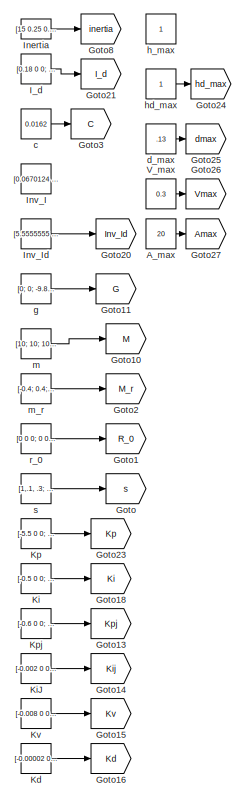
[diagram: root canvas - part 1/3, middle left region]
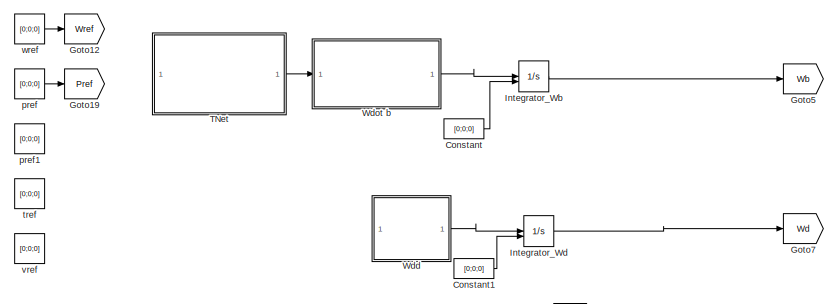
[diagram: root canvas - part 2/3, top center region]
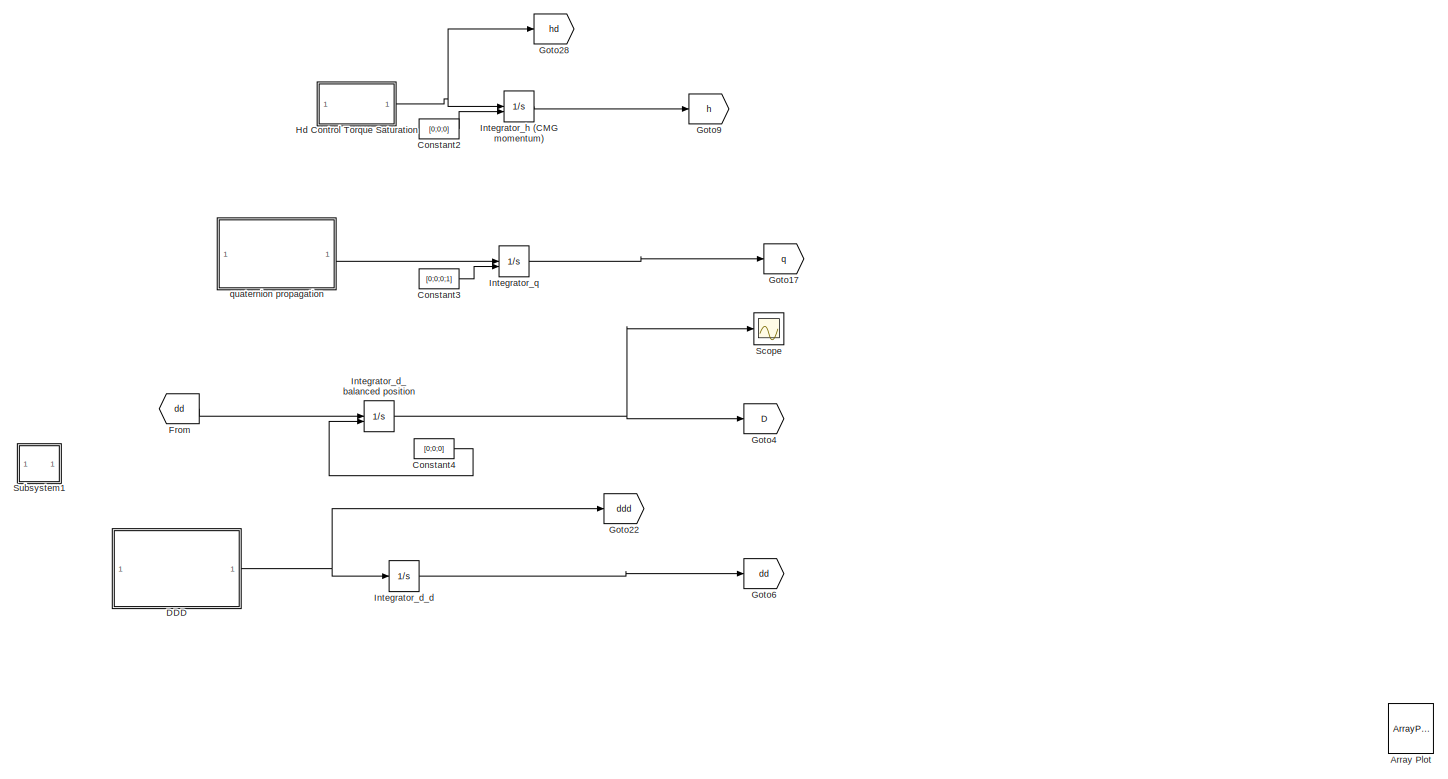
[diagram: root canvas - part 3/3, full width, middle band]
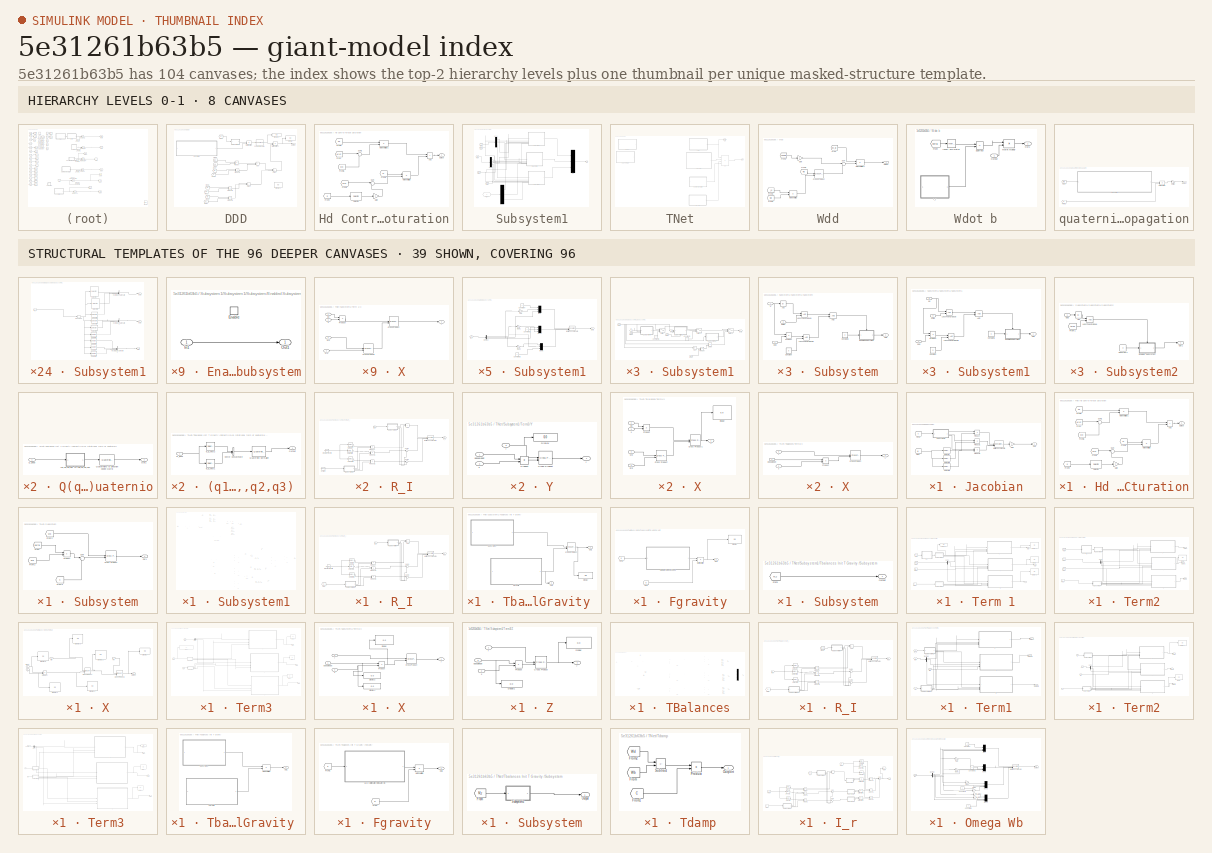
[diagram: thumbnail index - top-2 hierarchy levels (8 canvases) + 39 structural-template representatives of the remaining 96 canvases]
MODEL slx_5e31261b63b5
KIND model
CONFIG AbsTol = auto
CONFIG EnableMultiTasking = off
CONFIG FixedStep = auto
CONFIG MaxStep = auto
CONFIG MinStep = auto
CONFIG RelTol = 1e-3
CONFIG SampleTimeConstraint = Unconstrained
CONFIG SolverName = VariableStepAuto
CONFIG StartTime = 0.0
CONFIG StopTime = inf
BLOCK [Constant] A_max
  Value = 20
BLOCK [ArrayPlot] Array Plot
  DefaultConfigurationName = dsp.scopes.ArrayPlotBlockSpecification
  GraphicalSettings = {"Style":{"BackgroundColor":[0.12941176470588237,0.12941176470588237,0.12941176470588237],"AxesColor":[0.07058823529411765,0.07058823529411765,0.07058823529411765],"LabelsColor":[0.8509803921568627,0.8509803921568627,0.8509803921568627],"PreserveColors":false,"Visible":[true],"LineStyle":["-"],"LineColor":[[1,0.9098039215686274,0.39215686274509803]],"LineWidth":[1.5],"Marker":["o"],"FontSize":"sma...<+551ch>
  IOType = viewer
  IsFloating = on
  ScopeFrameLocation = window
  WasSavedAsWebScope = on
  WindowPosition = [447.000000,282.000000,800.000000,500.000000,]
  YLimits = [-4.3585 5.1367]
BLOCK [Constant] Constant
  Value = [0;0;0]
  VectorParams1D = off
BLOCK [Constant] Constant1
  Value = [0;0;0]
  VectorParams1D = off
BLOCK [Constant] Constant2
  Value = [0;0;0]
  VectorParams1D = off
BLOCK [Constant] Constant3
  Value = [0;0;0;1]
  VectorParams1D = off
BLOCK [Constant] Constant4
  Value = [0;0;0]
  VectorParams1D = off
BLOCK [SubSystem] DDD
BLOCK [Sum] DDD/Add
  IconShape = rectangular
BLOCK [Sum] DDD/Add1
  IconShape = rectangular
BLOCK [Sum] DDD/Add2
  IconShape = rectangular
BLOCK [Display] DDD/Display
  Decimation = 1
BLOCK [Display] DDD/Display1
  Decimation = 1
BLOCK [Display] DDD/Display2
  Decimation = 1
BLOCK [From] DDD/From
  GotoTag = G
  TagVisibility = global
BLOCK [From] DDD/From1
  GotoTag = dd
  TagVisibility = global
BLOCK [From] DDD/From2
  GotoTag = D
  TagVisibility = global
BLOCK [From] DDD/From3
  GotoTag = h
  TagVisibility = global
BLOCK [From] DDD/From4
  GotoTag = hd
  TagVisibility = global
BLOCK [From] DDD/From6
  GotoTag = Kpj
  TagVisibility = global
BLOCK [From] DDD/From7
  GotoTag = Kij
  TagVisibility = global
BLOCK [From] DDD/From8
  GotoTag = Kv
  TagVisibility = global
BLOCK [From] DDD/From9
  GotoTag = Kd
  TagVisibility = global
BLOCK [SubSystem] DDD/Jacobian
BLOCK [From] DDD/Jacobian/From
  GotoTag = M
  TagVisibility = global
BLOCK [From] DDD/Jacobian/From1
  GotoTag = s
  TagVisibility = global
BLOCK [Gain] DDD/Jacobian/Gain
  Gain = -1
BLOCK [Concatenate] DDD/Jacobian/Matrix Concatenate
  ConcatenateDimension = 2
  Mode = Multidimensional array
  NumInputs = 3
BLOCK [Outport] DDD/Jacobian/Out1
BLOCK [Product] DDD/Jacobian/Product
BLOCK [Product] DDD/Jacobian/Product1
BLOCK [Product] DDD/Jacobian/Product2
BLOCK [Selector] DDD/Jacobian/Selector
  IndexOptions = Index vector (dialog)
  Indices = [1]
  InputPortWidth = 3
  OutputSizes = 1
BLOCK [Selector] DDD/Jacobian/Selector1
  IndexOptions = Index vector (dialog)
  Indices = [2]
  InputPortWidth = 3
  OutputSizes = 1
BLOCK [Selector] DDD/Jacobian/Selector2
  IndexOptions = Index vector (dialog)
  Indices = [3]
  InputPortWidth = 3
  OutputSizes = 1
BLOCK [SubSystem] DDD/Jacobian/Subsystem1
BLOCK [Outport] DDD/Jacobian/Subsystem1/Out1
BLOCK [Outport] DDD/Jacobian/Subsystem1/Out2
  Port = 2
BLOCK [Outport] DDD/Jacobian/Subsystem1/Out3
  Port = 3
BLOCK [Inport] DDD/Jacobian/Subsystem1/R_0
BLOCK [Reshape] DDD/Jacobian/Subsystem1/Reshape
  OutputDimensionality = Column vector (2-D)
  OutputDimensions = [1,3]
BLOCK [Selector] DDD/Jacobian/Subsystem1/Selector
  IndexOptions = Index vector (dialog)
  Indices = [1]
  InputPortWidth = 9
  OutputSizes = 1
BLOCK [Selector] DDD/Jacobian/Subsystem1/Selector1
  IndexOptions = Index vector (dialog)
  Indices = [2]
  InputPortWidth = 9
  OutputSizes = 1
BLOCK [Selector] DDD/Jacobian/Subsystem1/Selector2
  IndexOptions = Index vector (dialog)
  Indices = [3]
  InputPortWidth = 9
  OutputSizes = 1
BLOCK [Selector] DDD/Jacobian/Subsystem1/Selector3
  IndexOptions = Index vector (dialog)
  Indices = [4]
  InputPortWidth = 9
  OutputSizes = 1
BLOCK [Selector] DDD/Jacobian/Subsystem1/Selector4
  IndexOptions = Index vector (dialog)
  Indices = [5]
  InputPortWidth = 9
  OutputSizes = 1
BLOCK [Selector] DDD/Jacobian/Subsystem1/Selector5
  IndexOptions = Index vector (dialog)
  Indices = [6]
  InputPortWidth = 9
  OutputSizes = 1
BLOCK [Selector] DDD/Jacobian/Subsystem1/Selector6
  IndexOptions = Index vector (dialog)
  Indices = [7]
  InputPortWidth = 9
  OutputSizes = 1
BLOCK [Selector] DDD/Jacobian/Subsystem1/Selector7
  IndexOptions = Index vector (dialog)
  Indices = [8]
  InputPortWidth = 9
  OutputSizes = 1
BLOCK [Selector] DDD/Jacobian/Subsystem1/Selector8
  IndexOptions = Index vector (dialog)
  Indices = [9]
  InputPortWidth = 9
  OutputSizes = 1
BLOCK [Concatenate] DDD/Jacobian/Subsystem1/Vector Concatenate
  Mode = Multidimensional array
  NumInputs = 3
BLOCK [Concatenate] DDD/Jacobian/Subsystem1/Vector Concatenate1
  Mode = Multidimensional array
  NumInputs = 3
BLOCK [Concatenate] DDD/Jacobian/Subsystem1/Vector Concatenate2
  Mode = Multidimensional array
  NumInputs = 3
BLOCK [Product] DDD/Matrix Multiply
  Multiplication = Matrix(*)
BLOCK [Product] DDD/Matrix Multiply1
  Multiplication = Matrix(*)
BLOCK [Outport] DDD/Output
BLOCK [Product] DDD/Product
  Multiplication = Matrix(*)
BLOCK [Product] DDD/Product1
  Multiplication = Matrix(*)
BLOCK [Product] DDD/Product2
  Multiplication = Matrix(*)
BLOCK [Product] DDD/Product3
  Multiplication = Matrix(*)
BLOCK [Reference] DDD/Pseudoinverse  REF=dspinverses/Pseudoinverse
  SourceBlock = dspinverses/Pseudoinverse
  SourceType = Pseudoinverse
BLOCK [SubSystem] DDD/Subsystem1
BLOCK [Constant] DDD/Subsystem1/Constant
  Value = 0
  VectorParams1D = off
BLOCK [Constant] DDD/Subsystem1/Constant1
  Value = 0
  VectorParams1D = off
BLOCK [Constant] DDD/Subsystem1/Constant2
  Value = 0
  VectorParams1D = off
BLOCK [Demux] DDD/Subsystem1/Demux
  Outputs = 3
BLOCK [Gain] DDD/Subsystem1/Gain
  Gain = -1
BLOCK [Gain] DDD/Subsystem1/Gain1
  Gain = -1
BLOCK [Gain] DDD/Subsystem1/Gain2
  Gain = -1
BLOCK [Inport] DDD/Subsystem1/In1
BLOCK [Concatenate] DDD/Subsystem1/Matrix Concatenate
  ConcatenateDimension = 2
  Mode = Multidimensional array
  NumInputs = 3
BLOCK [Mux] DDD/Subsystem1/Mux
  DisplayOption = bar
  Inputs = 3
BLOCK [Mux] DDD/Subsystem1/Mux1
  DisplayOption = bar
  Inputs = 3
BLOCK [Mux] DDD/Subsystem1/Mux2
  DisplayOption = bar
  Inputs = 3
BLOCK [Outport] DDD/Subsystem1/Out1
BLOCK [From] From
  GotoTag = dd
  TagVisibility = global
BLOCK [Goto] Goto
  GotoTag = s
  IconDisplay = Signal name
  TagVisibility = global
BLOCK [Goto] Goto1
  GotoTag = R_0
  IconDisplay = Signal name
  TagVisibility = global
BLOCK [Goto] Goto10
  GotoTag = M
  IconDisplay = Signal name
  TagVisibility = global
BLOCK [Goto] Goto11
  GotoTag = G
  IconDisplay = Signal name
  TagVisibility = global
BLOCK [Goto] Goto12
  GotoTag = Wref
  IconDisplay = Signal name
  TagVisibility = global
BLOCK [Goto] Goto13
  GotoTag = Kpj
  IconDisplay = Signal name
  TagVisibility = global
BLOCK [Goto] Goto14
  GotoTag = Kij
  IconDisplay = Signal name
  TagVisibility = global
BLOCK [Goto] Goto15
  GotoTag = Kv
  IconDisplay = Signal name
  TagVisibility = global
BLOCK [Goto] Goto16
  GotoTag = Kd
  IconDisplay = Signal name
  TagVisibility = global
BLOCK [Goto] Goto17
  GotoTag = q
  TagVisibility = global
BLOCK [Goto] Goto18
  GotoTag = Ki
  IconDisplay = Signal name
  TagVisibility = global
BLOCK [Goto] Goto19
  GotoTag = Pref
  IconDisplay = Signal name
  TagVisibility = global
BLOCK [Goto] Goto2
  GotoTag = M_r
  IconDisplay = Signal name
  TagVisibility = global
BLOCK [Goto] Goto20
  GotoTag = Inv_Id
  IconDisplay = Signal name
  TagVisibility = global
BLOCK [Goto] Goto21
  GotoTag = I_d
  TagVisibility = global
BLOCK [Goto] Goto22
  GotoTag = ddd
  TagVisibility = global
BLOCK [Goto] Goto23
  GotoTag = Kp
  IconDisplay = Signal name
  TagVisibility = global
BLOCK [Goto] Goto24
  GotoTag = hd_max
  IconDisplay = Signal name
  TagVisibility = global
BLOCK [Goto] Goto25
  GotoTag = dmax
  IconDisplay = Signal name
  TagVisibility = global
BLOCK [Goto] Goto26
  GotoTag = Vmax
  IconDisplay = Signal name
  TagVisibility = global
BLOCK [Goto] Goto27
  GotoTag = Amax
  IconDisplay = Signal name
  TagVisibility = global
BLOCK [Goto] Goto28
  GotoTag = hd
  TagVisibility = global
BLOCK [Goto] Goto3
  GotoTag = C
  IconDisplay = Signal name
  TagVisibility = global
BLOCK [Goto] Goto4
  GotoTag = D
  TagVisibility = global
BLOCK [Goto] Goto5
  GotoTag = Wb
  TagVisibility = global
BLOCK [Goto] Goto6
  GotoTag = dd
  TagVisibility = global
BLOCK [Goto] Goto7
  GotoTag = Wd
  IconDisplay = Signal name
  TagVisibility = global
BLOCK [Goto] Goto8
  GotoTag = inertia
  TagVisibility = global
BLOCK [Goto] Goto9
  GotoTag = h
  TagVisibility = global
BLOCK [SubSystem] Hd Control Torque Saturation
BLOCK [Sum] Hd Control Torque Saturation/Add
  IconShape = rectangular
BLOCK [From] Hd Control Torque Saturation/From
  GotoTag = Wref
  TagVisibility = global
BLOCK [From] Hd Control Torque Saturation/From1
  GotoTag = Pref
  TagVisibility = global
BLOCK [From] Hd Control Torque Saturation/From2
  GotoTag = Kp
  TagVisibility = global
BLOCK [From] Hd Control Torque Saturation/From3
  GotoTag = Ki
  TagVisibility = global
BLOCK [From] Hd Control Torque Saturation/From4
  GotoTag = q
  TagVisibility = global
BLOCK [From] Hd Control Torque Saturation/From5
  GotoTag = Wb
  TagVisibility = global
BLOCK [Gain] Hd Control Torque Saturation/Gain
  Gain = 2
BLOCK [Product] Hd Control Torque Saturation/Matrix Multiply
  Multiplication = Matrix(*)
BLOCK [Product] Hd Control Torque Saturation/Matrix Multiply1
  Multiplication = Matrix(*)
BLOCK [Outport] Hd Control Torque Saturation/Output
BLOCK [Selector] Hd Control Torque Saturation/Selector
  IndexOptions = Index vector (dialog)
  Indices = [1 2 3]
  InputPortWidth = 4
  OutputSizes = 1
BLOCK [Sum] Hd Control Torque Saturation/Sum
  Inputs = |+-
BLOCK [Sum] Hd Control Torque Saturation/Sum1
  Inputs = |+-
BLOCK [Constant] I_d
  Value = [0.18 0 0; 0 0.18 0; 0 0 0.18]
BLOCK [Constant] Inertia
  Value = [15 0.25 0.20; 0.25 20 -0.15; 0.20 -0.15 25]
  VectorParams1D = off
BLOCK [Integrator] Integrator_Wb
  InitialCondition = [0;0;0]
  InitialConditionSource = external
BLOCK [Integrator] Integrator_Wd
  InitialCondition = [0;0;0]
  InitialConditionSource = external
BLOCK [Integrator] Integrator_d_balanced position
  InitialCondition = [0;0;0]
  InitialConditionSource = external
BLOCK [Integrator] Integrator_d_d
  InitialCondition = [0;0;0]
  InitialConditionSource = external
BLOCK [Integrator] Integrator_h (CMG momentum)
  InitialCondition = [0;0;0]
  InitialConditionSource = external
BLOCK [Integrator] Integrator_q
  InitialCondition = [0;0;0;1]
  InitialConditionSource = external
BLOCK [Constant] Inv_I
  Value = [0.0670124 -0.0008106 -0.00051308; -0.0008106 0.0500357 0.00029267; -0.00051308 0.00029267 0.0401669]
BLOCK [Constant] Inv_Id
  Value = [5.5555555 0 0; 0 5.5555555 0; 0 0 5.5555555]
BLOCK [Constant] Kd
  Value = [-0.00002 0 0; 0 -0.00002 0; 0 0 -0.00002]
BLOCK [Constant] Ki
  Value = [-0.5 0 0; 0 -0.5 0; 0 0 -0.5]
BLOCK [Constant] KiJ
  Value = [-0.002 0 0; 0 -0.002 0; 0 0 -0.002]
BLOCK [Constant] Kp
  Value = [-5.5 0 0; 0 -5.5 0; 0 0 -5.5]
BLOCK [Constant] Kpj
  Value = [-0.6 0 0; 0 -0.6 0; 0 0 -0.6]
BLOCK [Constant] Kv
  Value = [-0.008 0 0; 0 -0.008 0; 0 0 -0.008]
BLOCK [Scope] Scope
  Floating = off
  NumInputPorts = 1
  ScopeSpecificationString = Simulink.scopes.TimeScopeBlockCfg('CurrentConfiguration', extmgr.ConfigurationSet(extmgr.Configuration('Core','General UI',true),extmgr.Configuration('Core','Source UI',true),extmgr.Configuration('Sources','WiredSimulink',true),extmgr.Configuration('Visuals','Time Domain',true,'SerializedDisplays',{struct('MinYLimReal','-0.46475','MaxYLimReal','4.18272','YLabelReal','','MinYLimMag','0.00000','MaxY...<+1589ch>
BLOCK [SubSystem] Subsystem1
BLOCK [Demux] Subsystem1/Demux
  Outputs = 3
BLOCK [Demux] Subsystem1/Demux1
  Outputs = 3
BLOCK [Demux] Subsystem1/Demux4
  Outputs = 3
BLOCK [From] Subsystem1/From
  GotoTag = Amax
  TagVisibility = global
BLOCK [From] Subsystem1/From1
  GotoTag = dd
  TagVisibility = global
BLOCK [From] Subsystem1/From2
  GotoTag = D
  TagVisibility = global
BLOCK [From] Subsystem1/From3
  GotoTag = dmax
  TagVisibility = global
BLOCK [From] Subsystem1/From4
  GotoTag = Vmax
  TagVisibility = global
BLOCK [Inport] Subsystem1/In1
BLOCK [Mux] Subsystem1/Mux
  DisplayOption = bar
  Inputs = 3
BLOCK [Outport] Subsystem1/Out1
BLOCK [SubSystem] Subsystem1/Subsystem1
BLOCK [Abs] Subsystem1/Subsystem1/Abs
  SaturateOnIntegerOverflow = off
BLOCK [Constant] Subsystem1/Subsystem1/Constant1
  Value = 0
  VectorParams1D = off
BLOCK [Constant] Subsystem1/Subsystem1/Constant6
  Value = 0
  VectorParams1D = off
BLOCK [Product] Subsystem1/Subsystem1/Divide
  Inputs = */
BLOCK [Outport] Subsystem1/Subsystem1/Out1
BLOCK [Product] Subsystem1/Subsystem1/Product
BLOCK [SubSystem] Subsystem1/Subsystem1/Subsystem
BLOCK [Logic] Subsystem1/Subsystem1/Subsystem/AND
  AllPortsSameDT = off
  IconShape = distinctive
  OutDataTypeStr = boolean
BLOCK [Abs] Subsystem1/Subsystem1/Subsystem/Abs
  SaturateOnIntegerOverflow = off
BLOCK [Constant] Subsystem1/Subsystem1/Subsystem/Constant
  Value = 0
  VectorParams1D = off
BLOCK [Constant] Subsystem1/Subsystem1/Subsystem/Constant1
  Value = 0
  VectorParams1D = off
BLOCK [SubSystem] Subsystem1/Subsystem1/Subsystem/Enabled Subsystem
  TreatAsAtomicUnit = on
BLOCK [EnablePort] Subsystem1/Subsystem1/Subsystem/Enabled Subsystem/Enable
BLOCK [Inport] Subsystem1/Subsystem1/Subsystem/Enabled Subsystem/In1
BLOCK [Outport] Subsystem1/Subsystem1/Subsystem/Enabled Subsystem/Out1
BLOCK [RelationalOperator] Subsystem1/Subsystem1/Subsystem/LessThanOrEqual
  InputSameDT = off
  OutDataTypeStr = boolean
  RndMeth = Simplest
BLOCK [RelationalOperator] Subsystem1/Subsystem1/Subsystem/LessThanOrEqual1
  InputSameDT = off
  OutDataTypeStr = boolean
  RndMeth = Simplest
BLOCK [Outport] Subsystem1/Subsystem1/Subsystem/Out1
BLOCK [Product] Subsystem1/Subsystem1/Subsystem/Product
BLOCK [Inport] Subsystem1/Subsystem1/Subsystem/d
BLOCK [Inport] Subsystem1/Subsystem1/Subsystem/ddd
  Port = 2
BLOCK [Inport] Subsystem1/Subsystem1/Subsystem/dmax
  Port = 3
BLOCK [SubSystem] Subsystem1/Subsystem1/Subsystem1
  PortSchema = {"entries":[{"content":{"sides":[{"content":{"connectorIds":["In1","In2"]},"type":"ConnectorPlacement.EquallySpacedRectSide","uuid":"8ae5d5fe-f648-4880-a31b-82c697ea1f6b"},{"content":{"connectorIds":["Out1"],"side":"RIGHT"},"type":"ConnectorPlacement.EquallySpacedRectSide","uuid":"93459a1a-512a-419a-be8d-aafe7ca608a5"},{"content":{"side":"TOP"},"type":"ConnectorPlacement.EquallySpacedRectSide","uu...<+377ch>  <repeated x3 — deduplicated; at blocks: Subsystem1>
BLOCK [Logic] Subsystem1/Subsystem1/Subsystem1/AND
  AllPortsSameDT = off
  IconShape = distinctive
  OutDataTypeStr = boolean
BLOCK [Constant] Subsystem1/Subsystem1/Subsystem1/Constant
  Value = 0
BLOCK [Constant] Subsystem1/Subsystem1/Subsystem1/Constant1
  Value = 0
BLOCK [SubSystem] Subsystem1/Subsystem1/Subsystem1/Enabled Subsystem
  TreatAsAtomicUnit = on
BLOCK [EnablePort] Subsystem1/Subsystem1/Subsystem1/Enabled Subsystem/Enable
BLOCK [Inport] Subsystem1/Subsystem1/Subsystem1/Enabled Subsystem/In1
BLOCK [Outport] Subsystem1/Subsystem1/Subsystem1/Enabled Subsystem/Out1
BLOCK [RelationalOperator] Subsystem1/Subsystem1/Subsystem1/LessThanOrEqual
  InputSameDT = off
  OutDataTypeStr = boolean
  RndMeth = Simplest
BLOCK [RelationalOperator] Subsystem1/Subsystem1/Subsystem1/LessThanOrEqual1
  InputSameDT = off
  OutDataTypeStr = boolean
  RndMeth = Simplest
BLOCK [Outport] Subsystem1/Subsystem1/Subsystem1/Out1
BLOCK [Product] Subsystem1/Subsystem1/Subsystem1/Product
BLOCK [Inport] Subsystem1/Subsystem1/Subsystem1/dd
  Port = 2
BLOCK [Inport] Subsystem1/Subsystem1/Subsystem1/ddd
BLOCK [Inport] Subsystem1/Subsystem1/Subsystem1/vmax
  Port = 3
BLOCK [SubSystem] Subsystem1/Subsystem1/Subsystem2
BLOCK [Abs] Subsystem1/Subsystem1/Subsystem2/Abs
  SaturateOnIntegerOverflow = off
BLOCK [Constant] Subsystem1/Subsystem1/Subsystem2/Constant1
  Value = 0
BLOCK [SubSystem] Subsystem1/Subsystem1/Subsystem2/Enabled Subsystem
  TreatAsAtomicUnit = on
BLOCK [EnablePort] Subsystem1/Subsystem1/Subsystem2/Enabled Subsystem/Enable
BLOCK [Inport] Subsystem1/Subsystem1/Subsystem2/Enabled Subsystem/In1
BLOCK [Outport] Subsystem1/Subsystem1/Subsystem2/Enabled Subsystem/Out1
BLOCK [From] Subsystem1/Subsystem1/Subsystem2/From1
  GotoTag = Amax
  TagVisibility = global
BLOCK [RelationalOperator] Subsystem1/Subsystem1/Subsystem2/LessThanOrEqual
  InputSameDT = off
  OutDataTypeStr = boolean
  RndMeth = Simplest
BLOCK [Outport] Subsystem1/Subsystem1/Subsystem2/Out1
BLOCK [Inport] Subsystem1/Subsystem1/Subsystem2/ddd
BLOCK [Switch] Subsystem1/Subsystem1/Switch
  InputSameDT = off
  SaturateOnIntegerOverflow = off
BLOCK [Switch] Subsystem1/Subsystem1/Switch1
  InputSameDT = off
  SaturateOnIntegerOverflow = off
BLOCK [Switch] Subsystem1/Subsystem1/Switch2
  InputSameDT = off
  SaturateOnIntegerOverflow = off
BLOCK [Inport] Subsystem1/Subsystem1/amax
  Port = 5
BLOCK [Inport] Subsystem1/Subsystem1/d
BLOCK [Inport] Subsystem1/Subsystem1/dd
  Port = 3
BLOCK [Inport] Subsystem1/Subsystem1/ddd
  Port = 6
BLOCK [Inport] Subsystem1/Subsystem1/dmax
  Port = 2
BLOCK [Inport] Subsystem1/Subsystem1/vmax
  Port = 4
BLOCK [SubSystem] Subsystem1/Subsystem2
BLOCK [Abs] Subsystem1/Subsystem2/Abs
  SaturateOnIntegerOverflow = off
BLOCK [Constant] Subsystem1/Subsystem2/Constant1
  Value = 0
  VectorParams1D = off
BLOCK [Constant] Subsystem1/Subsystem2/Constant6
  Value = 0
  VectorParams1D = off
BLOCK [Product] Subsystem1/Subsystem2/Divide
  Inputs = */
BLOCK [Outport] Subsystem1/Subsystem2/Out1
BLOCK [Product] Subsystem1/Subsystem2/Product
BLOCK [SubSystem] Subsystem1/Subsystem2/Subsystem
BLOCK [Logic] Subsystem1/Subsystem2/Subsystem/AND
  AllPortsSameDT = off
  IconShape = distinctive
  OutDataTypeStr = boolean
BLOCK [Abs] Subsystem1/Subsystem2/Subsystem/Abs
  SaturateOnIntegerOverflow = off
BLOCK [Constant] Subsystem1/Subsystem2/Subsystem/Constant
  Value = 0
  VectorParams1D = off
BLOCK [Constant] Subsystem1/Subsystem2/Subsystem/Constant1
  Value = 0
  VectorParams1D = off
BLOCK [SubSystem] Subsystem1/Subsystem2/Subsystem/Enabled Subsystem
  TreatAsAtomicUnit = on
BLOCK [EnablePort] Subsystem1/Subsystem2/Subsystem/Enabled Subsystem/Enable
BLOCK [Inport] Subsystem1/Subsystem2/Subsystem/Enabled Subsystem/In1
BLOCK [Outport] Subsystem1/Subsystem2/Subsystem/Enabled Subsystem/Out1
BLOCK [RelationalOperator] Subsystem1/Subsystem2/Subsystem/LessThanOrEqual
  InputSameDT = off
  OutDataTypeStr = boolean
  RndMeth = Simplest
BLOCK [RelationalOperator] Subsystem1/Subsystem2/Subsystem/LessThanOrEqual1
  InputSameDT = off
  OutDataTypeStr = boolean
  RndMeth = Simplest
BLOCK [Outport] Subsystem1/Subsystem2/Subsystem/Out1
BLOCK [Product] Subsystem1/Subsystem2/Subsystem/Product
BLOCK [Inport] Subsystem1/Subsystem2/Subsystem/d
BLOCK [Inport] Subsystem1/Subsystem2/Subsystem/ddd
  Port = 2
BLOCK [Inport] Subsystem1/Subsystem2/Subsystem/dmax
  Port = 3
BLOCK [SubSystem] Subsystem1/Subsystem2/Subsystem1
BLOCK [Logic] Subsystem1/Subsystem2/Subsystem1/AND
  AllPortsSameDT = off
  IconShape = distinctive
  OutDataTypeStr = boolean
BLOCK [Constant] Subsystem1/Subsystem2/Subsystem1/Constant
  Value = 0
BLOCK [Constant] Subsystem1/Subsystem2/Subsystem1/Constant1
  Value = 0
BLOCK [SubSystem] Subsystem1/Subsystem2/Subsystem1/Enabled Subsystem
  TreatAsAtomicUnit = on
BLOCK [EnablePort] Subsystem1/Subsystem2/Subsystem1/Enabled Subsystem/Enable
BLOCK [Inport] Subsystem1/Subsystem2/Subsystem1/Enabled Subsystem/In1
BLOCK [Outport] Subsystem1/Subsystem2/Subsystem1/Enabled Subsystem/Out1
BLOCK [RelationalOperator] Subsystem1/Subsystem2/Subsystem1/LessThanOrEqual
  InputSameDT = off
  OutDataTypeStr = boolean
  RndMeth = Simplest
BLOCK [RelationalOperator] Subsystem1/Subsystem2/Subsystem1/LessThanOrEqual1
  InputSameDT = off
  OutDataTypeStr = boolean
  RndMeth = Simplest
BLOCK [Outport] Subsystem1/Subsystem2/Subsystem1/Out1
BLOCK [Product] Subsystem1/Subsystem2/Subsystem1/Product
BLOCK [Inport] Subsystem1/Subsystem2/Subsystem1/dd
  Port = 2
BLOCK [Inport] Subsystem1/Subsystem2/Subsystem1/ddd
BLOCK [Inport] Subsystem1/Subsystem2/Subsystem1/vmax
  Port = 3
BLOCK [SubSystem] Subsystem1/Subsystem2/Subsystem2
BLOCK [Abs] Subsystem1/Subsystem2/Subsystem2/Abs
  SaturateOnIntegerOverflow = off
BLOCK [Constant] Subsystem1/Subsystem2/Subsystem2/Constant1
  Value = 0
BLOCK [SubSystem] Subsystem1/Subsystem2/Subsystem2/Enabled Subsystem
  TreatAsAtomicUnit = on
BLOCK [EnablePort] Subsystem1/Subsystem2/Subsystem2/Enabled Subsystem/Enable
BLOCK [Inport] Subsystem1/Subsystem2/Subsystem2/Enabled Subsystem/In1
BLOCK [Outport] Subsystem1/Subsystem2/Subsystem2/Enabled Subsystem/Out1
BLOCK [From] Subsystem1/Subsystem2/Subsystem2/From1
  GotoTag = Amax
  TagVisibility = global
BLOCK [RelationalOperator] Subsystem1/Subsystem2/Subsystem2/LessThanOrEqual
  InputSameDT = off
  OutDataTypeStr = boolean
  RndMeth = Simplest
BLOCK [Outport] Subsystem1/Subsystem2/Subsystem2/Out1
BLOCK [Inport] Subsystem1/Subsystem2/Subsystem2/ddd
BLOCK [Switch] Subsystem1/Subsystem2/Switch
  InputSameDT = off
  SaturateOnIntegerOverflow = off
BLOCK [Switch] Subsystem1/Subsystem2/Switch1
  InputSameDT = off
  SaturateOnIntegerOverflow = off
BLOCK [Switch] Subsystem1/Subsystem2/Switch2
  InputSameDT = off
  SaturateOnIntegerOverflow = off
BLOCK [Inport] Subsystem1/Subsystem2/amax
  Port = 6
BLOCK [Inport] Subsystem1/Subsystem2/d
BLOCK [Inport] Subsystem1/Subsystem2/dd
  Port = 3
BLOCK [Inport] Subsystem1/Subsystem2/ddd
  Port = 5
BLOCK [Inport] Subsystem1/Subsystem2/dmax
  Port = 2
BLOCK [Inport] Subsystem1/Subsystem2/vmax
  Port = 4
BLOCK [SubSystem] Subsystem1/Subsystem3
BLOCK [Abs] Subsystem1/Subsystem3/Abs
  SaturateOnIntegerOverflow = off
BLOCK [Constant] Subsystem1/Subsystem3/Constant1
  Value = 0
  VectorParams1D = off
BLOCK [Constant] Subsystem1/Subsystem3/Constant6
  Value = 0
  VectorParams1D = off
BLOCK [Product] Subsystem1/Subsystem3/Divide
  Inputs = */
BLOCK [Outport] Subsystem1/Subsystem3/Out1
BLOCK [Product] Subsystem1/Subsystem3/Product
BLOCK [SubSystem] Subsystem1/Subsystem3/Subsystem
BLOCK [Logic] Subsystem1/Subsystem3/Subsystem/AND
  AllPortsSameDT = off
  IconShape = distinctive
  OutDataTypeStr = boolean
BLOCK [Abs] Subsystem1/Subsystem3/Subsystem/Abs
  SaturateOnIntegerOverflow = off
BLOCK [Constant] Subsystem1/Subsystem3/Subsystem/Constant
  Value = 0
  VectorParams1D = off
BLOCK [Constant] Subsystem1/Subsystem3/Subsystem/Constant1
  Value = 0
  VectorParams1D = off
BLOCK [SubSystem] Subsystem1/Subsystem3/Subsystem/Enabled Subsystem
  TreatAsAtomicUnit = on
BLOCK [EnablePort] Subsystem1/Subsystem3/Subsystem/Enabled Subsystem/Enable
BLOCK [Inport] Subsystem1/Subsystem3/Subsystem/Enabled Subsystem/In1
BLOCK [Outport] Subsystem1/Subsystem3/Subsystem/Enabled Subsystem/Out1
BLOCK [RelationalOperator] Subsystem1/Subsystem3/Subsystem/LessThanOrEqual
  InputSameDT = off
  OutDataTypeStr = boolean
  RndMeth = Simplest
BLOCK [RelationalOperator] Subsystem1/Subsystem3/Subsystem/LessThanOrEqual1
  InputSameDT = off
  OutDataTypeStr = boolean
  RndMeth = Simplest
BLOCK [Outport] Subsystem1/Subsystem3/Subsystem/Out1
BLOCK [Product] Subsystem1/Subsystem3/Subsystem/Product
BLOCK [Inport] Subsystem1/Subsystem3/Subsystem/d
BLOCK [Inport] Subsystem1/Subsystem3/Subsystem/ddd
  Port = 2
BLOCK [Inport] Subsystem1/Subsystem3/Subsystem/dmax
  Port = 3
BLOCK [SubSystem] Subsystem1/Subsystem3/Subsystem1
BLOCK [Logic] Subsystem1/Subsystem3/Subsystem1/AND
  AllPortsSameDT = off
  IconShape = distinctive
  OutDataTypeStr = boolean
BLOCK [Constant] Subsystem1/Subsystem3/Subsystem1/Constant
  Value = 0
BLOCK [Constant] Subsystem1/Subsystem3/Subsystem1/Constant1
  Value = 0
BLOCK [SubSystem] Subsystem1/Subsystem3/Subsystem1/Enabled Subsystem
  TreatAsAtomicUnit = on
BLOCK [EnablePort] Subsystem1/Subsystem3/Subsystem1/Enabled Subsystem/Enable
BLOCK [Inport] Subsystem1/Subsystem3/Subsystem1/Enabled Subsystem/In1
BLOCK [Outport] Subsystem1/Subsystem3/Subsystem1/Enabled Subsystem/Out1
BLOCK [RelationalOperator] Subsystem1/Subsystem3/Subsystem1/LessThanOrEqual
  InputSameDT = off
  OutDataTypeStr = boolean
  RndMeth = Simplest
BLOCK [RelationalOperator] Subsystem1/Subsystem3/Subsystem1/LessThanOrEqual1
  InputSameDT = off
  OutDataTypeStr = boolean
  RndMeth = Simplest
BLOCK [Outport] Subsystem1/Subsystem3/Subsystem1/Out1
BLOCK [Product] Subsystem1/Subsystem3/Subsystem1/Product
BLOCK [Inport] Subsystem1/Subsystem3/Subsystem1/dd
  Port = 2
BLOCK [Inport] Subsystem1/Subsystem3/Subsystem1/ddd
BLOCK [Inport] Subsystem1/Subsystem3/Subsystem1/vmax
  Port = 3
BLOCK [SubSystem] Subsystem1/Subsystem3/Subsystem2
BLOCK [Abs] Subsystem1/Subsystem3/Subsystem2/Abs
  SaturateOnIntegerOverflow = off
BLOCK [Constant] Subsystem1/Subsystem3/Subsystem2/Constant1
  Value = 0
BLOCK [SubSystem] Subsystem1/Subsystem3/Subsystem2/Enabled Subsystem
  TreatAsAtomicUnit = on
BLOCK [EnablePort] Subsystem1/Subsystem3/Subsystem2/Enabled Subsystem/Enable
BLOCK [Inport] Subsystem1/Subsystem3/Subsystem2/Enabled Subsystem/In1
BLOCK [Outport] Subsystem1/Subsystem3/Subsystem2/Enabled Subsystem/Out1
BLOCK [From] Subsystem1/Subsystem3/Subsystem2/From1
  GotoTag = Amax
  TagVisibility = global
BLOCK [RelationalOperator] Subsystem1/Subsystem3/Subsystem2/LessThanOrEqual
  InputSameDT = off
  OutDataTypeStr = boolean
  RndMeth = Simplest
BLOCK [Outport] Subsystem1/Subsystem3/Subsystem2/Out1
BLOCK [Inport] Subsystem1/Subsystem3/Subsystem2/ddd
BLOCK [Switch] Subsystem1/Subsystem3/Switch
  InputSameDT = off
  SaturateOnIntegerOverflow = off
BLOCK [Switch] Subsystem1/Subsystem3/Switch1
  InputSameDT = off
  SaturateOnIntegerOverflow = off
BLOCK [Switch] Subsystem1/Subsystem3/Switch2
  InputSameDT = off
  SaturateOnIntegerOverflow = off
BLOCK [Inport] Subsystem1/Subsystem3/amax
  Port = 5
BLOCK [Inport] Subsystem1/Subsystem3/d
BLOCK [Inport] Subsystem1/Subsystem3/dd
  Port = 3
BLOCK [Inport] Subsystem1/Subsystem3/ddd
  Port = 6
BLOCK [Inport] Subsystem1/Subsystem3/dmax
  Port = 2
BLOCK [Inport] Subsystem1/Subsystem3/vmax
  Port = 4
BLOCK [SubSystem] TNet
BLOCK [Sum] TNet/Add
  IconShape = rectangular
  Inputs = ++--
BLOCK [Goto] TNet/Goto
  GotoTag = Tdamp
  TagVisibility = global
BLOCK [SubSystem] TNet/Hd Control Torque Saturation
BLOCK [Sum] TNet/Hd Control Torque Saturation/Add
  IconShape = rectangular
BLOCK [From] TNet/Hd Control Torque Saturation/From
  GotoTag = Wref
  TagVisibility = global
BLOCK [From] TNet/Hd Control Torque Saturation/From1
  GotoTag = Pref
  TagVisibility = global
BLOCK [From] TNet/Hd Control Torque Saturation/From2
  GotoTag = Kp
  TagVisibility = global
BLOCK [From] TNet/Hd Control Torque Saturation/From3
  GotoTag = Ki
  TagVisibility = global
BLOCK [From] TNet/Hd Control Torque Saturation/From4
  GotoTag = q
  TagVisibility = global
BLOCK [From] TNet/Hd Control Torque Saturation/From5
  GotoTag = Wb
  TagVisibility = global
BLOCK [Gain] TNet/Hd Control Torque Saturation/Gain
  Gain = 2
BLOCK [Product] TNet/Hd Control Torque Saturation/Matrix Multiply
  Multiplication = Matrix(*)
BLOCK [Product] TNet/Hd Control Torque Saturation/Matrix Multiply1
  Multiplication = Matrix(*)
BLOCK [Outport] TNet/Hd Control Torque Saturation/Output
BLOCK [Selector] TNet/Hd Control Torque Saturation/Selector
  IndexOptions = Index vector (dialog)
  Indices = [1 2 3]
  InputPortWidth = 4
  OutputSizes = 1
BLOCK [Sum] TNet/Hd Control Torque Saturation/Sum
  Inputs = |+-
BLOCK [Sum] TNet/Hd Control Torque Saturation/Sum1
  Inputs = |+-
BLOCK [Outport] TNet/Output
BLOCK [SubSystem] TNet/Subsystem
BLOCK [Reference] TNet/Subsystem/Cross Product  REF=matrix_library/Cross Product
  LibrarySourceBlock = simulink/Matrix\nOperations/Cross Product
  SourceBlock = matrix_library/Cross Product
  SourceType = CrossProduct
BLOCK [From] TNet/Subsystem/From
  GotoTag = inertia
  TagVisibility = global
BLOCK [From] TNet/Subsystem/From1
  GotoTag = Wb
  TagVisibility = global
BLOCK [From] TNet/Subsystem/From2
  GotoTag = Wb
  TagVisibility = global
BLOCK [From] TNet/Subsystem/From3
  GotoTag = h
  TagVisibility = global
BLOCK [Outport] TNet/Subsystem/Out1
BLOCK [Product] TNet/Subsystem/Product
  Multiplication = Matrix(*)
BLOCK [Sum] TNet/Subsystem/Sum
  Inputs = |++
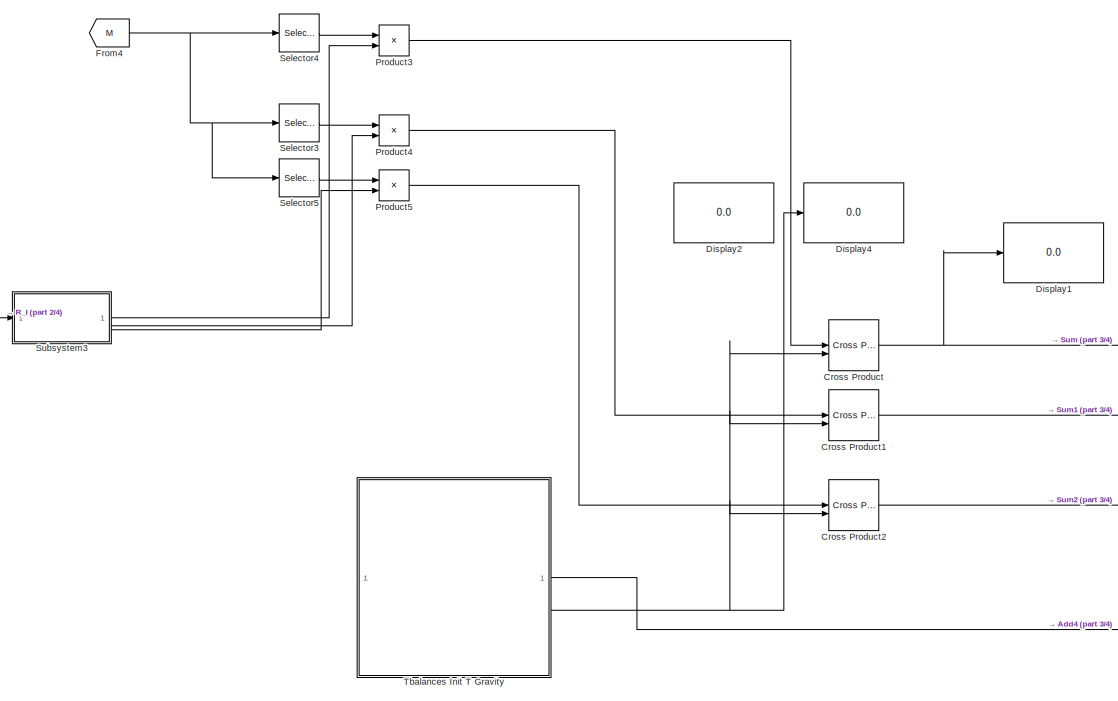
[diagram: TNet/Subsystem1 - part 1/4, top center region]
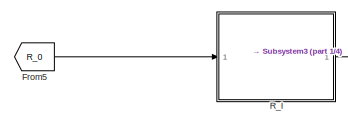
[diagram: TNet/Subsystem1 - part 2/4, top left region]
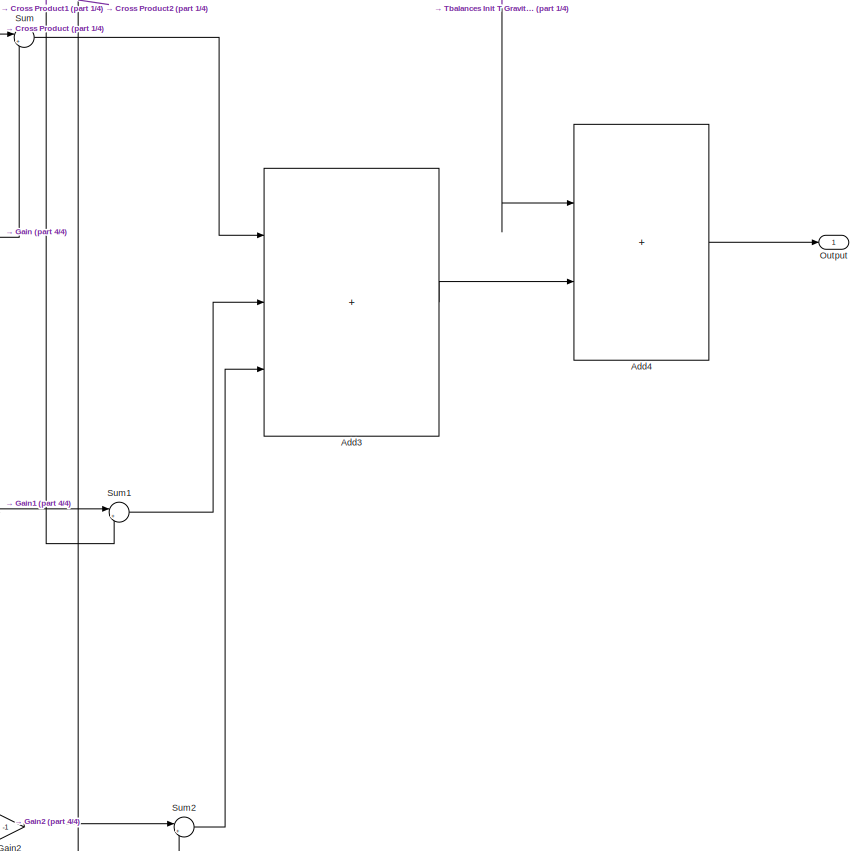
[diagram: TNet/Subsystem1 - part 3/4, bottom right region]
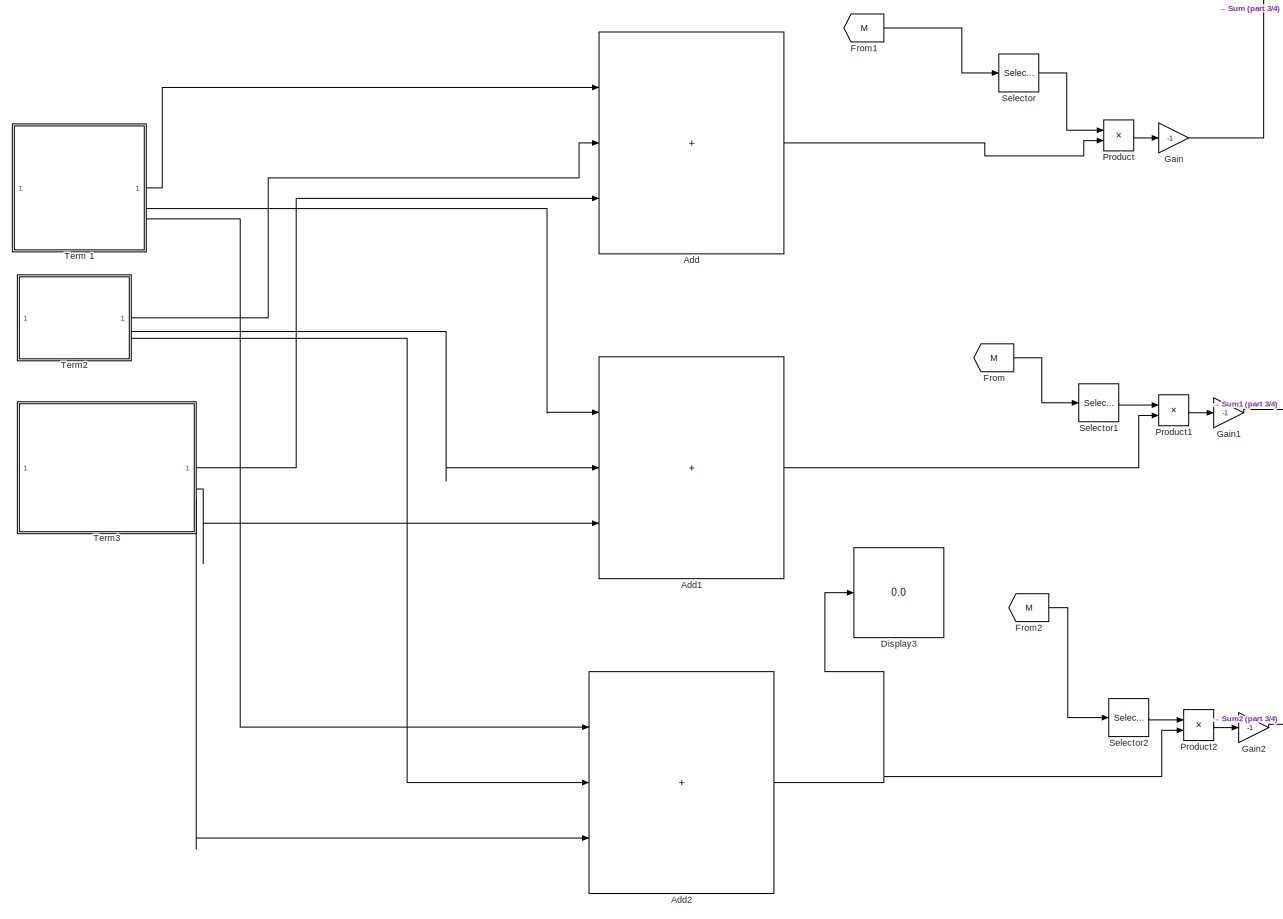
[diagram: TNet/Subsystem1 - part 4/4, bottom center region]
BLOCK [SubSystem] TNet/Subsystem1
BLOCK [Sum] TNet/Subsystem1/Add
  IconShape = rectangular
  Inputs = +++
BLOCK [Sum] TNet/Subsystem1/Add1
  IconShape = rectangular
  Inputs = +++
BLOCK [Sum] TNet/Subsystem1/Add2
  IconShape = rectangular
  Inputs = +++
BLOCK [Sum] TNet/Subsystem1/Add3
  IconShape = rectangular
  Inputs = +++
BLOCK [Sum] TNet/Subsystem1/Add4
  IconShape = rectangular
BLOCK [Reference] TNet/Subsystem1/Cross Product  REF=matrix_library/Cross Product
  LibrarySourceBlock = simulink/Matrix\nOperations/Cross Product
  SourceBlock = matrix_library/Cross Product
  SourceType = CrossProduct
BLOCK [Reference] TNet/Subsystem1/Cross Product1  REF=matrix_library/Cross Product
  LibrarySourceBlock = simulink/Matrix\nOperations/Cross Product
  SourceBlock = matrix_library/Cross Product
  SourceType = CrossProduct
BLOCK [Reference] TNet/Subsystem1/Cross Product2  REF=matrix_library/Cross Product
  LibrarySourceBlock = simulink/Matrix\nOperations/Cross Product
  SourceBlock = matrix_library/Cross Product
  SourceType = CrossProduct
BLOCK [Display] TNet/Subsystem1/Display1
  Decimation = 1
BLOCK [Display] TNet/Subsystem1/Display2
  Decimation = 1
BLOCK [Display] TNet/Subsystem1/Display3
  Decimation = 1
BLOCK [Display] TNet/Subsystem1/Display4
  Decimation = 1
BLOCK [From] TNet/Subsystem1/From
  GotoTag = M
  TagVisibility = global
BLOCK [From] TNet/Subsystem1/From1
  GotoTag = M
  TagVisibility = global
BLOCK [From] TNet/Subsystem1/From2
  GotoTag = M
  TagVisibility = global
BLOCK [From] TNet/Subsystem1/From4
  GotoTag = M
  TagVisibility = global
BLOCK [From] TNet/Subsystem1/From5
  GotoTag = R_0
  TagVisibility = global
BLOCK [Gain] TNet/Subsystem1/Gain
  Gain = -1
BLOCK [Gain] TNet/Subsystem1/Gain1
  Gain = -1
BLOCK [Gain] TNet/Subsystem1/Gain2
  Gain = -1
BLOCK [Outport] TNet/Subsystem1/Output
BLOCK [Product] TNet/Subsystem1/Product
BLOCK [Product] TNet/Subsystem1/Product1
BLOCK [Product] TNet/Subsystem1/Product2
BLOCK [Product] TNet/Subsystem1/Product3
BLOCK [Product] TNet/Subsystem1/Product4
BLOCK [Product] TNet/Subsystem1/Product5
BLOCK [SubSystem] TNet/Subsystem1/R_I
BLOCK [Sum] TNet/Subsystem1/R_I/Add
  IconShape = rectangular
BLOCK [Constant] TNet/Subsystem1/R_I/Displacment D
  Value = [0.05;-0.03;0.02]
  VectorParams1D = off
BLOCK [From] TNet/Subsystem1/R_I/From
  GotoTag = s
  TagVisibility = global
BLOCK [Inport] TNet/Subsystem1/R_I/In1
BLOCK [Concatenate] TNet/Subsystem1/R_I/Matrix Concatenate1
  ConcatenateDimension = 2
  Mode = Multidimensional array
  NumInputs = 3
BLOCK [Product] TNet/Subsystem1/R_I/Product
BLOCK [Product] TNet/Subsystem1/R_I/Product1
BLOCK [Product] TNet/Subsystem1/R_I/Product2
BLOCK [Outport] TNet/Subsystem1/R_I/R_0
BLOCK [Selector] TNet/Subsystem1/R_I/Selector
  IndexOptions = Index vector (dialog)
  Indices = [1]
  InputPortWidth = 3
  OutputSizes = 1
BLOCK [Selector] TNet/Subsystem1/R_I/Selector1
  IndexOptions = Index vector (dialog)
  Indices = [2]
  InputPortWidth = 3
  OutputSizes = 1
BLOCK [Selector] TNet/Subsystem1/R_I/Selector2
  IndexOptions = Index vector (dialog)
  Indices = [3]
  InputPortWidth = 3
  OutputSizes = 1
BLOCK [SubSystem] TNet/Subsystem1/R_I/Subsystem3
BLOCK [Inport] TNet/Subsystem1/R_I/Subsystem3/In1
BLOCK [Outport] TNet/Subsystem1/R_I/Subsystem3/Out1
BLOCK [Outport] TNet/Subsystem1/R_I/Subsystem3/Out2
  Port = 2
BLOCK [Outport] TNet/Subsystem1/R_I/Subsystem3/Out3
  Port = 3
BLOCK [Reshape] TNet/Subsystem1/R_I/Subsystem3/Reshape
  OutputDimensionality = Column vector (2-D)
  OutputDimensions = [1,3]
BLOCK [Selector] TNet/Subsystem1/R_I/Subsystem3/Selector
  IndexOptions = Index vector (dialog)
  Indices = [1]
  InputPortWidth = 9
  OutputSizes = 1
BLOCK [Selector] TNet/Subsystem1/R_I/Subsystem3/Selector1
  IndexOptions = Index vector (dialog)
  Indices = [2]
  InputPortWidth = 9
  OutputSizes = 1
BLOCK [Selector] TNet/Subsystem1/R_I/Subsystem3/Selector2
  IndexOptions = Index vector (dialog)
  Indices = [3]
  InputPortWidth = 9
  OutputSizes = 1
BLOCK [Selector] TNet/Subsystem1/R_I/Subsystem3/Selector3
  IndexOptions = Index vector (dialog)
  Indices = [4]
  InputPortWidth = 9
  OutputSizes = 1
BLOCK [Selector] TNet/Subsystem1/R_I/Subsystem3/Selector4
  IndexOptions = Index vector (dialog)
  Indices = [5]
  InputPortWidth = 9
  OutputSizes = 1
BLOCK [Selector] TNet/Subsystem1/R_I/Subsystem3/Selector5
  IndexOptions = Index vector (dialog)
  Indices = [6]
  InputPortWidth = 9
  OutputSizes = 1
BLOCK [Selector] TNet/Subsystem1/R_I/Subsystem3/Selector6
  IndexOptions = Index vector (dialog)
  Indices = [7]
  InputPortWidth = 9
  OutputSizes = 1
BLOCK [Selector] TNet/Subsystem1/R_I/Subsystem3/Selector7
  IndexOptions = Index vector (dialog)
  Indices = [8]
  InputPortWidth = 9
  OutputSizes = 1
BLOCK [Selector] TNet/Subsystem1/R_I/Subsystem3/Selector8
  IndexOptions = Index vector (dialog)
  Indices = [9]
  InputPortWidth = 9
  OutputSizes = 1
BLOCK [Concatenate] TNet/Subsystem1/R_I/Subsystem3/Vector Concatenate
  Mode = Multidimensional array
  NumInputs = 3
BLOCK [Concatenate] TNet/Subsystem1/R_I/Subsystem3/Vector Concatenate1
  Mode = Multidimensional array
  NumInputs = 3
BLOCK [Concatenate] TNet/Subsystem1/R_I/Subsystem3/Vector Concatenate2
  Mode = Multidimensional array
  NumInputs = 3
BLOCK [SubSystem] TNet/Subsystem1/R_I/Subsystem4
BLOCK [Inport] TNet/Subsystem1/R_I/Subsystem4/In1
BLOCK [Outport] TNet/Subsystem1/R_I/Subsystem4/Out1
BLOCK [Outport] TNet/Subsystem1/R_I/Subsystem4/Out2
  Port = 2
BLOCK [Outport] TNet/Subsystem1/R_I/Subsystem4/Out3
  Port = 3
BLOCK [Reshape] TNet/Subsystem1/R_I/Subsystem4/Reshape
  OutputDimensionality = Column vector (2-D)
  OutputDimensions = [1,3]
BLOCK [Selector] TNet/Subsystem1/R_I/Subsystem4/Selector
  IndexOptions = Index vector (dialog)
  Indices = [1]
  InputPortWidth = 9
  OutputSizes = 1
BLOCK [Selector] TNet/Subsystem1/R_I/Subsystem4/Selector1
  IndexOptions = Index vector (dialog)
  Indices = [2]
  InputPortWidth = 9
  OutputSizes = 1
BLOCK [Selector] TNet/Subsystem1/R_I/Subsystem4/Selector2
  IndexOptions = Index vector (dialog)
  Indices = [3]
  InputPortWidth = 9
  OutputSizes = 1
BLOCK [Selector] TNet/Subsystem1/R_I/Subsystem4/Selector3
  IndexOptions = Index vector (dialog)
  Indices = [4]
  InputPortWidth = 9
  OutputSizes = 1
BLOCK [Selector] TNet/Subsystem1/R_I/Subsystem4/Selector4
  IndexOptions = Index vector (dialog)
  Indices = [5]
  InputPortWidth = 9
  OutputSizes = 1
BLOCK [Selector] TNet/Subsystem1/R_I/Subsystem4/Selector5
  IndexOptions = Index vector (dialog)
  Indices = [6]
  InputPortWidth = 9
  OutputSizes = 1
BLOCK [Selector] TNet/Subsystem1/R_I/Subsystem4/Selector6
  IndexOptions = Index vector (dialog)
  Indices = [7]
  InputPortWidth = 9
  OutputSizes = 1
BLOCK [Selector] TNet/Subsystem1/R_I/Subsystem4/Selector7
  IndexOptions = Index vector (dialog)
  Indices = [8]
  InputPortWidth = 9
  OutputSizes = 1
BLOCK [Selector] TNet/Subsystem1/R_I/Subsystem4/Selector8
  IndexOptions = Index vector (dialog)
  Indices = [9]
  InputPortWidth = 9
  OutputSizes = 1
BLOCK [Concatenate] TNet/Subsystem1/R_I/Subsystem4/Vector Concatenate
  Mode = Multidimensional array
  NumInputs = 3
BLOCK [Concatenate] TNet/Subsystem1/R_I/Subsystem4/Vector Concatenate1
  Mode = Multidimensional array
  NumInputs = 3
BLOCK [Concatenate] TNet/Subsystem1/R_I/Subsystem4/Vector Concatenate2
  Mode = Multidimensional array
  NumInputs = 3
BLOCK [Sum] TNet/Subsystem1/R_I/Sum1
  Inputs = |++
BLOCK [Sum] TNet/Subsystem1/R_I/Sum2
  Inputs = |++
BLOCK [Selector] TNet/Subsystem1/Selector
  IndexOptions = Index vector (dialog)
  Indices = [1]
  InputPortWidth = 3
  OutputSizes = 1
BLOCK [Selector] TNet/Subsystem1/Selector1
  IndexOptions = Index vector (dialog)
  Indices = [2]
  InputPortWidth = 3
  OutputSizes = 1
BLOCK [Selector] TNet/Subsystem1/Selector2
  IndexOptions = Index vector (dialog)
  Indices = [3]
  InputPortWidth = 3
  OutputSizes = 1
BLOCK [Selector] TNet/Subsystem1/Selector3
  IndexOptions = Index vector (dialog)
  Indices = [2]
  InputPortWidth = 3
  OutputSizes = 1
BLOCK [Selector] TNet/Subsystem1/Selector4
  IndexOptions = Index vector (dialog)
  Indices = [1]
  InputPortWidth = 3
  OutputSizes = 1
BLOCK [Selector] TNet/Subsystem1/Selector5
  IndexOptions = Index vector (dialog)
  Indices = [3]
  InputPortWidth = 3
  OutputSizes = 1
BLOCK [SubSystem] TNet/Subsystem1/Subsystem3
BLOCK [Outport] TNet/Subsystem1/Subsystem3/Out1
BLOCK [Outport] TNet/Subsystem1/Subsystem3/Out2
  Port = 2
BLOCK [Outport] TNet/Subsystem1/Subsystem3/Out3
  Port = 3
BLOCK [Inport] TNet/Subsystem1/Subsystem3/R_0
BLOCK [Reshape] TNet/Subsystem1/Subsystem3/Reshape
  OutputDimensionality = Column vector (2-D)
  OutputDimensions = [1,3]
BLOCK [Selector] TNet/Subsystem1/Subsystem3/Selector
  IndexOptions = Index vector (dialog)
  Indices = [1]
  InputPortWidth = 9
  OutputSizes = 1
BLOCK [Selector] TNet/Subsystem1/Subsystem3/Selector1
  IndexOptions = Index vector (dialog)
  Indices = [2]
  InputPortWidth = 9
  OutputSizes = 1
BLOCK [Selector] TNet/Subsystem1/Subsystem3/Selector2
  IndexOptions = Index vector (dialog)
  Indices = [3]
  InputPortWidth = 9
  OutputSizes = 1
BLOCK [Selector] TNet/Subsystem1/Subsystem3/Selector3
  IndexOptions = Index vector (dialog)
  Indices = [4]
  InputPortWidth = 9
  OutputSizes = 1
BLOCK [Selector] TNet/Subsystem1/Subsystem3/Selector4
  IndexOptions = Index vector (dialog)
  Indices = [5]
  InputPortWidth = 9
  OutputSizes = 1
BLOCK [Selector] TNet/Subsystem1/Subsystem3/Selector5
  IndexOptions = Index vector (dialog)
  Indices = [6]
  InputPortWidth = 9
  OutputSizes = 1
BLOCK [Selector] TNet/Subsystem1/Subsystem3/Selector6
  IndexOptions = Index vector (dialog)
  Indices = [7]
  InputPortWidth = 9
  OutputSizes = 1
BLOCK [Selector] TNet/Subsystem1/Subsystem3/Selector7
  IndexOptions = Index vector (dialog)
  Indices = [8]
  InputPortWidth = 9
  OutputSizes = 1
BLOCK [Selector] TNet/Subsystem1/Subsystem3/Selector8
  IndexOptions = Index vector (dialog)
  Indices = [9]
  InputPortWidth = 9
  OutputSizes = 1
BLOCK [Concatenate] TNet/Subsystem1/Subsystem3/Vector Concatenate
  Mode = Multidimensional array
  NumInputs = 3
BLOCK [Concatenate] TNet/Subsystem1/Subsystem3/Vector Concatenate1
  Mode = Multidimensional array
  NumInputs = 3
BLOCK [Concatenate] TNet/Subsystem1/Subsystem3/Vector Concatenate2
  Mode = Multidimensional array
  NumInputs = 3
BLOCK [Sum] TNet/Subsystem1/Sum
  Inputs = |++
BLOCK [Sum] TNet/Subsystem1/Sum1
  Inputs = |++
BLOCK [Sum] TNet/Subsystem1/Sum2
  Inputs = |++
BLOCK [SubSystem] TNet/Subsystem1/Tbalances Init T Gravity 
BLOCK [Reference] TNet/Subsystem1/Tbalances Init T Gravity /Cross Product  REF=matrix_library/Cross Product
  LibrarySourceBlock = simulink/Matrix\nOperations/Cross Product
  SourceBlock = matrix_library/Cross Product
  SourceType = CrossProduct
BLOCK [Display] TNet/Subsystem1/Tbalances Init T Gravity /Display
  Decimation = 1
BLOCK [SubSystem] TNet/Subsystem1/Tbalances Init T Gravity /Fgravity
BLOCK [Display] TNet/Subsystem1/Tbalances Init T Gravity /Fgravity/Display
  Decimation = 1
BLOCK [From] TNet/Subsystem1/Tbalances Init T Gravity /Fgravity/From
  GotoTag = G
  TagVisibility = global
BLOCK [From] TNet/Subsystem1/Tbalances Init T Gravity /Fgravity/From1
  GotoTag = q
  TagVisibility = global
BLOCK [Product] TNet/Subsystem1/Tbalances Init T Gravity /Fgravity/Matrix Multiply
  Multiplication = Matrix(*)
BLOCK [Outport] TNet/Subsystem1/Tbalances Init T Gravity /Fgravity/Out1
BLOCK [SubSystem] TNet/Subsystem1/Tbalances Init T Gravity /Fgravity/Q(q) rotational form of quaternio
BLOCK [SubSystem] TNet/Subsystem1/Tbalances Init T Gravity /Fgravity/Q(q) rotational form of quaternio/(q1,q2,q3,q0) to (q0,q1,q2,q3) 
BLOCK [Outport] TNet/Subsystem1/Tbalances Init T Gravity /Fgravity/Q(q) rotational form of quaternio/(q1,q2,q3,q0) to (q0,q1,q2,q3) /Output
BLOCK [Inport] TNet/Subsystem1/Tbalances Init T Gravity /Fgravity/Q(q) rotational form of quaternio/(q1,q2,q3,q0) to (q0,q1,q2,q3) /Q_input
BLOCK [Reference] TNet/Subsystem1/Tbalances Init T Gravity /Fgravity/Q(q) rotational form of quaternio/(q1,q2,q3,q0) to (q0,q1,q2,q3) /Quaternion Normalize  REF=sharedutil/Quaternion
Normalize
  LibrarySourceBlock = aerolibutil/Quaternion\nNormalize
  SourceBlock = sharedutil/Quaternion\nNormalize
  SourceType = Quaternion Normalize
BLOCK [Concatenate] TNet/Subsystem1/Tbalances Init T Gravity /Fgravity/Q(q) rotational form of quaternio/(q1,q2,q3,q0) to (q0,q1,q2,q3) /Vector Concatenate
BLOCK [Selector] TNet/Subsystem1/Tbalances Init T Gravity /Fgravity/Q(q) rotational form of quaternio/(q1,q2,q3,q0) to (q0,q1,q2,q3) /e_q_vect1
  IndexOptions = Index vector (dialog)
  Indices = [1 2 3]
  InputPortWidth = 4
  OutputSizes = 1
BLOCK [Selector] TNet/Subsystem1/Tbalances Init T Gravity /Fgravity/Q(q) rotational form of quaternio/(q1,q2,q3,q0) to (q0,q1,q2,q3) /e_q_vect2
  IndexOptions = Index vector (dialog)
  Indices = [4]
  InputPortWidth = 4
  OutputSizes = 1
BLOCK [Outport] TNet/Subsystem1/Tbalances Init T Gravity /Fgravity/Q(q) rotational form of quaternio/Out1
BLOCK [Inport] TNet/Subsystem1/Tbalances Init T Gravity /Fgravity/Q(q) rotational form of quaternio/Q_input
BLOCK [Reference] TNet/Subsystem1/Tbalances Init T Gravity /Fgravity/Q(q) rotational form of quaternio/Quaternions to Direction Cosine Matrix  REF=sharedtransform/Quaternions to 
Direction Cosine Matrix
  LibrarySourceBlock = aerolibtransform2/Quaternions to \nDirection Cosine Matrix
  SourceBlock = sharedtransform/Quaternions to \nDirection Cosine Matrix
  SourceType = Quaternion2DCM
BLOCK [Outport] TNet/Subsystem1/Tbalances Init T Gravity /Out1
BLOCK [Outport] TNet/Subsystem1/Tbalances Init T Gravity /Out2
  Port = 2
BLOCK [SubSystem] TNet/Subsystem1/Tbalances Init T Gravity /Subsystem
BLOCK [From] TNet/Subsystem1/Tbalances Init T Gravity /Subsystem/From
  GotoTag = M_r
  TagVisibility = global
BLOCK [Outport] TNet/Subsystem1/Tbalances Init T Gravity /Subsystem/Output
BLOCK [SubSystem] TNet/Subsystem1/Term 1
BLOCK [Demux] TNet/Subsystem1/Term 1/Demux
  Outputs = 3
BLOCK [Display] TNet/Subsystem1/Term 1/Display
  Decimation = 1
BLOCK [Display] TNet/Subsystem1/Term 1/Display1
  Decimation = 1
BLOCK [Display] TNet/Subsystem1/Term 1/Display2
  Decimation = 1
BLOCK [Display] TNet/Subsystem1/Term 1/Display3
  Decimation = 1
BLOCK [From] TNet/Subsystem1/Term 1/From
  GotoTag = R_0
  TagVisibility = global
BLOCK [From] TNet/Subsystem1/Term 1/From1
  GotoTag = Wb
  TagVisibility = global
BLOCK [From] TNet/Subsystem1/Term 1/From2
  GotoTag = s
  TagVisibility = global
BLOCK [From] TNet/Subsystem1/Term 1/From3
  GotoTag = dd
  TagVisibility = global
BLOCK [Outport] TNet/Subsystem1/Term 1/Out1
BLOCK [Outport] TNet/Subsystem1/Term 1/Out2
  Port = 2
BLOCK [SubSystem] TNet/Subsystem1/Term 1/R_I
BLOCK [Sum] TNet/Subsystem1/Term 1/R_I/Add
  IconShape = rectangular
BLOCK [Constant] TNet/Subsystem1/Term 1/R_I/Displacment D
  Value = [0.05;-0.03;0.02]
  VectorParams1D = off
BLOCK [Inport] TNet/Subsystem1/Term 1/R_I/In1
BLOCK [Concatenate] TNet/Subsystem1/Term 1/R_I/Matrix Concatenate1
  ConcatenateDimension = 2
  Mode = Multidimensional array
  NumInputs = 3
BLOCK [Product] TNet/Subsystem1/Term 1/R_I/Product
BLOCK [Product] TNet/Subsystem1/Term 1/R_I/Product1
BLOCK [Product] TNet/Subsystem1/Term 1/R_I/Product2
BLOCK [Outport] TNet/Subsystem1/Term 1/R_I/R_0
BLOCK [Constant] TNet/Subsystem1/Term 1/R_I/S value
  Value = [ 0.9535,  0.2760,  0.0953;\n      0.0953,  0.9206,  0.2859;\n      0.2859,  0.2760,  0.9535 ]
BLOCK [Selector] TNet/Subsystem1/Term 1/R_I/Selector
  IndexOptions = Index vector (dialog)
  Indices = [1]
  InputPortWidth = 3
  OutputSizes = 1
BLOCK [Selector] TNet/Subsystem1/Term 1/R_I/Selector1
  IndexOptions = Index vector (dialog)
  Indices = [2]
  InputPortWidth = 3
  OutputSizes = 1
BLOCK [Selector] TNet/Subsystem1/Term 1/R_I/Selector2
  IndexOptions = Index vector (dialog)
  Indices = [3]
  InputPortWidth = 3
  OutputSizes = 1
BLOCK [SubSystem] TNet/Subsystem1/Term 1/R_I/Subsystem3
BLOCK [Inport] TNet/Subsystem1/Term 1/R_I/Subsystem3/In1
BLOCK [Outport] TNet/Subsystem1/Term 1/R_I/Subsystem3/Out1
BLOCK [Outport] TNet/Subsystem1/Term 1/R_I/Subsystem3/Out2
  Port = 2
BLOCK [Outport] TNet/Subsystem1/Term 1/R_I/Subsystem3/Out3
  Port = 3
BLOCK [Reshape] TNet/Subsystem1/Term 1/R_I/Subsystem3/Reshape
  OutputDimensionality = Column vector (2-D)
  OutputDimensions = [1,3]
BLOCK [Selector] TNet/Subsystem1/Term 1/R_I/Subsystem3/Selector
  IndexOptions = Index vector (dialog)
  Indices = [1]
  InputPortWidth = 9
  OutputSizes = 1
BLOCK [Selector] TNet/Subsystem1/Term 1/R_I/Subsystem3/Selector1
  IndexOptions = Index vector (dialog)
  Indices = [2]
  InputPortWidth = 9
  OutputSizes = 1
BLOCK [Selector] TNet/Subsystem1/Term 1/R_I/Subsystem3/Selector2
  IndexOptions = Index vector (dialog)
  Indices = [3]
  InputPortWidth = 9
  OutputSizes = 1
BLOCK [Selector] TNet/Subsystem1/Term 1/R_I/Subsystem3/Selector3
  IndexOptions = Index vector (dialog)
  Indices = [4]
  InputPortWidth = 9
  OutputSizes = 1
BLOCK [Selector] TNet/Subsystem1/Term 1/R_I/Subsystem3/Selector4
  IndexOptions = Index vector (dialog)
  Indices = [5]
  InputPortWidth = 9
  OutputSizes = 1
BLOCK [Selector] TNet/Subsystem1/Term 1/R_I/Subsystem3/Selector5
  IndexOptions = Index vector (dialog)
  Indices = [6]
  InputPortWidth = 9
  OutputSizes = 1
BLOCK [Selector] TNet/Subsystem1/Term 1/R_I/Subsystem3/Selector6
  IndexOptions = Index vector (dialog)
  Indices = [7]
  InputPortWidth = 9
  OutputSizes = 1
BLOCK [Selector] TNet/Subsystem1/Term 1/R_I/Subsystem3/Selector7
  IndexOptions = Index vector (dialog)
  Indices = [8]
  InputPortWidth = 9
  OutputSizes = 1
BLOCK [Selector] TNet/Subsystem1/Term 1/R_I/Subsystem3/Selector8
  IndexOptions = Index vector (dialog)
  Indices = [9]
  InputPortWidth = 9
  OutputSizes = 1
BLOCK [Concatenate] TNet/Subsystem1/Term 1/R_I/Subsystem3/Vector Concatenate
  Mode = Multidimensional array
  NumInputs = 3
BLOCK [Concatenate] TNet/Subsystem1/Term 1/R_I/Subsystem3/Vector Concatenate1
  Mode = Multidimensional array
  NumInputs = 3
BLOCK [Concatenate] TNet/Subsystem1/Term 1/R_I/Subsystem3/Vector Concatenate2
  Mode = Multidimensional array
  NumInputs = 3
BLOCK [SubSystem] TNet/Subsystem1/Term 1/R_I/Subsystem4
BLOCK [Inport] TNet/Subsystem1/Term 1/R_I/Subsystem4/In1
BLOCK [Outport] TNet/Subsystem1/Term 1/R_I/Subsystem4/Out1
BLOCK [Outport] TNet/Subsystem1/Term 1/R_I/Subsystem4/Out2
  Port = 2
BLOCK [Outport] TNet/Subsystem1/Term 1/R_I/Subsystem4/Out3
  Port = 3
BLOCK [Reshape] TNet/Subsystem1/Term 1/R_I/Subsystem4/Reshape
  OutputDimensionality = Column vector (2-D)
  OutputDimensions = [1,3]
BLOCK [Selector] TNet/Subsystem1/Term 1/R_I/Subsystem4/Selector
  IndexOptions = Index vector (dialog)
  Indices = [1]
  InputPortWidth = 9
  OutputSizes = 1
BLOCK [Selector] TNet/Subsystem1/Term 1/R_I/Subsystem4/Selector1
  IndexOptions = Index vector (dialog)
  Indices = [2]
  InputPortWidth = 9
  OutputSizes = 1
BLOCK [Selector] TNet/Subsystem1/Term 1/R_I/Subsystem4/Selector2
  IndexOptions = Index vector (dialog)
  Indices = [3]
  InputPortWidth = 9
  OutputSizes = 1
BLOCK [Selector] TNet/Subsystem1/Term 1/R_I/Subsystem4/Selector3
  IndexOptions = Index vector (dialog)
  Indices = [4]
  InputPortWidth = 9
  OutputSizes = 1
BLOCK [Selector] TNet/Subsystem1/Term 1/R_I/Subsystem4/Selector4
  IndexOptions = Index vector (dialog)
  Indices = [5]
  InputPortWidth = 9
  OutputSizes = 1
BLOCK [Selector] TNet/Subsystem1/Term 1/R_I/Subsystem4/Selector5
  IndexOptions = Index vector (dialog)
  Indices = [6]
  InputPortWidth = 9
  OutputSizes = 1
BLOCK [Selector] TNet/Subsystem1/Term 1/R_I/Subsystem4/Selector6
  IndexOptions = Index vector (dialog)
  Indices = [7]
  InputPortWidth = 9
  OutputSizes = 1
BLOCK [Selector] TNet/Subsystem1/Term 1/R_I/Subsystem4/Selector7
  IndexOptions = Index vector (dialog)
  Indices = [8]
  InputPortWidth = 9
  OutputSizes = 1
BLOCK [Selector] TNet/Subsystem1/Term 1/R_I/Subsystem4/Selector8
  IndexOptions = Index vector (dialog)
  Indices = [9]
  InputPortWidth = 9
  OutputSizes = 1
BLOCK [Concatenate] TNet/Subsystem1/Term 1/R_I/Subsystem4/Vector Concatenate
  Mode = Multidimensional array
  NumInputs = 3
BLOCK [Concatenate] TNet/Subsystem1/Term 1/R_I/Subsystem4/Vector Concatenate1
  Mode = Multidimensional array
  NumInputs = 3
BLOCK [Concatenate] TNet/Subsystem1/Term 1/R_I/Subsystem4/Vector Concatenate2
  Mode = Multidimensional array
  NumInputs = 3
BLOCK [Sum] TNet/Subsystem1/Term 1/R_I/Sum1
  Inputs = |++
BLOCK [Sum] TNet/Subsystem1/Term 1/R_I/Sum2
  Inputs = |++
BLOCK [SubSystem] TNet/Subsystem1/Term 1/Subsystem1
BLOCK [Outport] TNet/Subsystem1/Term 1/Subsystem1/Out1
BLOCK [Outport] TNet/Subsystem1/Term 1/Subsystem1/Out2
  Port = 2
BLOCK [Outport] TNet/Subsystem1/Term 1/Subsystem1/Out3
  Port = 3
BLOCK [Inport] TNet/Subsystem1/Term 1/Subsystem1/R_0
BLOCK [Reshape] TNet/Subsystem1/Term 1/Subsystem1/Reshape
  OutputDimensionality = Column vector (2-D)
  OutputDimensions = [1,3]
BLOCK [Selector] TNet/Subsystem1/Term 1/Subsystem1/Selector
  IndexOptions = Index vector (dialog)
  Indices = [1]
  InputPortWidth = 9
  OutputSizes = 1
BLOCK [Selector] TNet/Subsystem1/Term 1/Subsystem1/Selector1
  IndexOptions = Index vector (dialog)
  Indices = [2]
  InputPortWidth = 9
  OutputSizes = 1
BLOCK [Selector] TNet/Subsystem1/Term 1/Subsystem1/Selector2
  IndexOptions = Index vector (dialog)
  Indices = [3]
  InputPortWidth = 9
  OutputSizes = 1
BLOCK [Selector] TNet/Subsystem1/Term 1/Subsystem1/Selector3
  IndexOptions = Index vector (dialog)
  Indices = [4]
  InputPortWidth = 9
  OutputSizes = 1
BLOCK [Selector] TNet/Subsystem1/Term 1/Subsystem1/Selector4
  IndexOptions = Index vector (dialog)
  Indices = [5]
  InputPortWidth = 9
  OutputSizes = 1
BLOCK [Selector] TNet/Subsystem1/Term 1/Subsystem1/Selector5
  IndexOptions = Index vector (dialog)
  Indices = [6]
  InputPortWidth = 9
  OutputSizes = 1
BLOCK [Selector] TNet/Subsystem1/Term 1/Subsystem1/Selector6
  IndexOptions = Index vector (dialog)
  Indices = [7]
  InputPortWidth = 9
  OutputSizes = 1
BLOCK [Selector] TNet/Subsystem1/Term 1/Subsystem1/Selector7
  IndexOptions = Index vector (dialog)
  Indices = [8]
  InputPortWidth = 9
  OutputSizes = 1
BLOCK [Selector] TNet/Subsystem1/Term 1/Subsystem1/Selector8
  IndexOptions = Index vector (dialog)
  Indices = [9]
  InputPortWidth = 9
  OutputSizes = 1
BLOCK [Concatenate] TNet/Subsystem1/Term 1/Subsystem1/Vector Concatenate
  Mode = Multidimensional array
  NumInputs = 3
BLOCK [Concatenate] TNet/Subsystem1/Term 1/Subsystem1/Vector Concatenate1
  Mode = Multidimensional array
  NumInputs = 3
BLOCK [Concatenate] TNet/Subsystem1/Term 1/Subsystem1/Vector Concatenate2
  Mode = Multidimensional array
  NumInputs = 3
BLOCK [SubSystem] TNet/Subsystem1/Term 1/Subsystem3
BLOCK [Outport] TNet/Subsystem1/Term 1/Subsystem3/Out1
BLOCK [Outport] TNet/Subsystem1/Term 1/Subsystem3/Out2
  Port = 2
BLOCK [Outport] TNet/Subsystem1/Term 1/Subsystem3/Out3
  Port = 3
BLOCK [Inport] TNet/Subsystem1/Term 1/Subsystem3/R_0
BLOCK [Reshape] TNet/Subsystem1/Term 1/Subsystem3/Reshape
  OutputDimensionality = Column vector (2-D)
  OutputDimensions = [1,3]
BLOCK [Selector] TNet/Subsystem1/Term 1/Subsystem3/Selector
  IndexOptions = Index vector (dialog)
  Indices = [1]
  InputPortWidth = 9
  OutputSizes = 1
BLOCK [Selector] TNet/Subsystem1/Term 1/Subsystem3/Selector1
  IndexOptions = Index vector (dialog)
  Indices = [2]
  InputPortWidth = 9
  OutputSizes = 1
BLOCK [Selector] TNet/Subsystem1/Term 1/Subsystem3/Selector2
  IndexOptions = Index vector (dialog)
  Indices = [3]
  InputPortWidth = 9
  OutputSizes = 1
BLOCK [Selector] TNet/Subsystem1/Term 1/Subsystem3/Selector3
  IndexOptions = Index vector (dialog)
  Indices = [4]
  InputPortWidth = 9
  OutputSizes = 1
BLOCK [Selector] TNet/Subsystem1/Term 1/Subsystem3/Selector4
  IndexOptions = Index vector (dialog)
  Indices = [5]
  InputPortWidth = 9
  OutputSizes = 1
BLOCK [Selector] TNet/Subsystem1/Term 1/Subsystem3/Selector5
  IndexOptions = Index vector (dialog)
  Indices = [6]
  InputPortWidth = 9
  OutputSizes = 1
BLOCK [Selector] TNet/Subsystem1/Term 1/Subsystem3/Selector6
  IndexOptions = Index vector (dialog)
  Indices = [7]
  InputPortWidth = 9
  OutputSizes = 1
BLOCK [Selector] TNet/Subsystem1/Term 1/Subsystem3/Selector7
  IndexOptions = Index vector (dialog)
  Indices = [8]
  InputPortWidth = 9
  OutputSizes = 1
BLOCK [Selector] TNet/Subsystem1/Term 1/Subsystem3/Selector8
  IndexOptions = Index vector (dialog)
  Indices = [9]
  InputPortWidth = 9
  OutputSizes = 1
BLOCK [Concatenate] TNet/Subsystem1/Term 1/Subsystem3/Vector Concatenate
  Mode = Multidimensional array
  NumInputs = 3
BLOCK [Concatenate] TNet/Subsystem1/Term 1/Subsystem3/Vector Concatenate1
  Mode = Multidimensional array
  NumInputs = 3
BLOCK [Concatenate] TNet/Subsystem1/Term 1/Subsystem3/Vector Concatenate2
  Mode = Multidimensional array
  NumInputs = 3
BLOCK [SubSystem] TNet/Subsystem1/Term 1/X
BLOCK [Reference] TNet/Subsystem1/Term 1/X/Cross Product  REF=matrix_library/Cross Product
  LibrarySourceBlock = simulink/Matrix\nOperations/Cross Product
  SourceBlock = matrix_library/Cross Product
  SourceType = CrossProduct
BLOCK [Reference] TNet/Subsystem1/Term 1/X/Cross Product1  REF=matrix_library/Cross Product
  LibrarySourceBlock = simulink/Matrix\nOperations/Cross Product
  SourceBlock = matrix_library/Cross Product
  SourceType = CrossProduct
BLOCK [Product] TNet/Subsystem1/Term 1/X/Product
BLOCK [Inport] TNet/Subsystem1/Term 1/X/R-0
BLOCK [Inport] TNet/Subsystem1/Term 1/X/Wb
  Port = 4
BLOCK [Inport] TNet/Subsystem1/Term 1/X/dd
  Port = 2
BLOCK [Inport] TNet/Subsystem1/Term 1/X/s
  Port = 3
BLOCK [Outport] TNet/Subsystem1/Term 1/X/y
BLOCK [SubSystem] TNet/Subsystem1/Term 1/Y
BLOCK [Reference] TNet/Subsystem1/Term 1/Y/Cross Product  REF=matrix_library/Cross Product
  LibrarySourceBlock = simulink/Matrix\nOperations/Cross Product
  SourceBlock = matrix_library/Cross Product
  SourceType = CrossProduct
BLOCK [Reference] TNet/Subsystem1/Term 1/Y/Cross Product1  REF=matrix_library/Cross Product
  LibrarySourceBlock = simulink/Matrix\nOperations/Cross Product
  SourceBlock = matrix_library/Cross Product
  SourceType = CrossProduct
BLOCK [Product] TNet/Subsystem1/Term 1/Y/Product
BLOCK [Inport] TNet/Subsystem1/Term 1/Y/R0
BLOCK [Inport] TNet/Subsystem1/Term 1/Y/Wb
  Port = 4
BLOCK [Inport] TNet/Subsystem1/Term 1/Y/ddot
  Port = 2
BLOCK [Inport] TNet/Subsystem1/Term 1/Y/s
  Port = 3
BLOCK [Outport] TNet/Subsystem1/Term 1/Y/y
BLOCK [SubSystem] TNet/Subsystem1/Term 1/Z
BLOCK [Reference] TNet/Subsystem1/Term 1/Z/Cross Product  REF=matrix_library/Cross Product
  LibrarySourceBlock = simulink/Matrix\nOperations/Cross Product
  SourceBlock = matrix_library/Cross Product
  SourceType = CrossProduct
BLOCK [Reference] TNet/Subsystem1/Term 1/Z/Cross Product1  REF=matrix_library/Cross Product
  LibrarySourceBlock = simulink/Matrix\nOperations/Cross Product
  SourceBlock = matrix_library/Cross Product
  SourceType = CrossProduct
BLOCK [Product] TNet/Subsystem1/Term 1/Z/Product
BLOCK [Inport] TNet/Subsystem1/Term 1/Z/R0
  Port = 2
BLOCK [Inport] TNet/Subsystem1/Term 1/Z/Wb
  Port = 4
BLOCK [Inport] TNet/Subsystem1/Term 1/Z/ddot
BLOCK [Inport] TNet/Subsystem1/Term 1/Z/s
  Port = 3
BLOCK [Outport] TNet/Subsystem1/Term 1/Z/y
BLOCK [Outport] TNet/Subsystem1/Term 1/y
  Port = 3
BLOCK [SubSystem] TNet/Subsystem1/Term2
BLOCK [Demux] TNet/Subsystem1/Term2/Demux
  Outputs = 3
BLOCK [Display] TNet/Subsystem1/Term2/Display
  Decimation = 1
BLOCK [From] TNet/Subsystem1/Term2/From
  GotoTag = R_0
  TagVisibility = global
BLOCK [From] TNet/Subsystem1/Term2/From1
  GotoTag = s
  TagVisibility = global
BLOCK [From] TNet/Subsystem1/Term2/From2
  GotoTag = Wb
  TagVisibility = global
BLOCK [From] TNet/Subsystem1/Term2/From3
  GotoTag = dd
  TagVisibility = global
BLOCK [Outport] TNet/Subsystem1/Term2/Output
BLOCK [Outport] TNet/Subsystem1/Term2/Output1
  Port = 2
BLOCK [Outport] TNet/Subsystem1/Term2/Output2
  Port = 3
BLOCK [SubSystem] TNet/Subsystem1/Term2/R_I
BLOCK [Sum] TNet/Subsystem1/Term2/R_I/Add
  IconShape = rectangular
BLOCK [Constant] TNet/Subsystem1/Term2/R_I/Displacment D
  Value = [0.05;-0.03;0.02]
  VectorParams1D = off
BLOCK [Inport] TNet/Subsystem1/Term2/R_I/In1
BLOCK [Concatenate] TNet/Subsystem1/Term2/R_I/Matrix Concatenate1
  ConcatenateDimension = 2
  Mode = Multidimensional array
  NumInputs = 3
BLOCK [Product] TNet/Subsystem1/Term2/R_I/Product
BLOCK [Product] TNet/Subsystem1/Term2/R_I/Product1
BLOCK [Product] TNet/Subsystem1/Term2/R_I/Product2
BLOCK [Outport] TNet/Subsystem1/Term2/R_I/R_0
BLOCK [Constant] TNet/Subsystem1/Term2/R_I/S value
  Value = [ 0.9535,  0.2760,  0.0953;\n      0.0953,  0.9206,  0.2859;\n      0.2859,  0.2760,  0.9535 ]
BLOCK [Selector] TNet/Subsystem1/Term2/R_I/Selector
  IndexOptions = Index vector (dialog)
  Indices = [1]
  InputPortWidth = 3
  OutputSizes = 1
BLOCK [Selector] TNet/Subsystem1/Term2/R_I/Selector1
  IndexOptions = Index vector (dialog)
  Indices = [2]
  InputPortWidth = 3
  OutputSizes = 1
BLOCK [Selector] TNet/Subsystem1/Term2/R_I/Selector2
  IndexOptions = Index vector (dialog)
  Indices = [3]
  InputPortWidth = 3
  OutputSizes = 1
BLOCK [SubSystem] TNet/Subsystem1/Term2/R_I/Subsystem3
BLOCK [Inport] TNet/Subsystem1/Term2/R_I/Subsystem3/In1
BLOCK [Outport] TNet/Subsystem1/Term2/R_I/Subsystem3/Out1
BLOCK [Outport] TNet/Subsystem1/Term2/R_I/Subsystem3/Out2
  Port = 2
BLOCK [Outport] TNet/Subsystem1/Term2/R_I/Subsystem3/Out3
  Port = 3
BLOCK [Reshape] TNet/Subsystem1/Term2/R_I/Subsystem3/Reshape
  OutputDimensionality = Column vector (2-D)
  OutputDimensions = [1,3]
BLOCK [Selector] TNet/Subsystem1/Term2/R_I/Subsystem3/Selector
  IndexOptions = Index vector (dialog)
  Indices = [1]
  InputPortWidth = 9
  OutputSizes = 1
BLOCK [Selector] TNet/Subsystem1/Term2/R_I/Subsystem3/Selector1
  IndexOptions = Index vector (dialog)
  Indices = [2]
  InputPortWidth = 9
  OutputSizes = 1
BLOCK [Selector] TNet/Subsystem1/Term2/R_I/Subsystem3/Selector2
  IndexOptions = Index vector (dialog)
  Indices = [3]
  InputPortWidth = 9
  OutputSizes = 1
BLOCK [Selector] TNet/Subsystem1/Term2/R_I/Subsystem3/Selector3
  IndexOptions = Index vector (dialog)
  Indices = [4]
  InputPortWidth = 9
  OutputSizes = 1
BLOCK [Selector] TNet/Subsystem1/Term2/R_I/Subsystem3/Selector4
  IndexOptions = Index vector (dialog)
  Indices = [5]
  InputPortWidth = 9
  OutputSizes = 1
BLOCK [Selector] TNet/Subsystem1/Term2/R_I/Subsystem3/Selector5
  IndexOptions = Index vector (dialog)
  Indices = [6]
  InputPortWidth = 9
  OutputSizes = 1
BLOCK [Selector] TNet/Subsystem1/Term2/R_I/Subsystem3/Selector6
  IndexOptions = Index vector (dialog)
  Indices = [7]
  InputPortWidth = 9
  OutputSizes = 1
BLOCK [Selector] TNet/Subsystem1/Term2/R_I/Subsystem3/Selector7
  IndexOptions = Index vector (dialog)
  Indices = [8]
  InputPortWidth = 9
  OutputSizes = 1
BLOCK [Selector] TNet/Subsystem1/Term2/R_I/Subsystem3/Selector8
  IndexOptions = Index vector (dialog)
  Indices = [9]
  InputPortWidth = 9
  OutputSizes = 1
BLOCK [Concatenate] TNet/Subsystem1/Term2/R_I/Subsystem3/Vector Concatenate
  Mode = Multidimensional array
  NumInputs = 3
BLOCK [Concatenate] TNet/Subsystem1/Term2/R_I/Subsystem3/Vector Concatenate1
  Mode = Multidimensional array
  NumInputs = 3
BLOCK [Concatenate] TNet/Subsystem1/Term2/R_I/Subsystem3/Vector Concatenate2
  Mode = Multidimensional array
  NumInputs = 3
BLOCK [SubSystem] TNet/Subsystem1/Term2/R_I/Subsystem4
BLOCK [Inport] TNet/Subsystem1/Term2/R_I/Subsystem4/In1
BLOCK [Outport] TNet/Subsystem1/Term2/R_I/Subsystem4/Out1
BLOCK [Outport] TNet/Subsystem1/Term2/R_I/Subsystem4/Out2
  Port = 2
BLOCK [Outport] TNet/Subsystem1/Term2/R_I/Subsystem4/Out3
  Port = 3
BLOCK [Reshape] TNet/Subsystem1/Term2/R_I/Subsystem4/Reshape
  OutputDimensionality = Column vector (2-D)
  OutputDimensions = [1,3]
BLOCK [Selector] TNet/Subsystem1/Term2/R_I/Subsystem4/Selector
  IndexOptions = Index vector (dialog)
  Indices = [1]
  InputPortWidth = 9
  OutputSizes = 1
BLOCK [Selector] TNet/Subsystem1/Term2/R_I/Subsystem4/Selector1
  IndexOptions = Index vector (dialog)
  Indices = [2]
  InputPortWidth = 9
  OutputSizes = 1
BLOCK [Selector] TNet/Subsystem1/Term2/R_I/Subsystem4/Selector2
  IndexOptions = Index vector (dialog)
  Indices = [3]
  InputPortWidth = 9
  OutputSizes = 1
BLOCK [Selector] TNet/Subsystem1/Term2/R_I/Subsystem4/Selector3
  IndexOptions = Index vector (dialog)
  Indices = [4]
  InputPortWidth = 9
  OutputSizes = 1
BLOCK [Selector] TNet/Subsystem1/Term2/R_I/Subsystem4/Selector4
  IndexOptions = Index vector (dialog)
  Indices = [5]
  InputPortWidth = 9
  OutputSizes = 1
BLOCK [Selector] TNet/Subsystem1/Term2/R_I/Subsystem4/Selector5
  IndexOptions = Index vector (dialog)
  Indices = [6]
  InputPortWidth = 9
  OutputSizes = 1
BLOCK [Selector] TNet/Subsystem1/Term2/R_I/Subsystem4/Selector6
  IndexOptions = Index vector (dialog)
  Indices = [7]
  InputPortWidth = 9
  OutputSizes = 1
BLOCK [Selector] TNet/Subsystem1/Term2/R_I/Subsystem4/Selector7
  IndexOptions = Index vector (dialog)
  Indices = [8]
  InputPortWidth = 9
  OutputSizes = 1
BLOCK [Selector] TNet/Subsystem1/Term2/R_I/Subsystem4/Selector8
  IndexOptions = Index vector (dialog)
  Indices = [9]
  InputPortWidth = 9
  OutputSizes = 1
BLOCK [Concatenate] TNet/Subsystem1/Term2/R_I/Subsystem4/Vector Concatenate
  Mode = Multidimensional array
  NumInputs = 3
BLOCK [Concatenate] TNet/Subsystem1/Term2/R_I/Subsystem4/Vector Concatenate1
  Mode = Multidimensional array
  NumInputs = 3
BLOCK [Concatenate] TNet/Subsystem1/Term2/R_I/Subsystem4/Vector Concatenate2
  Mode = Multidimensional array
  NumInputs = 3
BLOCK [Sum] TNet/Subsystem1/Term2/R_I/Sum1
  Inputs = |++
BLOCK [Sum] TNet/Subsystem1/Term2/R_I/Sum2
  Inputs = |++
BLOCK [SubSystem] TNet/Subsystem1/Term2/Subsystem1
BLOCK [Outport] TNet/Subsystem1/Term2/Subsystem1/Out1
BLOCK [Outport] TNet/Subsystem1/Term2/Subsystem1/Out2
  Port = 2
BLOCK [Outport] TNet/Subsystem1/Term2/Subsystem1/Out3
  Port = 3
BLOCK [Inport] TNet/Subsystem1/Term2/Subsystem1/R_0
BLOCK [Reshape] TNet/Subsystem1/Term2/Subsystem1/Reshape
  OutputDimensionality = Column vector (2-D)
  OutputDimensions = [1,3]
BLOCK [Selector] TNet/Subsystem1/Term2/Subsystem1/Selector
  IndexOptions = Index vector (dialog)
  Indices = [1]
  InputPortWidth = 9
  OutputSizes = 1
BLOCK [Selector] TNet/Subsystem1/Term2/Subsystem1/Selector1
  IndexOptions = Index vector (dialog)
  Indices = [2]
  InputPortWidth = 9
  OutputSizes = 1
BLOCK [Selector] TNet/Subsystem1/Term2/Subsystem1/Selector2
  IndexOptions = Index vector (dialog)
  Indices = [3]
  InputPortWidth = 9
  OutputSizes = 1
BLOCK [Selector] TNet/Subsystem1/Term2/Subsystem1/Selector3
  IndexOptions = Index vector (dialog)
  Indices = [4]
  InputPortWidth = 9
  OutputSizes = 1
BLOCK [Selector] TNet/Subsystem1/Term2/Subsystem1/Selector4
  IndexOptions = Index vector (dialog)
  Indices = [5]
  InputPortWidth = 9
  OutputSizes = 1
BLOCK [Selector] TNet/Subsystem1/Term2/Subsystem1/Selector5
  IndexOptions = Index vector (dialog)
  Indices = [6]
  InputPortWidth = 9
  OutputSizes = 1
BLOCK [Selector] TNet/Subsystem1/Term2/Subsystem1/Selector6
  IndexOptions = Index vector (dialog)
  Indices = [7]
  InputPortWidth = 9
  OutputSizes = 1
BLOCK [Selector] TNet/Subsystem1/Term2/Subsystem1/Selector7
  IndexOptions = Index vector (dialog)
  Indices = [8]
  InputPortWidth = 9
  OutputSizes = 1
BLOCK [Selector] TNet/Subsystem1/Term2/Subsystem1/Selector8
  IndexOptions = Index vector (dialog)
  Indices = [9]
  InputPortWidth = 9
  OutputSizes = 1
BLOCK [Concatenate] TNet/Subsystem1/Term2/Subsystem1/Vector Concatenate
  Mode = Multidimensional array
  NumInputs = 3
BLOCK [Concatenate] TNet/Subsystem1/Term2/Subsystem1/Vector Concatenate1
  Mode = Multidimensional array
  NumInputs = 3
BLOCK [Concatenate] TNet/Subsystem1/Term2/Subsystem1/Vector Concatenate2
  Mode = Multidimensional array
  NumInputs = 3
BLOCK [SubSystem] TNet/Subsystem1/Term2/Subsystem3
BLOCK [Outport] TNet/Subsystem1/Term2/Subsystem3/Out1
BLOCK [Outport] TNet/Subsystem1/Term2/Subsystem3/Out2
  Port = 2
BLOCK [Outport] TNet/Subsystem1/Term2/Subsystem3/Out3
  Port = 3
BLOCK [Inport] TNet/Subsystem1/Term2/Subsystem3/R_0
BLOCK [Reshape] TNet/Subsystem1/Term2/Subsystem3/Reshape
  OutputDimensionality = Column vector (2-D)
  OutputDimensions = [1,3]
BLOCK [Selector] TNet/Subsystem1/Term2/Subsystem3/Selector
  IndexOptions = Index vector (dialog)
  Indices = [1]
  InputPortWidth = 9
  OutputSizes = 1
BLOCK [Selector] TNet/Subsystem1/Term2/Subsystem3/Selector1
  IndexOptions = Index vector (dialog)
  Indices = [2]
  InputPortWidth = 9
  OutputSizes = 1
BLOCK [Selector] TNet/Subsystem1/Term2/Subsystem3/Selector2
  IndexOptions = Index vector (dialog)
  Indices = [3]
  InputPortWidth = 9
  OutputSizes = 1
BLOCK [Selector] TNet/Subsystem1/Term2/Subsystem3/Selector3
  IndexOptions = Index vector (dialog)
  Indices = [4]
  InputPortWidth = 9
  OutputSizes = 1
BLOCK [Selector] TNet/Subsystem1/Term2/Subsystem3/Selector4
  IndexOptions = Index vector (dialog)
  Indices = [5]
  InputPortWidth = 9
  OutputSizes = 1
BLOCK [Selector] TNet/Subsystem1/Term2/Subsystem3/Selector5
  IndexOptions = Index vector (dialog)
  Indices = [6]
  InputPortWidth = 9
  OutputSizes = 1
BLOCK [Selector] TNet/Subsystem1/Term2/Subsystem3/Selector6
  IndexOptions = Index vector (dialog)
  Indices = [7]
  InputPortWidth = 9
  OutputSizes = 1
BLOCK [Selector] TNet/Subsystem1/Term2/Subsystem3/Selector7
  IndexOptions = Index vector (dialog)
  Indices = [8]
  InputPortWidth = 9
  OutputSizes = 1
BLOCK [Selector] TNet/Subsystem1/Term2/Subsystem3/Selector8
  IndexOptions = Index vector (dialog)
  Indices = [9]
  InputPortWidth = 9
  OutputSizes = 1
BLOCK [Concatenate] TNet/Subsystem1/Term2/Subsystem3/Vector Concatenate
  Mode = Multidimensional array
  NumInputs = 3
BLOCK [Concatenate] TNet/Subsystem1/Term2/Subsystem3/Vector Concatenate1
  Mode = Multidimensional array
  NumInputs = 3
BLOCK [Concatenate] TNet/Subsystem1/Term2/Subsystem3/Vector Concatenate2
  Mode = Multidimensional array
  NumInputs = 3
BLOCK [SubSystem] TNet/Subsystem1/Term2/X
BLOCK [Reference] TNet/Subsystem1/Term2/X/Cross Product  REF=matrix_library/Cross Product
  LibrarySourceBlock = simulink/Matrix\nOperations/Cross Product
  SourceBlock = matrix_library/Cross Product
  SourceType = CrossProduct
BLOCK [Reference] TNet/Subsystem1/Term2/X/Cross Product1  REF=matrix_library/Cross Product
  LibrarySourceBlock = simulink/Matrix\nOperations/Cross Product
  SourceBlock = matrix_library/Cross Product
  SourceType = CrossProduct
BLOCK [Inport] TNet/Subsystem1/Term2/X/Ddot
  Port = 2
BLOCK [Display] TNet/Subsystem1/Term2/X/Display
  Decimation = 1
BLOCK [Display] TNet/Subsystem1/Term2/X/Display1
  Decimation = 1
BLOCK [Display] TNet/Subsystem1/Term2/X/Display2
  Decimation = 1
BLOCK [Display] TNet/Subsystem1/Term2/X/Display3
  Decimation = 1
BLOCK [Display] TNet/Subsystem1/Term2/X/Display4
  Decimation = 1
BLOCK [Display] TNet/Subsystem1/Term2/X/Display5
  Decimation = 1
BLOCK [Outport] TNet/Subsystem1/Term2/X/Output
BLOCK [Product] TNet/Subsystem1/Term2/X/Product
BLOCK [Inport] TNet/Subsystem1/Term2/X/R-0
BLOCK [Inport] TNet/Subsystem1/Term2/X/Wb
  Port = 4
BLOCK [Inport] TNet/Subsystem1/Term2/X/s
  Port = 3
BLOCK [SubSystem] TNet/Subsystem1/Term2/Y
BLOCK [Reference] TNet/Subsystem1/Term2/Y/Cross Product  REF=matrix_library/Cross Product
  LibrarySourceBlock = simulink/Matrix\nOperations/Cross Product
  SourceBlock = matrix_library/Cross Product
  SourceType = CrossProduct
BLOCK [Reference] TNet/Subsystem1/Term2/Y/Cross Product1  REF=matrix_library/Cross Product
  LibrarySourceBlock = simulink/Matrix\nOperations/Cross Product
  SourceBlock = matrix_library/Cross Product
  SourceType = CrossProduct
BLOCK [Outport] TNet/Subsystem1/Term2/Y/Output
BLOCK [Product] TNet/Subsystem1/Term2/Y/Product
BLOCK [Inport] TNet/Subsystem1/Term2/Y/R0
BLOCK [Inport] TNet/Subsystem1/Term2/Y/Wb
  Port = 4
BLOCK [Inport] TNet/Subsystem1/Term2/Y/ddot
  Port = 2
BLOCK [Inport] TNet/Subsystem1/Term2/Y/s
  Port = 3
BLOCK [SubSystem] TNet/Subsystem1/Term2/Z
BLOCK [Reference] TNet/Subsystem1/Term2/Z/Cross Product  REF=matrix_library/Cross Product
  LibrarySourceBlock = simulink/Matrix\nOperations/Cross Product
  SourceBlock = matrix_library/Cross Product
  SourceType = CrossProduct
BLOCK [Reference] TNet/Subsystem1/Term2/Z/Cross Product1  REF=matrix_library/Cross Product
  LibrarySourceBlock = simulink/Matrix\nOperations/Cross Product
  SourceBlock = matrix_library/Cross Product
  SourceType = CrossProduct
BLOCK [Outport] TNet/Subsystem1/Term2/Z/Output1
BLOCK [Product] TNet/Subsystem1/Term2/Z/Product
BLOCK [Inport] TNet/Subsystem1/Term2/Z/R0
  Port = 2
BLOCK [Inport] TNet/Subsystem1/Term2/Z/Wb
  Port = 4
BLOCK [Inport] TNet/Subsystem1/Term2/Z/ddot
  NameLocation = top
BLOCK [Inport] TNet/Subsystem1/Term2/Z/s
  Port = 3
BLOCK [SubSystem] TNet/Subsystem1/Term3
BLOCK [Demux] TNet/Subsystem1/Term3/Demux
  Outputs = 3
BLOCK [Display] TNet/Subsystem1/Term3/Display
  Decimation = 1
BLOCK [Display] TNet/Subsystem1/Term3/Display1
  Decimation = 1
BLOCK [Display] TNet/Subsystem1/Term3/Display2
  Decimation = 1
BLOCK [Display] TNet/Subsystem1/Term3/Display3
  Decimation = 1
BLOCK [From] TNet/Subsystem1/Term3/From
  GotoTag = s
  TagVisibility = global
BLOCK [From] TNet/Subsystem1/Term3/From1
  GotoTag = R_0
  TagVisibility = global
BLOCK [From] TNet/Subsystem1/Term3/From2
  GotoTag = ddd
  TagVisibility = global
BLOCK [Outport] TNet/Subsystem1/Term3/Output
BLOCK [Outport] TNet/Subsystem1/Term3/Output1
  Port = 2
BLOCK [Outport] TNet/Subsystem1/Term3/Output2
  Port = 3
BLOCK [SubSystem] TNet/Subsystem1/Term3/Subsystem1
BLOCK [Outport] TNet/Subsystem1/Term3/Subsystem1/Out1
BLOCK [Outport] TNet/Subsystem1/Term3/Subsystem1/Out2
  Port = 2
BLOCK [Outport] TNet/Subsystem1/Term3/Subsystem1/Out3
  Port = 3
BLOCK [Inport] TNet/Subsystem1/Term3/Subsystem1/R_0
BLOCK [Reshape] TNet/Subsystem1/Term3/Subsystem1/Reshape
  OutputDimensionality = Column vector (2-D)
  OutputDimensions = [1,3]
BLOCK [Selector] TNet/Subsystem1/Term3/Subsystem1/Selector
  IndexOptions = Index vector (dialog)
  Indices = [1]
  InputPortWidth = 9
  OutputSizes = 1
BLOCK [Selector] TNet/Subsystem1/Term3/Subsystem1/Selector1
  IndexOptions = Index vector (dialog)
  Indices = [2]
  InputPortWidth = 9
  OutputSizes = 1
BLOCK [Selector] TNet/Subsystem1/Term3/Subsystem1/Selector2
  IndexOptions = Index vector (dialog)
  Indices = [3]
  InputPortWidth = 9
  OutputSizes = 1
BLOCK [Selector] TNet/Subsystem1/Term3/Subsystem1/Selector3
  IndexOptions = Index vector (dialog)
  Indices = [4]
  InputPortWidth = 9
  OutputSizes = 1
BLOCK [Selector] TNet/Subsystem1/Term3/Subsystem1/Selector4
  IndexOptions = Index vector (dialog)
  Indices = [5]
  InputPortWidth = 9
  OutputSizes = 1
BLOCK [Selector] TNet/Subsystem1/Term3/Subsystem1/Selector5
  IndexOptions = Index vector (dialog)
  Indices = [6]
  InputPortWidth = 9
  OutputSizes = 1
BLOCK [Selector] TNet/Subsystem1/Term3/Subsystem1/Selector6
  IndexOptions = Index vector (dialog)
  Indices = [7]
  InputPortWidth = 9
  OutputSizes = 1
BLOCK [Selector] TNet/Subsystem1/Term3/Subsystem1/Selector7
  IndexOptions = Index vector (dialog)
  Indices = [8]
  InputPortWidth = 9
  OutputSizes = 1
BLOCK [Selector] TNet/Subsystem1/Term3/Subsystem1/Selector8
  IndexOptions = Index vector (dialog)
  Indices = [9]
  InputPortWidth = 9
  OutputSizes = 1
BLOCK [Concatenate] TNet/Subsystem1/Term3/Subsystem1/Vector Concatenate
  Mode = Multidimensional array
  NumInputs = 3
BLOCK [Concatenate] TNet/Subsystem1/Term3/Subsystem1/Vector Concatenate1
  Mode = Multidimensional array
  NumInputs = 3
BLOCK [Concatenate] TNet/Subsystem1/Term3/Subsystem1/Vector Concatenate2
  Mode = Multidimensional array
  NumInputs = 3
BLOCK [SubSystem] TNet/Subsystem1/Term3/Subsystem3
BLOCK [Outport] TNet/Subsystem1/Term3/Subsystem3/Out1
BLOCK [Outport] TNet/Subsystem1/Term3/Subsystem3/Out2
  Port = 2
BLOCK [Outport] TNet/Subsystem1/Term3/Subsystem3/Out3
  Port = 3
BLOCK [Inport] TNet/Subsystem1/Term3/Subsystem3/R_0
BLOCK [Reshape] TNet/Subsystem1/Term3/Subsystem3/Reshape
  OutputDimensionality = Column vector (2-D)
  OutputDimensions = [1,3]
BLOCK [Selector] TNet/Subsystem1/Term3/Subsystem3/Selector
  IndexOptions = Index vector (dialog)
  Indices = [1]
  InputPortWidth = 9
  OutputSizes = 1
BLOCK [Selector] TNet/Subsystem1/Term3/Subsystem3/Selector1
  IndexOptions = Index vector (dialog)
  Indices = [2]
  InputPortWidth = 9
  OutputSizes = 1
BLOCK [Selector] TNet/Subsystem1/Term3/Subsystem3/Selector2
  IndexOptions = Index vector (dialog)
  Indices = [3]
  InputPortWidth = 9
  OutputSizes = 1
BLOCK [Selector] TNet/Subsystem1/Term3/Subsystem3/Selector3
  IndexOptions = Index vector (dialog)
  Indices = [4]
  InputPortWidth = 9
  OutputSizes = 1
BLOCK [Selector] TNet/Subsystem1/Term3/Subsystem3/Selector4
  IndexOptions = Index vector (dialog)
  Indices = [5]
  InputPortWidth = 9
  OutputSizes = 1
BLOCK [Selector] TNet/Subsystem1/Term3/Subsystem3/Selector5
  IndexOptions = Index vector (dialog)
  Indices = [6]
  InputPortWidth = 9
  OutputSizes = 1
BLOCK [Selector] TNet/Subsystem1/Term3/Subsystem3/Selector6
  IndexOptions = Index vector (dialog)
  Indices = [7]
  InputPortWidth = 9
  OutputSizes = 1
BLOCK [Selector] TNet/Subsystem1/Term3/Subsystem3/Selector7
  IndexOptions = Index vector (dialog)
  Indices = [8]
  InputPortWidth = 9
  OutputSizes = 1
BLOCK [Selector] TNet/Subsystem1/Term3/Subsystem3/Selector8
  IndexOptions = Index vector (dialog)
  Indices = [9]
  InputPortWidth = 9
  OutputSizes = 1
BLOCK [Concatenate] TNet/Subsystem1/Term3/Subsystem3/Vector Concatenate
  Mode = Multidimensional array
  NumInputs = 3
BLOCK [Concatenate] TNet/Subsystem1/Term3/Subsystem3/Vector Concatenate1
  Mode = Multidimensional array
  NumInputs = 3
BLOCK [Concatenate] TNet/Subsystem1/Term3/Subsystem3/Vector Concatenate2
  Mode = Multidimensional array
  NumInputs = 3
BLOCK [SubSystem] TNet/Subsystem1/Term3/X
BLOCK [Reference] TNet/Subsystem1/Term3/X/Cross Product  REF=matrix_library/Cross Product
  LibrarySourceBlock = simulink/Matrix\nOperations/Cross Product
  SourceBlock = matrix_library/Cross Product
  SourceType = CrossProduct
BLOCK [Display] TNet/Subsystem1/Term3/X/Display
  Decimation = 1
BLOCK [Display] TNet/Subsystem1/Term3/X/Display1
  Decimation = 1
BLOCK [Display] TNet/Subsystem1/Term3/X/Display2
  Decimation = 1
BLOCK [Product] TNet/Subsystem1/Term3/X/Product
BLOCK [Inport] TNet/Subsystem1/Term3/X/ddoubledot
BLOCK [Inport] TNet/Subsystem1/Term3/X/r
  Port = 3
BLOCK [Inport] TNet/Subsystem1/Term3/X/s
  Port = 2
BLOCK [Outport] TNet/Subsystem1/Term3/X/y
BLOCK [SubSystem] TNet/Subsystem1/Term3/Y
BLOCK [Reference] TNet/Subsystem1/Term3/Y/Cross Product  REF=matrix_library/Cross Product
  LibrarySourceBlock = simulink/Matrix\nOperations/Cross Product
  SourceBlock = matrix_library/Cross Product
  SourceType = CrossProduct
BLOCK [Display] TNet/Subsystem1/Term3/Y/Display
  Decimation = 1
BLOCK [Product] TNet/Subsystem1/Term3/Y/Product
BLOCK [Inport] TNet/Subsystem1/Term3/Y/ddoubledot
BLOCK [Inport] TNet/Subsystem1/Term3/Y/r
  Port = 3
BLOCK [Inport] TNet/Subsystem1/Term3/Y/s
  Port = 2
BLOCK [Outport] TNet/Subsystem1/Term3/Y/y
BLOCK [SubSystem] TNet/Subsystem1/Term3/Z
BLOCK [Reference] TNet/Subsystem1/Term3/Z/Cross Product  REF=matrix_library/Cross Product
  LibrarySourceBlock = simulink/Matrix\nOperations/Cross Product
  SourceBlock = matrix_library/Cross Product
  SourceType = CrossProduct
BLOCK [Display] TNet/Subsystem1/Term3/Z/Display
  Decimation = 1
BLOCK [Display] TNet/Subsystem1/Term3/Z/Display1
  Decimation = 1
BLOCK [Product] TNet/Subsystem1/Term3/Z/Product
BLOCK [Inport] TNet/Subsystem1/Term3/Z/ddoubledot
  Port = 3
BLOCK [Inport] TNet/Subsystem1/Term3/Z/r
BLOCK [Inport] TNet/Subsystem1/Term3/Z/s
  Port = 2
BLOCK [Outport] TNet/Subsystem1/Term3/Z/y
BLOCK [SubSystem] TNet/TBalances
BLOCK [Sum] TNet/TBalances/Add
  IconShape = rectangular
  Inputs = +++
BLOCK [Sum] TNet/TBalances/Add1
  IconShape = rectangular
  Inputs = +++
BLOCK [Sum] TNet/TBalances/Add2
  IconShape = rectangular
  Inputs = +++
BLOCK [Sum] TNet/TBalances/Add3
  IconShape = rectangular
  Inputs = +++
BLOCK [Sum] TNet/TBalances/Add4
  IconShape = rectangular
  Inputs = +++
BLOCK [Sum] TNet/TBalances/Add5
  IconShape = rectangular
  Inputs = +++
BLOCK [From] TNet/TBalances/From
  GotoTag = S
BLOCK [From] TNet/TBalances/From1
  GotoTag = d_dot
BLOCK [From] TNet/TBalances/From2
  GotoTag = Wb
  TagVisibility = global
BLOCK [From] TNet/TBalances/From4
  GotoTag = d_dotdot
BLOCK [Inport] TNet/TBalances/In1
BLOCK [Mux] TNet/TBalances/Mux
  DisplayOption = bar
  Inputs = 3
BLOCK [Outport] TNet/TBalances/Out1
BLOCK [SubSystem] TNet/TBalances/R_I
BLOCK [Sum] TNet/TBalances/R_I/Add
  IconShape = rectangular
BLOCK [From] TNet/TBalances/R_I/From
  GotoTag = S
BLOCK [From] TNet/TBalances/R_I/From3
  GotoTag = R_0
  TagVisibility = global
BLOCK [Inport] TNet/TBalances/R_I/In1
BLOCK [Concatenate] TNet/TBalances/R_I/Matrix Concatenate1
  ConcatenateDimension = 2
  Mode = Multidimensional array
  NumInputs = 3
BLOCK [Product] TNet/TBalances/R_I/Product
BLOCK [Product] TNet/TBalances/R_I/Product1
BLOCK [Product] TNet/TBalances/R_I/Product2
BLOCK [Outport] TNet/TBalances/R_I/R_0
BLOCK [Selector] TNet/TBalances/R_I/Selector
  IndexOptions = Index vector (dialog)
  Indices = [1]
  InputPortWidth = 3
  OutputSizes = 1
BLOCK [Selector] TNet/TBalances/R_I/Selector1
  IndexOptions = Index vector (dialog)
  Indices = [2]
  InputPortWidth = 3
  OutputSizes = 1
BLOCK [Selector] TNet/TBalances/R_I/Selector2
  IndexOptions = Index vector (dialog)
  Indices = [3]
  InputPortWidth = 3
  OutputSizes = 1
BLOCK [SubSystem] TNet/TBalances/R_I/Subsystem3
BLOCK [Inport] TNet/TBalances/R_I/Subsystem3/In1
BLOCK [Outport] TNet/TBalances/R_I/Subsystem3/Out1
BLOCK [Outport] TNet/TBalances/R_I/Subsystem3/Out2
  Port = 2
BLOCK [Outport] TNet/TBalances/R_I/Subsystem3/Out3
  Port = 3
BLOCK [Reshape] TNet/TBalances/R_I/Subsystem3/Reshape
  OutputDimensionality = Column vector (2-D)
  OutputDimensions = [1,3]
BLOCK [Selector] TNet/TBalances/R_I/Subsystem3/Selector
  IndexOptions = Index vector (dialog)
  Indices = [1]
  InputPortWidth = 9
  OutputSizes = 1
BLOCK [Selector] TNet/TBalances/R_I/Subsystem3/Selector1
  IndexOptions = Index vector (dialog)
  Indices = [2]
  InputPortWidth = 9
  OutputSizes = 1
BLOCK [Selector] TNet/TBalances/R_I/Subsystem3/Selector2
  IndexOptions = Index vector (dialog)
  Indices = [3]
  InputPortWidth = 9
  OutputSizes = 1
BLOCK [Selector] TNet/TBalances/R_I/Subsystem3/Selector3
  IndexOptions = Index vector (dialog)
  Indices = [4]
  InputPortWidth = 9
  OutputSizes = 1
BLOCK [Selector] TNet/TBalances/R_I/Subsystem3/Selector4
  IndexOptions = Index vector (dialog)
  Indices = [5]
  InputPortWidth = 9
  OutputSizes = 1
BLOCK [Selector] TNet/TBalances/R_I/Subsystem3/Selector5
  IndexOptions = Index vector (dialog)
  Indices = [6]
  InputPortWidth = 9
  OutputSizes = 1
BLOCK [Selector] TNet/TBalances/R_I/Subsystem3/Selector6
  IndexOptions = Index vector (dialog)
  Indices = [7]
  InputPortWidth = 9
  OutputSizes = 1
BLOCK [Selector] TNet/TBalances/R_I/Subsystem3/Selector7
  IndexOptions = Index vector (dialog)
  Indices = [8]
  InputPortWidth = 9
  OutputSizes = 1
BLOCK [Selector] TNet/TBalances/R_I/Subsystem3/Selector8
  IndexOptions = Index vector (dialog)
  Indices = [9]
  InputPortWidth = 9
  OutputSizes = 1
BLOCK [Concatenate] TNet/TBalances/R_I/Subsystem3/Vector Concatenate
  Mode = Multidimensional array
  NumInputs = 3
BLOCK [Concatenate] TNet/TBalances/R_I/Subsystem3/Vector Concatenate1
  Mode = Multidimensional array
  NumInputs = 3
BLOCK [Concatenate] TNet/TBalances/R_I/Subsystem3/Vector Concatenate2
  Mode = Multidimensional array
  NumInputs = 3
BLOCK [SubSystem] TNet/TBalances/R_I/Subsystem4
BLOCK [Inport] TNet/TBalances/R_I/Subsystem4/In1
BLOCK [Outport] TNet/TBalances/R_I/Subsystem4/Out1
BLOCK [Outport] TNet/TBalances/R_I/Subsystem4/Out2
  Port = 2
BLOCK [Outport] TNet/TBalances/R_I/Subsystem4/Out3
  Port = 3
BLOCK [Reshape] TNet/TBalances/R_I/Subsystem4/Reshape
  OutputDimensionality = Column vector (2-D)
  OutputDimensions = [1,3]
BLOCK [Selector] TNet/TBalances/R_I/Subsystem4/Selector
  IndexOptions = Index vector (dialog)
  Indices = [1]
  InputPortWidth = 9
  OutputSizes = 1
BLOCK [Selector] TNet/TBalances/R_I/Subsystem4/Selector1
  IndexOptions = Index vector (dialog)
  Indices = [2]
  InputPortWidth = 9
  OutputSizes = 1
BLOCK [Selector] TNet/TBalances/R_I/Subsystem4/Selector2
  IndexOptions = Index vector (dialog)
  Indices = [3]
  InputPortWidth = 9
  OutputSizes = 1
BLOCK [Selector] TNet/TBalances/R_I/Subsystem4/Selector3
  IndexOptions = Index vector (dialog)
  Indices = [4]
  InputPortWidth = 9
  OutputSizes = 1
BLOCK [Selector] TNet/TBalances/R_I/Subsystem4/Selector4
  IndexOptions = Index vector (dialog)
  Indices = [5]
  InputPortWidth = 9
  OutputSizes = 1
BLOCK [Selector] TNet/TBalances/R_I/Subsystem4/Selector5
  IndexOptions = Index vector (dialog)
  Indices = [6]
  InputPortWidth = 9
  OutputSizes = 1
BLOCK [Selector] TNet/TBalances/R_I/Subsystem4/Selector6
  IndexOptions = Index vector (dialog)
  Indices = [7]
  InputPortWidth = 9
  OutputSizes = 1
BLOCK [Selector] TNet/TBalances/R_I/Subsystem4/Selector7
  IndexOptions = Index vector (dialog)
  Indices = [8]
  InputPortWidth = 9
  OutputSizes = 1
BLOCK [Selector] TNet/TBalances/R_I/Subsystem4/Selector8
  IndexOptions = Index vector (dialog)
  Indices = [9]
  InputPortWidth = 9
  OutputSizes = 1
BLOCK [Concatenate] TNet/TBalances/R_I/Subsystem4/Vector Concatenate
  Mode = Multidimensional array
  NumInputs = 3
BLOCK [Concatenate] TNet/TBalances/R_I/Subsystem4/Vector Concatenate1
  Mode = Multidimensional array
  NumInputs = 3
BLOCK [Concatenate] TNet/TBalances/R_I/Subsystem4/Vector Concatenate2
  Mode = Multidimensional array
  NumInputs = 3
BLOCK [Sum] TNet/TBalances/R_I/Sum1
  Inputs = |++
BLOCK [Sum] TNet/TBalances/R_I/Sum2
  Inputs = |++
BLOCK [Selector] TNet/TBalances/Selector
  IndexOptions = Index vector (dialog)
  Indices = [1 ]
  InputPortWidth = 3
  OutputSizes = 1
BLOCK [Selector] TNet/TBalances/Selector1
  IndexOptions = Index vector (dialog)
  Indices = [1 ]
  InputPortWidth = 3
  OutputSizes = 1
BLOCK [Selector] TNet/TBalances/Selector2
  IndexOptions = Index vector (dialog)
  Indices = [1 ]
  InputPortWidth = 3
  OutputSizes = 1
BLOCK [Selector] TNet/TBalances/Selector3
  IndexOptions = Index vector (dialog)
  Indices = [2 ]
  InputPortWidth = 3
  OutputSizes = 1
BLOCK [Selector] TNet/TBalances/Selector4
  IndexOptions = Index vector (dialog)
  Indices = [2]
  InputPortWidth = 3
  OutputSizes = 1
BLOCK [Selector] TNet/TBalances/Selector5
  IndexOptions = Index vector (dialog)
  Indices = [2 ]
  InputPortWidth = 3
  OutputSizes = 1
BLOCK [Selector] TNet/TBalances/Selector6
  IndexOptions = Index vector (dialog)
  Indices = [3 ]
  InputPortWidth = 3
  OutputSizes = 1
BLOCK [Selector] TNet/TBalances/Selector7
  IndexOptions = Index vector (dialog)
  Indices = [3]
  InputPortWidth = 3
  OutputSizes = 1
BLOCK [Selector] TNet/TBalances/Selector8
  IndexOptions = Index vector (dialog)
  Indices = [3 ]
  InputPortWidth = 3
  OutputSizes = 1
BLOCK [SubSystem] TNet/TBalances/Term1
BLOCK [Demux] TNet/TBalances/Term1/Demux
  Outputs = 3
BLOCK [Outport] TNet/TBalances/Term1/Output
BLOCK [Outport] TNet/TBalances/Term1/Output1
  Port = 2
BLOCK [Outport] TNet/TBalances/Term1/Output2
  Port = 3
BLOCK [Inport] TNet/TBalances/Term1/R_0
  Port = 3
BLOCK [Inport] TNet/TBalances/Term1/S
  Port = 2
BLOCK [SubSystem] TNet/TBalances/Term1/Subsystem1
BLOCK [Outport] TNet/TBalances/Term1/Subsystem1/Out1
BLOCK [Outport] TNet/TBalances/Term1/Subsystem1/Out2
  Port = 2
BLOCK [Outport] TNet/TBalances/Term1/Subsystem1/Out3
  Port = 3
BLOCK [Inport] TNet/TBalances/Term1/Subsystem1/R_0
BLOCK [Reshape] TNet/TBalances/Term1/Subsystem1/Reshape
  OutputDimensionality = Column vector (2-D)
  OutputDimensions = [1,3]
BLOCK [Selector] TNet/TBalances/Term1/Subsystem1/Selector
  IndexOptions = Index vector (dialog)
  Indices = [1]
  InputPortWidth = 9
  OutputSizes = 1
BLOCK [Selector] TNet/TBalances/Term1/Subsystem1/Selector1
  IndexOptions = Index vector (dialog)
  Indices = [2]
  InputPortWidth = 9
  OutputSizes = 1
BLOCK [Selector] TNet/TBalances/Term1/Subsystem1/Selector2
  IndexOptions = Index vector (dialog)
  Indices = [3]
  InputPortWidth = 9
  OutputSizes = 1
BLOCK [Selector] TNet/TBalances/Term1/Subsystem1/Selector3
  IndexOptions = Index vector (dialog)
  Indices = [4]
  InputPortWidth = 9
  OutputSizes = 1
BLOCK [Selector] TNet/TBalances/Term1/Subsystem1/Selector4
  IndexOptions = Index vector (dialog)
  Indices = [5]
  InputPortWidth = 9
  OutputSizes = 1
BLOCK [Selector] TNet/TBalances/Term1/Subsystem1/Selector5
  IndexOptions = Index vector (dialog)
  Indices = [6]
  InputPortWidth = 9
  OutputSizes = 1
BLOCK [Selector] TNet/TBalances/Term1/Subsystem1/Selector6
  IndexOptions = Index vector (dialog)
  Indices = [7]
  InputPortWidth = 9
  OutputSizes = 1
BLOCK [Selector] TNet/TBalances/Term1/Subsystem1/Selector7
  IndexOptions = Index vector (dialog)
  Indices = [8]
  InputPortWidth = 9
  OutputSizes = 1
BLOCK [Selector] TNet/TBalances/Term1/Subsystem1/Selector8
  IndexOptions = Index vector (dialog)
  Indices = [9]
  InputPortWidth = 9
  OutputSizes = 1
BLOCK [Concatenate] TNet/TBalances/Term1/Subsystem1/Vector Concatenate
  Mode = Multidimensional array
  NumInputs = 3
BLOCK [Concatenate] TNet/TBalances/Term1/Subsystem1/Vector Concatenate1
  Mode = Multidimensional array
  NumInputs = 3
BLOCK [Concatenate] TNet/TBalances/Term1/Subsystem1/Vector Concatenate2
  Mode = Multidimensional array
  NumInputs = 3
BLOCK [SubSystem] TNet/TBalances/Term1/Subsystem3
BLOCK [Outport] TNet/TBalances/Term1/Subsystem3/Out1
BLOCK [Outport] TNet/TBalances/Term1/Subsystem3/Out2
  Port = 2
BLOCK [Outport] TNet/TBalances/Term1/Subsystem3/Out3
  Port = 3
BLOCK [Inport] TNet/TBalances/Term1/Subsystem3/R_0
BLOCK [Reshape] TNet/TBalances/Term1/Subsystem3/Reshape
  OutputDimensionality = Column vector (2-D)
  OutputDimensions = [1,3]
BLOCK [Selector] TNet/TBalances/Term1/Subsystem3/Selector
  IndexOptions = Index vector (dialog)
  Indices = [1]
  InputPortWidth = 9
  OutputSizes = 1
BLOCK [Selector] TNet/TBalances/Term1/Subsystem3/Selector1
  IndexOptions = Index vector (dialog)
  Indices = [2]
  InputPortWidth = 9
  OutputSizes = 1
BLOCK [Selector] TNet/TBalances/Term1/Subsystem3/Selector2
  IndexOptions = Index vector (dialog)
  Indices = [3]
  InputPortWidth = 9
  OutputSizes = 1
BLOCK [Selector] TNet/TBalances/Term1/Subsystem3/Selector3
  IndexOptions = Index vector (dialog)
  Indices = [4]
  InputPortWidth = 9
  OutputSizes = 1
BLOCK [Selector] TNet/TBalances/Term1/Subsystem3/Selector4
  IndexOptions = Index vector (dialog)
  Indices = [5]
  InputPortWidth = 9
  OutputSizes = 1
BLOCK [Selector] TNet/TBalances/Term1/Subsystem3/Selector5
  IndexOptions = Index vector (dialog)
  Indices = [6]
  InputPortWidth = 9
  OutputSizes = 1
BLOCK [Selector] TNet/TBalances/Term1/Subsystem3/Selector6
  IndexOptions = Index vector (dialog)
  Indices = [7]
  InputPortWidth = 9
  OutputSizes = 1
BLOCK [Selector] TNet/TBalances/Term1/Subsystem3/Selector7
  IndexOptions = Index vector (dialog)
  Indices = [8]
  InputPortWidth = 9
  OutputSizes = 1
BLOCK [Selector] TNet/TBalances/Term1/Subsystem3/Selector8
  IndexOptions = Index vector (dialog)
  Indices = [9]
  InputPortWidth = 9
  OutputSizes = 1
BLOCK [Concatenate] TNet/TBalances/Term1/Subsystem3/Vector Concatenate
  Mode = Multidimensional array
  NumInputs = 3
BLOCK [Concatenate] TNet/TBalances/Term1/Subsystem3/Vector Concatenate1
  Mode = Multidimensional array
  NumInputs = 3
BLOCK [Concatenate] TNet/TBalances/Term1/Subsystem3/Vector Concatenate2
  Mode = Multidimensional array
  NumInputs = 3
BLOCK [Inport] TNet/TBalances/Term1/Wb
  Port = 4
BLOCK [SubSystem] TNet/TBalances/Term1/X
BLOCK [Reference] TNet/TBalances/Term1/X/Cross Product  REF=matrix_library/Cross Product
  LibrarySourceBlock = simulink/Matrix\nOperations/Cross Product
  SourceBlock = matrix_library/Cross Product
  SourceType = CrossProduct
BLOCK [Reference] TNet/TBalances/Term1/X/Cross Product1  REF=matrix_library/Cross Product
  LibrarySourceBlock = simulink/Matrix\nOperations/Cross Product
  SourceBlock = matrix_library/Cross Product
  SourceType = CrossProduct
BLOCK [Display] TNet/TBalances/Term1/X/Display
  Decimation = 1
BLOCK [Product] TNet/TBalances/Term1/X/Product
BLOCK [Inport] TNet/TBalances/Term1/X/R-0
BLOCK [Inport] TNet/TBalances/Term1/X/Wb
  Port = 4
BLOCK [Inport] TNet/TBalances/Term1/X/dd
  Port = 2
BLOCK [Inport] TNet/TBalances/Term1/X/s
  Port = 3
BLOCK [Outport] TNet/TBalances/Term1/X/y
BLOCK [SubSystem] TNet/TBalances/Term1/Y
BLOCK [Reference] TNet/TBalances/Term1/Y/Cross Product  REF=matrix_library/Cross Product
  LibrarySourceBlock = simulink/Matrix\nOperations/Cross Product
  SourceBlock = matrix_library/Cross Product
  SourceType = CrossProduct
BLOCK [Reference] TNet/TBalances/Term1/Y/Cross Product1  REF=matrix_library/Cross Product
  LibrarySourceBlock = simulink/Matrix\nOperations/Cross Product
  SourceBlock = matrix_library/Cross Product
  SourceType = CrossProduct
BLOCK [Display] TNet/TBalances/Term1/Y/Display
  Decimation = 1
BLOCK [Product] TNet/TBalances/Term1/Y/Product
BLOCK [Inport] TNet/TBalances/Term1/Y/R0
BLOCK [Inport] TNet/TBalances/Term1/Y/Wb
  Port = 4
BLOCK [Inport] TNet/TBalances/Term1/Y/ddot
  Port = 2
BLOCK [Inport] TNet/TBalances/Term1/Y/s
  Port = 3
BLOCK [Outport] TNet/TBalances/Term1/Y/y
BLOCK [SubSystem] TNet/TBalances/Term1/Z
BLOCK [Reference] TNet/TBalances/Term1/Z/Cross Product  REF=matrix_library/Cross Product
  LibrarySourceBlock = simulink/Matrix\nOperations/Cross Product
  SourceBlock = matrix_library/Cross Product
  SourceType = CrossProduct
BLOCK [Reference] TNet/TBalances/Term1/Z/Cross Product1  REF=matrix_library/Cross Product
  LibrarySourceBlock = simulink/Matrix\nOperations/Cross Product
  SourceBlock = matrix_library/Cross Product
  SourceType = CrossProduct
BLOCK [Product] TNet/TBalances/Term1/Z/Product
BLOCK [Inport] TNet/TBalances/Term1/Z/R0
  Port = 2
BLOCK [Inport] TNet/TBalances/Term1/Z/Wb
  Port = 4
BLOCK [Inport] TNet/TBalances/Term1/Z/ddot
BLOCK [Inport] TNet/TBalances/Term1/Z/s
  Port = 3
BLOCK [Outport] TNet/TBalances/Term1/Z/y
BLOCK [Inport] TNet/TBalances/Term1/dd
BLOCK [SubSystem] TNet/TBalances/Term2
BLOCK [Demux] TNet/TBalances/Term2/Demux
  Outputs = 3
BLOCK [Display] TNet/TBalances/Term2/Display
  Decimation = 1
BLOCK [Display] TNet/TBalances/Term2/Display2
  Decimation = 1
BLOCK [Outport] TNet/TBalances/Term2/Output
BLOCK [Outport] TNet/TBalances/Term2/Output1
  Port = 2
BLOCK [Outport] TNet/TBalances/Term2/Output2
  Port = 3
BLOCK [SubSystem] TNet/TBalances/Term2/Subsystem1
BLOCK [Outport] TNet/TBalances/Term2/Subsystem1/Out1
BLOCK [Outport] TNet/TBalances/Term2/Subsystem1/Out2
  Port = 2
BLOCK [Outport] TNet/TBalances/Term2/Subsystem1/Out3
  Port = 3
BLOCK [Inport] TNet/TBalances/Term2/Subsystem1/R_0
BLOCK [Reshape] TNet/TBalances/Term2/Subsystem1/Reshape
  OutputDimensionality = Column vector (2-D)
  OutputDimensions = [1,3]
BLOCK [Selector] TNet/TBalances/Term2/Subsystem1/Selector
  IndexOptions = Index vector (dialog)
  Indices = [1]
  InputPortWidth = 9
  OutputSizes = 1
BLOCK [Selector] TNet/TBalances/Term2/Subsystem1/Selector1
  IndexOptions = Index vector (dialog)
  Indices = [2]
  InputPortWidth = 9
  OutputSizes = 1
BLOCK [Selector] TNet/TBalances/Term2/Subsystem1/Selector2
  IndexOptions = Index vector (dialog)
  Indices = [3]
  InputPortWidth = 9
  OutputSizes = 1
BLOCK [Selector] TNet/TBalances/Term2/Subsystem1/Selector3
  IndexOptions = Index vector (dialog)
  Indices = [4]
  InputPortWidth = 9
  OutputSizes = 1
BLOCK [Selector] TNet/TBalances/Term2/Subsystem1/Selector4
  IndexOptions = Index vector (dialog)
  Indices = [5]
  InputPortWidth = 9
  OutputSizes = 1
BLOCK [Selector] TNet/TBalances/Term2/Subsystem1/Selector5
  IndexOptions = Index vector (dialog)
  Indices = [6]
  InputPortWidth = 9
  OutputSizes = 1
BLOCK [Selector] TNet/TBalances/Term2/Subsystem1/Selector6
  IndexOptions = Index vector (dialog)
  Indices = [7]
  InputPortWidth = 9
  OutputSizes = 1
BLOCK [Selector] TNet/TBalances/Term2/Subsystem1/Selector7
  IndexOptions = Index vector (dialog)
  Indices = [8]
  InputPortWidth = 9
  OutputSizes = 1
BLOCK [Selector] TNet/TBalances/Term2/Subsystem1/Selector8
  IndexOptions = Index vector (dialog)
  Indices = [9]
  InputPortWidth = 9
  OutputSizes = 1
BLOCK [Concatenate] TNet/TBalances/Term2/Subsystem1/Vector Concatenate
  Mode = Multidimensional array
  NumInputs = 3
BLOCK [Concatenate] TNet/TBalances/Term2/Subsystem1/Vector Concatenate1
  Mode = Multidimensional array
  NumInputs = 3
BLOCK [Concatenate] TNet/TBalances/Term2/Subsystem1/Vector Concatenate2
  Mode = Multidimensional array
  NumInputs = 3
BLOCK [SubSystem] TNet/TBalances/Term2/Subsystem3
BLOCK [Outport] TNet/TBalances/Term2/Subsystem3/Out1
BLOCK [Outport] TNet/TBalances/Term2/Subsystem3/Out2
  Port = 2
BLOCK [Outport] TNet/TBalances/Term2/Subsystem3/Out3
  Port = 3
BLOCK [Inport] TNet/TBalances/Term2/Subsystem3/R_0
BLOCK [Reshape] TNet/TBalances/Term2/Subsystem3/Reshape
  OutputDimensionality = Column vector (2-D)
  OutputDimensions = [1,3]
BLOCK [Selector] TNet/TBalances/Term2/Subsystem3/Selector
  IndexOptions = Index vector (dialog)
  Indices = [1]
  InputPortWidth = 9
  OutputSizes = 1
BLOCK [Selector] TNet/TBalances/Term2/Subsystem3/Selector1
  IndexOptions = Index vector (dialog)
  Indices = [2]
  InputPortWidth = 9
  OutputSizes = 1
BLOCK [Selector] TNet/TBalances/Term2/Subsystem3/Selector2
  IndexOptions = Index vector (dialog)
  Indices = [3]
  InputPortWidth = 9
  OutputSizes = 1
BLOCK [Selector] TNet/TBalances/Term2/Subsystem3/Selector3
  IndexOptions = Index vector (dialog)
  Indices = [4]
  InputPortWidth = 9
  OutputSizes = 1
BLOCK [Selector] TNet/TBalances/Term2/Subsystem3/Selector4
  IndexOptions = Index vector (dialog)
  Indices = [5]
  InputPortWidth = 9
  OutputSizes = 1
BLOCK [Selector] TNet/TBalances/Term2/Subsystem3/Selector5
  IndexOptions = Index vector (dialog)
  Indices = [6]
  InputPortWidth = 9
  OutputSizes = 1
BLOCK [Selector] TNet/TBalances/Term2/Subsystem3/Selector6
  IndexOptions = Index vector (dialog)
  Indices = [7]
  InputPortWidth = 9
  OutputSizes = 1
BLOCK [Selector] TNet/TBalances/Term2/Subsystem3/Selector7
  IndexOptions = Index vector (dialog)
  Indices = [8]
  InputPortWidth = 9
  OutputSizes = 1
BLOCK [Selector] TNet/TBalances/Term2/Subsystem3/Selector8
  IndexOptions = Index vector (dialog)
  Indices = [9]
  InputPortWidth = 9
  OutputSizes = 1
BLOCK [Concatenate] TNet/TBalances/Term2/Subsystem3/Vector Concatenate
  Mode = Multidimensional array
  NumInputs = 3
BLOCK [Concatenate] TNet/TBalances/Term2/Subsystem3/Vector Concatenate1
  Mode = Multidimensional array
  NumInputs = 3
BLOCK [Concatenate] TNet/TBalances/Term2/Subsystem3/Vector Concatenate2
  Mode = Multidimensional array
  NumInputs = 3
BLOCK [SubSystem] TNet/TBalances/Term2/X
BLOCK [Reference] TNet/TBalances/Term2/X/Cross Product  REF=matrix_library/Cross Product
  LibrarySourceBlock = simulink/Matrix\nOperations/Cross Product
  SourceBlock = matrix_library/Cross Product
  SourceType = CrossProduct
BLOCK [Reference] TNet/TBalances/Term2/X/Cross Product1  REF=matrix_library/Cross Product
  LibrarySourceBlock = simulink/Matrix\nOperations/Cross Product
  SourceBlock = matrix_library/Cross Product
  SourceType = CrossProduct
BLOCK [Inport] TNet/TBalances/Term2/X/Ddot
  Port = 2
BLOCK [Outport] TNet/TBalances/Term2/X/Output
BLOCK [Product] TNet/TBalances/Term2/X/Product
BLOCK [Inport] TNet/TBalances/Term2/X/R-0
BLOCK [Inport] TNet/TBalances/Term2/X/Wb
  Port = 4
BLOCK [Inport] TNet/TBalances/Term2/X/s
  Port = 3
BLOCK [SubSystem] TNet/TBalances/Term2/Y
BLOCK [Reference] TNet/TBalances/Term2/Y/Cross Product  REF=matrix_library/Cross Product
  LibrarySourceBlock = simulink/Matrix\nOperations/Cross Product
  SourceBlock = matrix_library/Cross Product
  SourceType = CrossProduct
BLOCK [Reference] TNet/TBalances/Term2/Y/Cross Product1  REF=matrix_library/Cross Product
  LibrarySourceBlock = simulink/Matrix\nOperations/Cross Product
  SourceBlock = matrix_library/Cross Product
  SourceType = CrossProduct
BLOCK [Outport] TNet/TBalances/Term2/Y/Output
BLOCK [Product] TNet/TBalances/Term2/Y/Product
BLOCK [Inport] TNet/TBalances/Term2/Y/R0
BLOCK [Inport] TNet/TBalances/Term2/Y/Wb
  Port = 4
BLOCK [Inport] TNet/TBalances/Term2/Y/ddot
  Port = 2
BLOCK [Inport] TNet/TBalances/Term2/Y/s
  Port = 3
BLOCK [SubSystem] TNet/TBalances/Term2/Z
BLOCK [Reference] TNet/TBalances/Term2/Z/Cross Product  REF=matrix_library/Cross Product
  LibrarySourceBlock = simulink/Matrix\nOperations/Cross Product
  SourceBlock = matrix_library/Cross Product
  SourceType = CrossProduct
BLOCK [Reference] TNet/TBalances/Term2/Z/Cross Product1  REF=matrix_library/Cross Product
  LibrarySourceBlock = simulink/Matrix\nOperations/Cross Product
  SourceBlock = matrix_library/Cross Product
  SourceType = CrossProduct
BLOCK [Outport] TNet/TBalances/Term2/Z/Output1
BLOCK [Product] TNet/TBalances/Term2/Z/Product
BLOCK [Inport] TNet/TBalances/Term2/Z/R0
  Port = 2
BLOCK [Inport] TNet/TBalances/Term2/Z/Wb
  Port = 4
BLOCK [Inport] TNet/TBalances/Term2/Z/ddot
  NameLocation = top
BLOCK [Inport] TNet/TBalances/Term2/Z/s
  Port = 3
BLOCK [Inport] TNet/TBalances/Term2/ddot
BLOCK [Inport] TNet/TBalances/Term2/r0
  Port = 2
BLOCK [Inport] TNet/TBalances/Term2/s
  Port = 3
BLOCK [Inport] TNet/TBalances/Term2/wb
  Port = 4
BLOCK [SubSystem] TNet/TBalances/Term3
BLOCK [Demux] TNet/TBalances/Term3/Demux
  Outputs = 3
BLOCK [Display] TNet/TBalances/Term3/Display
  Decimation = 1
BLOCK [Display] TNet/TBalances/Term3/Display1
  Decimation = 1
BLOCK [Display] TNet/TBalances/Term3/Display2
  Decimation = 1
BLOCK [Outport] TNet/TBalances/Term3/Output
BLOCK [Outport] TNet/TBalances/Term3/Output1
  Port = 2
BLOCK [Outport] TNet/TBalances/Term3/Output2
  Port = 3
BLOCK [SubSystem] TNet/TBalances/Term3/Subsystem1
BLOCK [Outport] TNet/TBalances/Term3/Subsystem1/Out1
BLOCK [Outport] TNet/TBalances/Term3/Subsystem1/Out2
  Port = 2
BLOCK [Outport] TNet/TBalances/Term3/Subsystem1/Out3
  Port = 3
BLOCK [Inport] TNet/TBalances/Term3/Subsystem1/R_0
BLOCK [Reshape] TNet/TBalances/Term3/Subsystem1/Reshape
  OutputDimensionality = Column vector (2-D)
  OutputDimensions = [1,3]
BLOCK [Selector] TNet/TBalances/Term3/Subsystem1/Selector
  IndexOptions = Index vector (dialog)
  Indices = [1]
  InputPortWidth = 9
  OutputSizes = 1
BLOCK [Selector] TNet/TBalances/Term3/Subsystem1/Selector1
  IndexOptions = Index vector (dialog)
  Indices = [2]
  InputPortWidth = 9
  OutputSizes = 1
BLOCK [Selector] TNet/TBalances/Term3/Subsystem1/Selector2
  IndexOptions = Index vector (dialog)
  Indices = [3]
  InputPortWidth = 9
  OutputSizes = 1
BLOCK [Selector] TNet/TBalances/Term3/Subsystem1/Selector3
  IndexOptions = Index vector (dialog)
  Indices = [4]
  InputPortWidth = 9
  OutputSizes = 1
BLOCK [Selector] TNet/TBalances/Term3/Subsystem1/Selector4
  IndexOptions = Index vector (dialog)
  Indices = [5]
  InputPortWidth = 9
  OutputSizes = 1
BLOCK [Selector] TNet/TBalances/Term3/Subsystem1/Selector5
  IndexOptions = Index vector (dialog)
  Indices = [6]
  InputPortWidth = 9
  OutputSizes = 1
BLOCK [Selector] TNet/TBalances/Term3/Subsystem1/Selector6
  IndexOptions = Index vector (dialog)
  Indices = [7]
  InputPortWidth = 9
  OutputSizes = 1
BLOCK [Selector] TNet/TBalances/Term3/Subsystem1/Selector7
  IndexOptions = Index vector (dialog)
  Indices = [8]
  InputPortWidth = 9
  OutputSizes = 1
BLOCK [Selector] TNet/TBalances/Term3/Subsystem1/Selector8
  IndexOptions = Index vector (dialog)
  Indices = [9]
  InputPortWidth = 9
  OutputSizes = 1
BLOCK [Concatenate] TNet/TBalances/Term3/Subsystem1/Vector Concatenate
  Mode = Multidimensional array
  NumInputs = 3
BLOCK [Concatenate] TNet/TBalances/Term3/Subsystem1/Vector Concatenate1
  Mode = Multidimensional array
  NumInputs = 3
BLOCK [Concatenate] TNet/TBalances/Term3/Subsystem1/Vector Concatenate2
  Mode = Multidimensional array
  NumInputs = 3
BLOCK [SubSystem] TNet/TBalances/Term3/Subsystem3
BLOCK [Outport] TNet/TBalances/Term3/Subsystem3/Out1
BLOCK [Outport] TNet/TBalances/Term3/Subsystem3/Out2
  Port = 2
BLOCK [Outport] TNet/TBalances/Term3/Subsystem3/Out3
  Port = 3
BLOCK [Inport] TNet/TBalances/Term3/Subsystem3/R_0
BLOCK [Reshape] TNet/TBalances/Term3/Subsystem3/Reshape
  OutputDimensionality = Column vector (2-D)
  OutputDimensions = [1,3]
BLOCK [Selector] TNet/TBalances/Term3/Subsystem3/Selector
  IndexOptions = Index vector (dialog)
  Indices = [1]
  InputPortWidth = 9
  OutputSizes = 1
BLOCK [Selector] TNet/TBalances/Term3/Subsystem3/Selector1
  IndexOptions = Index vector (dialog)
  Indices = [2]
  InputPortWidth = 9
  OutputSizes = 1
BLOCK [Selector] TNet/TBalances/Term3/Subsystem3/Selector2
  IndexOptions = Index vector (dialog)
  Indices = [3]
  InputPortWidth = 9
  OutputSizes = 1
BLOCK [Selector] TNet/TBalances/Term3/Subsystem3/Selector3
  IndexOptions = Index vector (dialog)
  Indices = [4]
  InputPortWidth = 9
  OutputSizes = 1
BLOCK [Selector] TNet/TBalances/Term3/Subsystem3/Selector4
  IndexOptions = Index vector (dialog)
  Indices = [5]
  InputPortWidth = 9
  OutputSizes = 1
BLOCK [Selector] TNet/TBalances/Term3/Subsystem3/Selector5
  IndexOptions = Index vector (dialog)
  Indices = [6]
  InputPortWidth = 9
  OutputSizes = 1
BLOCK [Selector] TNet/TBalances/Term3/Subsystem3/Selector6
  IndexOptions = Index vector (dialog)
  Indices = [7]
  InputPortWidth = 9
  OutputSizes = 1
BLOCK [Selector] TNet/TBalances/Term3/Subsystem3/Selector7
  IndexOptions = Index vector (dialog)
  Indices = [8]
  InputPortWidth = 9
  OutputSizes = 1
BLOCK [Selector] TNet/TBalances/Term3/Subsystem3/Selector8
  IndexOptions = Index vector (dialog)
  Indices = [9]
  InputPortWidth = 9
  OutputSizes = 1
BLOCK [Concatenate] TNet/TBalances/Term3/Subsystem3/Vector Concatenate
  Mode = Multidimensional array
  NumInputs = 3
BLOCK [Concatenate] TNet/TBalances/Term3/Subsystem3/Vector Concatenate1
  Mode = Multidimensional array
  NumInputs = 3
BLOCK [Concatenate] TNet/TBalances/Term3/Subsystem3/Vector Concatenate2
  Mode = Multidimensional array
  NumInputs = 3
BLOCK [SubSystem] TNet/TBalances/Term3/X
BLOCK [Reference] TNet/TBalances/Term3/X/Cross Product  REF=matrix_library/Cross Product
  LibrarySourceBlock = simulink/Matrix\nOperations/Cross Product
  SourceBlock = matrix_library/Cross Product
  SourceType = CrossProduct
BLOCK [Product] TNet/TBalances/Term3/X/Product
BLOCK [Inport] TNet/TBalances/Term3/X/ddoubledot
BLOCK [Inport] TNet/TBalances/Term3/X/r
  Port = 3
BLOCK [Inport] TNet/TBalances/Term3/X/s
  Port = 2
BLOCK [Outport] TNet/TBalances/Term3/X/y
BLOCK [SubSystem] TNet/TBalances/Term3/Y
BLOCK [Reference] TNet/TBalances/Term3/Y/Cross Product  REF=matrix_library/Cross Product
  LibrarySourceBlock = simulink/Matrix\nOperations/Cross Product
  SourceBlock = matrix_library/Cross Product
  SourceType = CrossProduct
BLOCK [Product] TNet/TBalances/Term3/Y/Product
BLOCK [Inport] TNet/TBalances/Term3/Y/ddoubledot
BLOCK [Inport] TNet/TBalances/Term3/Y/r
  Port = 3
BLOCK [Inport] TNet/TBalances/Term3/Y/s
  Port = 2
BLOCK [Outport] TNet/TBalances/Term3/Y/y
BLOCK [SubSystem] TNet/TBalances/Term3/Z
BLOCK [Reference] TNet/TBalances/Term3/Z/Cross Product  REF=matrix_library/Cross Product
  LibrarySourceBlock = simulink/Matrix\nOperations/Cross Product
  SourceBlock = matrix_library/Cross Product
  SourceType = CrossProduct
BLOCK [Display] TNet/TBalances/Term3/Z/Display
  Decimation = 1
BLOCK [Product] TNet/TBalances/Term3/Z/Product
BLOCK [Inport] TNet/TBalances/Term3/Z/ddoubledot
  Port = 3
BLOCK [Inport] TNet/TBalances/Term3/Z/r
BLOCK [Inport] TNet/TBalances/Term3/Z/s
  Port = 2
BLOCK [Outport] TNet/TBalances/Term3/Z/y
BLOCK [Inport] TNet/TBalances/Term3/ddoubledot
  Port = 2
BLOCK [Inport] TNet/TBalances/Term3/r
BLOCK [Inport] TNet/TBalances/Term3/s
  Port = 3
BLOCK [SubSystem] TNet/Tbalances Init T Gravity 
BLOCK [SubSystem] TNet/Tbalances Init T Gravity /Fgravity
BLOCK [From] TNet/Tbalances Init T Gravity /Fgravity/From
  GotoTag = G
  TagVisibility = global
BLOCK [From] TNet/Tbalances Init T Gravity /Fgravity/From1
  GotoTag = q
  TagVisibility = global
BLOCK [Product] TNet/Tbalances Init T Gravity /Fgravity/Matrix Multiply
  Multiplication = Matrix(*)
BLOCK [Outport] TNet/Tbalances Init T Gravity /Fgravity/Out1
BLOCK [SubSystem] TNet/Tbalances Init T Gravity /Fgravity/Q(q) rotational form of quaternio
BLOCK [SubSystem] TNet/Tbalances Init T Gravity /Fgravity/Q(q) rotational form of quaternio/(q1,q2,q3,q0) to (q0,q1,q2,q3) 
BLOCK [Outport] TNet/Tbalances Init T Gravity /Fgravity/Q(q) rotational form of quaternio/(q1,q2,q3,q0) to (q0,q1,q2,q3) /Output
BLOCK [Inport] TNet/Tbalances Init T Gravity /Fgravity/Q(q) rotational form of quaternio/(q1,q2,q3,q0) to (q0,q1,q2,q3) /Q_input
BLOCK [Reference] TNet/Tbalances Init T Gravity /Fgravity/Q(q) rotational form of quaternio/(q1,q2,q3,q0) to (q0,q1,q2,q3) /Quaternion Normalize  REF=sharedutil/Quaternion
Normalize
  LibrarySourceBlock = aerolibutil/Quaternion\nNormalize
  SourceBlock = sharedutil/Quaternion\nNormalize
  SourceType = Quaternion Normalize
BLOCK [Concatenate] TNet/Tbalances Init T Gravity /Fgravity/Q(q) rotational form of quaternio/(q1,q2,q3,q0) to (q0,q1,q2,q3) /Vector Concatenate
BLOCK [Selector] TNet/Tbalances Init T Gravity /Fgravity/Q(q) rotational form of quaternio/(q1,q2,q3,q0) to (q0,q1,q2,q3) /e_q_vect1
  IndexOptions = Index vector (dialog)
  Indices = [1 2 3]
  InputPortWidth = 4
  OutputSizes = 1
BLOCK [Selector] TNet/Tbalances Init T Gravity /Fgravity/Q(q) rotational form of quaternio/(q1,q2,q3,q0) to (q0,q1,q2,q3) /e_q_vect2
  IndexOptions = Index vector (dialog)
  Indices = [4]
  InputPortWidth = 4
  OutputSizes = 1
BLOCK [Outport] TNet/Tbalances Init T Gravity /Fgravity/Q(q) rotational form of quaternio/Out1
BLOCK [Inport] TNet/Tbalances Init T Gravity /Fgravity/Q(q) rotational form of quaternio/Q_input
BLOCK [Reference] TNet/Tbalances Init T Gravity /Fgravity/Q(q) rotational form of quaternio/Quaternions to Direction Cosine Matrix  REF=sharedtransform/Quaternions to 
Direction Cosine Matrix
  LibrarySourceBlock = aerolibtransform2/Quaternions to \nDirection Cosine Matrix
  SourceBlock = sharedtransform/Quaternions to \nDirection Cosine Matrix
  SourceType = Quaternion2DCM
BLOCK [Product] TNet/Tbalances Init T Gravity /Matrix Multiply
  Multiplication = Matrix(*)
BLOCK [Outport] TNet/Tbalances Init T Gravity /Out1
BLOCK [SubSystem] TNet/Tbalances Init T Gravity /Subsystem
BLOCK [From] TNet/Tbalances Init T Gravity /Subsystem/From
  GotoTag = M_r
  TagVisibility = global
BLOCK [Outport] TNet/Tbalances Init T Gravity /Subsystem/Output
BLOCK [SubSystem] TNet/Tbalances Init T Gravity /Subsystem/Subsystem2
BLOCK [Constant] TNet/Tbalances Init T Gravity /Subsystem/Subsystem2/Constant
  Value = 0
  VectorParams1D = off
BLOCK [Constant] TNet/Tbalances Init T Gravity /Subsystem/Subsystem2/Constant1
  Value = 0
  VectorParams1D = off
BLOCK [Constant] TNet/Tbalances Init T Gravity /Subsystem/Subsystem2/Constant2
  Value = 0
  VectorParams1D = off
BLOCK [Demux] TNet/Tbalances Init T Gravity /Subsystem/Subsystem2/Demux
  Outputs = 3
BLOCK [Gain] TNet/Tbalances Init T Gravity /Subsystem/Subsystem2/Gain
  Gain = -1
BLOCK [Gain] TNet/Tbalances Init T Gravity /Subsystem/Subsystem2/Gain1
  Gain = -1
BLOCK [Gain] TNet/Tbalances Init T Gravity /Subsystem/Subsystem2/Gain2
  Gain = -1
BLOCK [Inport] TNet/Tbalances Init T Gravity /Subsystem/Subsystem2/In1
BLOCK [Concatenate] TNet/Tbalances Init T Gravity /Subsystem/Subsystem2/Matrix Concatenate
  ConcatenateDimension = 2
  Mode = Multidimensional array
  NumInputs = 3
BLOCK [Mux] TNet/Tbalances Init T Gravity /Subsystem/Subsystem2/Mux
  DisplayOption = bar
  Inputs = 3
BLOCK [Mux] TNet/Tbalances Init T Gravity /Subsystem/Subsystem2/Mux1
  DisplayOption = bar
  Inputs = 3
BLOCK [Mux] TNet/Tbalances Init T Gravity /Subsystem/Subsystem2/Mux2
  DisplayOption = bar
  Inputs = 3
BLOCK [Outport] TNet/Tbalances Init T Gravity /Subsystem/Subsystem2/Output
BLOCK [SubSystem] TNet/Tdamp
BLOCK [From] TNet/Tdamp/From
  GotoTag = Wb
  TagVisibility = global
BLOCK [From] TNet/Tdamp/From1
  GotoTag = C
  TagVisibility = global
BLOCK [From] TNet/Tdamp/From2
  GotoTag = Wd
  TagVisibility = global
BLOCK [Outport] TNet/Tdamp/Outport
BLOCK [Product] TNet/Tdamp/Product
BLOCK [Sum] TNet/Tdamp/Subtract
  IconShape = rectangular
  Inputs = +-
BLOCK [Constant] V_max
  Value = 0.3
BLOCK [SubSystem] Wdd
BLOCK [Reference] Wdd/Cross Product  REF=matrix_library/Cross Product
  LibrarySourceBlock = simulink/Matrix\nOperations/Cross Product
  SourceBlock = matrix_library/Cross Product
  SourceType = CrossProduct
BLOCK [From] Wdd/From
  GotoTag = Inv_Id
  TagVisibility = global
BLOCK [From] Wdd/From1
  GotoTag = Tdamp
  TagVisibility = global
BLOCK [From] Wdd/From2
  GotoTag = Wb
  TagVisibility = global
BLOCK [From] Wdd/From3
  GotoTag = I_d
  TagVisibility = global
BLOCK [From] Wdd/From4
  GotoTag = Wd
  TagVisibility = global
BLOCK [Gain] Wdd/Gain
  Gain = -1
BLOCK [Product] Wdd/Matrix Multiply
  Multiplication = Matrix(*)
BLOCK [Product] Wdd/Matrix Multiply1
  Multiplication = Matrix(*)
BLOCK [Outport] Wdd/Output
BLOCK [Sum] Wdd/Sum
  Inputs = |+-
BLOCK [SubSystem] Wdot b
BLOCK [From] Wdot b/From
  GotoTag = inertia
  TagVisibility = global
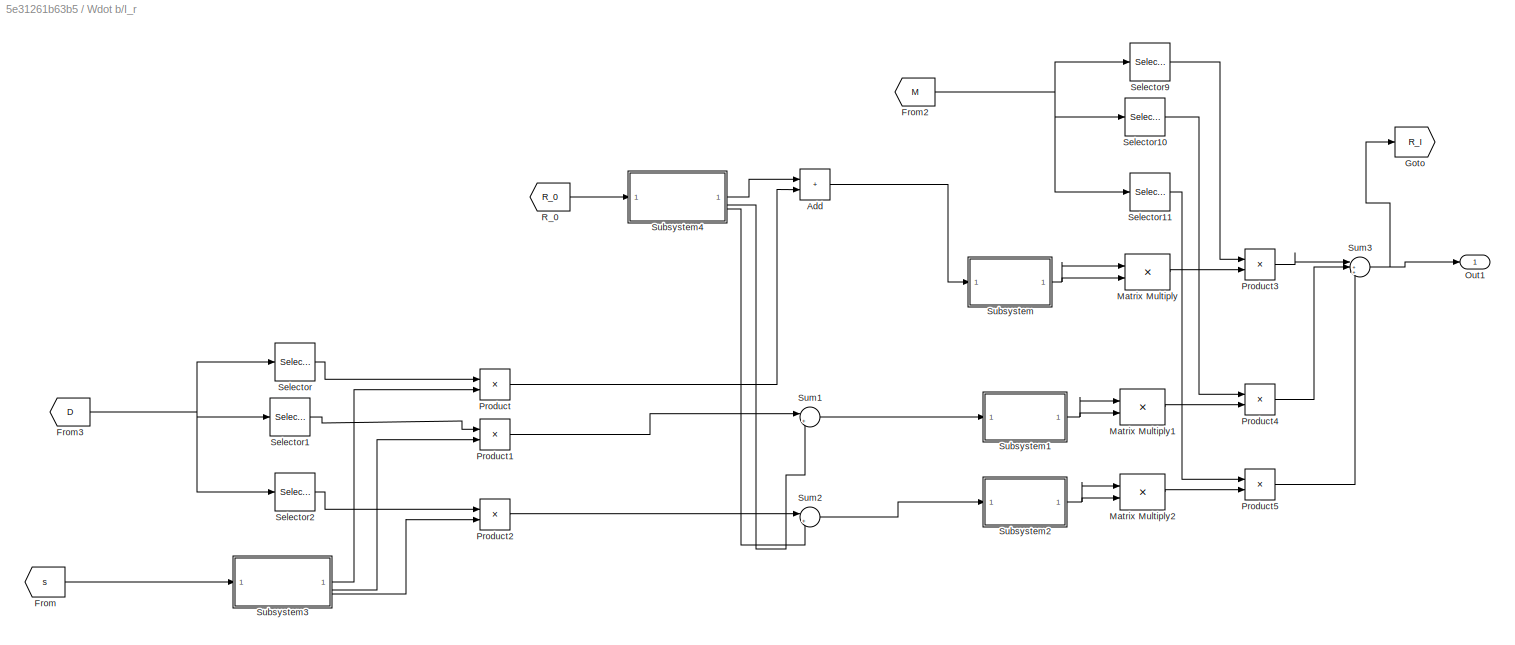
BLOCK [SubSystem] Wdot b/I_r
BLOCK [Sum] Wdot b/I_r/Add
  IconShape = rectangular
BLOCK [From] Wdot b/I_r/From
  GotoTag = s
  TagVisibility = global
BLOCK [From] Wdot b/I_r/From2
  GotoTag = M
  TagVisibility = global
BLOCK [From] Wdot b/I_r/From3
  GotoTag = D
  TagVisibility = global
BLOCK [Goto] Wdot b/I_r/Goto
  GotoTag = R_I
  TagVisibility = global
BLOCK [Product] Wdot b/I_r/Matrix Multiply
  Multiplication = Matrix(*)
BLOCK [Product] Wdot b/I_r/Matrix Multiply1
  Multiplication = Matrix(*)
BLOCK [Product] Wdot b/I_r/Matrix Multiply2
  Multiplication = Matrix(*)
BLOCK [Outport] Wdot b/I_r/Out1
BLOCK [Product] Wdot b/I_r/Product
BLOCK [Product] Wdot b/I_r/Product1
BLOCK [Product] Wdot b/I_r/Product2
BLOCK [Product] Wdot b/I_r/Product3
BLOCK [Product] Wdot b/I_r/Product4
BLOCK [Product] Wdot b/I_r/Product5
BLOCK [From] Wdot b/I_r/R_0
  GotoTag = R_0
  TagVisibility = global
BLOCK [Selector] Wdot b/I_r/Selector
  IndexOptions = Index vector (dialog)
  Indices = [1]
  InputPortWidth = 3
  OutputSizes = 1
BLOCK [Selector] Wdot b/I_r/Selector1
  IndexOptions = Index vector (dialog)
  Indices = [2]
  InputPortWidth = 3
  OutputSizes = 1
BLOCK [Selector] Wdot b/I_r/Selector10
  IndexOptions = Index vector (dialog)
  Indices = [2]
  InputPortWidth = 3
  OutputSizes = 1
BLOCK [Selector] Wdot b/I_r/Selector11
  IndexOptions = Index vector (dialog)
  Indices = [3]
  InputPortWidth = 3
  OutputSizes = 1
BLOCK [Selector] Wdot b/I_r/Selector2
  IndexOptions = Index vector (dialog)
  Indices = [3]
  InputPortWidth = 3
  OutputSizes = 1
BLOCK [Selector] Wdot b/I_r/Selector9
  IndexOptions = Index vector (dialog)
  Indices = [1]
  InputPortWidth = 3
  OutputSizes = 1
BLOCK [SubSystem] Wdot b/I_r/Subsystem
BLOCK [Constant] Wdot b/I_r/Subsystem/Constant
  Value = 0
  VectorParams1D = off
BLOCK [Constant] Wdot b/I_r/Subsystem/Constant1
  Value = 0
  VectorParams1D = off
BLOCK [Constant] Wdot b/I_r/Subsystem/Constant2
  Value = 0
  VectorParams1D = off
BLOCK [Demux] Wdot b/I_r/Subsystem/Demux
  Outputs = 3
BLOCK [Gain] Wdot b/I_r/Subsystem/Gain
  Gain = -1
BLOCK [Gain] Wdot b/I_r/Subsystem/Gain1
  Gain = -1
BLOCK [Gain] Wdot b/I_r/Subsystem/Gain2
  Gain = -1
BLOCK [Inport] Wdot b/I_r/Subsystem/In1
BLOCK [Concatenate] Wdot b/I_r/Subsystem/Matrix Concatenate
  ConcatenateDimension = 2
  Mode = Multidimensional array
  NumInputs = 3
BLOCK [Mux] Wdot b/I_r/Subsystem/Mux
  DisplayOption = bar
  Inputs = 3
BLOCK [Mux] Wdot b/I_r/Subsystem/Mux1
  DisplayOption = bar
  Inputs = 3
BLOCK [Mux] Wdot b/I_r/Subsystem/Mux2
  DisplayOption = bar
  Inputs = 3
BLOCK [Outport] Wdot b/I_r/Subsystem/Out1
BLOCK [SubSystem] Wdot b/I_r/Subsystem1
BLOCK [Constant] Wdot b/I_r/Subsystem1/Constant
  Value = 0
  VectorParams1D = off
BLOCK [Constant] Wdot b/I_r/Subsystem1/Constant1
  Value = 0
  VectorParams1D = off
BLOCK [Constant] Wdot b/I_r/Subsystem1/Constant2
  Value = 0
  VectorParams1D = off
BLOCK [Demux] Wdot b/I_r/Subsystem1/Demux
  Outputs = 3
BLOCK [Gain] Wdot b/I_r/Subsystem1/Gain
  Gain = -1
BLOCK [Gain] Wdot b/I_r/Subsystem1/Gain1
  Gain = -1
BLOCK [Gain] Wdot b/I_r/Subsystem1/Gain2
  Gain = -1
BLOCK [Inport] Wdot b/I_r/Subsystem1/In1
BLOCK [Concatenate] Wdot b/I_r/Subsystem1/Matrix Concatenate
  ConcatenateDimension = 2
  Mode = Multidimensional array
  NumInputs = 3
BLOCK [Mux] Wdot b/I_r/Subsystem1/Mux
  DisplayOption = bar
  Inputs = 3
BLOCK [Mux] Wdot b/I_r/Subsystem1/Mux1
  DisplayOption = bar
  Inputs = 3
BLOCK [Mux] Wdot b/I_r/Subsystem1/Mux2
  DisplayOption = bar
  Inputs = 3
BLOCK [Outport] Wdot b/I_r/Subsystem1/Out1
BLOCK [SubSystem] Wdot b/I_r/Subsystem2
BLOCK [Constant] Wdot b/I_r/Subsystem2/Constant
  Value = 0
  VectorParams1D = off
BLOCK [Constant] Wdot b/I_r/Subsystem2/Constant1
  Value = 0
  VectorParams1D = off
BLOCK [Constant] Wdot b/I_r/Subsystem2/Constant2
  Value = 0
  VectorParams1D = off
BLOCK [Demux] Wdot b/I_r/Subsystem2/Demux
  Outputs = 3
BLOCK [Gain] Wdot b/I_r/Subsystem2/Gain
  Gain = -1
BLOCK [Gain] Wdot b/I_r/Subsystem2/Gain1
  Gain = -1
BLOCK [Gain] Wdot b/I_r/Subsystem2/Gain2
  Gain = -1
BLOCK [Inport] Wdot b/I_r/Subsystem2/In1
BLOCK [Concatenate] Wdot b/I_r/Subsystem2/Matrix Concatenate
  ConcatenateDimension = 2
  Mode = Multidimensional array
  NumInputs = 3
BLOCK [Mux] Wdot b/I_r/Subsystem2/Mux
  DisplayOption = bar
  Inputs = 3
BLOCK [Mux] Wdot b/I_r/Subsystem2/Mux1
  DisplayOption = bar
  Inputs = 3
BLOCK [Mux] Wdot b/I_r/Subsystem2/Mux2
  DisplayOption = bar
  Inputs = 3
BLOCK [Outport] Wdot b/I_r/Subsystem2/Out1
BLOCK [SubSystem] Wdot b/I_r/Subsystem3
BLOCK [Inport] Wdot b/I_r/Subsystem3/In1
BLOCK [Outport] Wdot b/I_r/Subsystem3/Out1
BLOCK [Outport] Wdot b/I_r/Subsystem3/Out2
  Port = 2
BLOCK [Outport] Wdot b/I_r/Subsystem3/Out3
  Port = 3
BLOCK [Reshape] Wdot b/I_r/Subsystem3/Reshape
  OutputDimensionality = Column vector (2-D)
  OutputDimensions = [1,3]
BLOCK [Selector] Wdot b/I_r/Subsystem3/Selector
  IndexOptions = Index vector (dialog)
  Indices = [1]
  InputPortWidth = 9
  OutputSizes = 1
BLOCK [Selector] Wdot b/I_r/Subsystem3/Selector1
  IndexOptions = Index vector (dialog)
  Indices = [2]
  InputPortWidth = 9
  OutputSizes = 1
BLOCK [Selector] Wdot b/I_r/Subsystem3/Selector2
  IndexOptions = Index vector (dialog)
  Indices = [3]
  InputPortWidth = 9
  OutputSizes = 1
BLOCK [Selector] Wdot b/I_r/Subsystem3/Selector3
  IndexOptions = Index vector (dialog)
  Indices = [4]
  InputPortWidth = 9
  OutputSizes = 1
BLOCK [Selector] Wdot b/I_r/Subsystem3/Selector4
  IndexOptions = Index vector (dialog)
  Indices = [5]
  InputPortWidth = 9
  OutputSizes = 1
BLOCK [Selector] Wdot b/I_r/Subsystem3/Selector5
  IndexOptions = Index vector (dialog)
  Indices = [6]
  InputPortWidth = 9
  OutputSizes = 1
BLOCK [Selector] Wdot b/I_r/Subsystem3/Selector6
  IndexOptions = Index vector (dialog)
  Indices = [7]
  InputPortWidth = 9
  OutputSizes = 1
BLOCK [Selector] Wdot b/I_r/Subsystem3/Selector7
  IndexOptions = Index vector (dialog)
  Indices = [8]
  InputPortWidth = 9
  OutputSizes = 1
BLOCK [Selector] Wdot b/I_r/Subsystem3/Selector8
  IndexOptions = Index vector (dialog)
  Indices = [9]
  InputPortWidth = 9
  OutputSizes = 1
BLOCK [Concatenate] Wdot b/I_r/Subsystem3/Vector Concatenate
  Mode = Multidimensional array
  NumInputs = 3
BLOCK [Concatenate] Wdot b/I_r/Subsystem3/Vector Concatenate1
  Mode = Multidimensional array
  NumInputs = 3
BLOCK [Concatenate] Wdot b/I_r/Subsystem3/Vector Concatenate2
  Mode = Multidimensional array
  NumInputs = 3
BLOCK [SubSystem] Wdot b/I_r/Subsystem4
BLOCK [Inport] Wdot b/I_r/Subsystem4/In1
BLOCK [Outport] Wdot b/I_r/Subsystem4/Out1
BLOCK [Outport] Wdot b/I_r/Subsystem4/Out2
  Port = 2
BLOCK [Outport] Wdot b/I_r/Subsystem4/Out3
  Port = 3
BLOCK [Reshape] Wdot b/I_r/Subsystem4/Reshape
  OutputDimensionality = Column vector (2-D)
  OutputDimensions = [1,3]
BLOCK [Selector] Wdot b/I_r/Subsystem4/Selector
  IndexOptions = Index vector (dialog)
  Indices = [1]
  InputPortWidth = 9
  OutputSizes = 1
BLOCK [Selector] Wdot b/I_r/Subsystem4/Selector1
  IndexOptions = Index vector (dialog)
  Indices = [2]
  InputPortWidth = 9
  OutputSizes = 1
BLOCK [Selector] Wdot b/I_r/Subsystem4/Selector2
  IndexOptions = Index vector (dialog)
  Indices = [3]
  InputPortWidth = 9
  OutputSizes = 1
BLOCK [Selector] Wdot b/I_r/Subsystem4/Selector3
  IndexOptions = Index vector (dialog)
  Indices = [4]
  InputPortWidth = 9
  OutputSizes = 1
BLOCK [Selector] Wdot b/I_r/Subsystem4/Selector4
  IndexOptions = Index vector (dialog)
  Indices = [5]
  InputPortWidth = 9
  OutputSizes = 1
BLOCK [Selector] Wdot b/I_r/Subsystem4/Selector5
  IndexOptions = Index vector (dialog)
  Indices = [6]
  InputPortWidth = 9
  OutputSizes = 1
BLOCK [Selector] Wdot b/I_r/Subsystem4/Selector6
  IndexOptions = Index vector (dialog)
  Indices = [7]
  InputPortWidth = 9
  OutputSizes = 1
BLOCK [Selector] Wdot b/I_r/Subsystem4/Selector7
  IndexOptions = Index vector (dialog)
  Indices = [8]
  InputPortWidth = 9
  OutputSizes = 1
BLOCK [Selector] Wdot b/I_r/Subsystem4/Selector8
  IndexOptions = Index vector (dialog)
  Indices = [9]
  InputPortWidth = 9
  OutputSizes = 1
BLOCK [Concatenate] Wdot b/I_r/Subsystem4/Vector Concatenate
  Mode = Multidimensional array
  NumInputs = 3
BLOCK [Concatenate] Wdot b/I_r/Subsystem4/Vector Concatenate1
  Mode = Multidimensional array
  NumInputs = 3
BLOCK [Concatenate] Wdot b/I_r/Subsystem4/Vector Concatenate2
  Mode = Multidimensional array
  NumInputs = 3
BLOCK [Sum] Wdot b/I_r/Sum1
  Inputs = |++
BLOCK [Sum] Wdot b/I_r/Sum2
  Inputs = |++
BLOCK [Sum] Wdot b/I_r/Sum3
  Inputs = |+++
BLOCK [Reference] Wdot b/Invert 3x3 Matrix  REF=aerolibutil/Invert 
3x3 Matrix
  SourceBlock = aerolibutil/Invert \n3x3 Matrix
  SourceType = Invert 3x3 Matrix
BLOCK [Product] Wdot b/Matrix Multiply
  Multiplication = Matrix(*)
BLOCK [Outport] Wdot b/Out1
BLOCK [Inport] Wdot b/Output
BLOCK [Sum] Wdot b/Subtract
  IconShape = rectangular
  Inputs = +-
BLOCK [Constant] c
  Value = 0.0162
  VectorParams1D = off
BLOCK [Constant] d_max
  Value = .13
BLOCK [Constant] g
  Value = [0; 0; -9.81]
  VectorParams1D = off
BLOCK [Constant] h_max
BLOCK [Constant] hd_max
BLOCK [Constant] m
  Value = [10; 10; 10]
  VectorParams1D = off
BLOCK [Constant] m_r
  Value = [-0.4; 0.4; -4]
  VectorParams1D = off
BLOCK [Constant] pref
  Value = [0;0;0]
  VectorParams1D = off
BLOCK [Constant] pref1
  Value = [0;0;0]
BLOCK [SubSystem] quaternion propagation
BLOCK [From] quaternion propagation/From
  GotoTag = Wb
  TagVisibility = global
BLOCK [From] quaternion propagation/From1
  GotoTag = q
  TagVisibility = global
BLOCK [Product] quaternion propagation/Matrix Multiply
  Multiplication = Matrix(*)
BLOCK [Gain] quaternion propagation/Multiply
  Gain = 0.5
BLOCK [SubSystem] quaternion propagation/Omega Wb
BLOCK [Constant] quaternion propagation/Omega Wb/Constant
  Value = 0
  VectorParams1D = off
BLOCK [Constant] quaternion propagation/Omega Wb/Constant1
  Value = 0
  VectorParams1D = off
BLOCK [Constant] quaternion propagation/Omega Wb/Constant2
  Value = 0
  VectorParams1D = off
BLOCK [Constant] quaternion propagation/Omega Wb/Constant3
  Value = 0
  VectorParams1D = off
BLOCK [Demux] quaternion propagation/Omega Wb/Demux
  Outputs = 3
BLOCK [Gain] quaternion propagation/Omega Wb/Gain
  Gain = -1
BLOCK [Gain] quaternion propagation/Omega Wb/Gain1
  Gain = -1
BLOCK [Gain] quaternion propagation/Omega Wb/Gain2
  Gain = -1
BLOCK [Gain] quaternion propagation/Omega Wb/Gain3
  Gain = -1
BLOCK [Gain] quaternion propagation/Omega Wb/Gain4
  Gain = -1
BLOCK [Gain] quaternion propagation/Omega Wb/Gain5
  Gain = -1
BLOCK [Inport] quaternion propagation/Omega Wb/In1
BLOCK [Concatenate] quaternion propagation/Omega Wb/Matrix Concatenate
  ConcatenateDimension = 2
  Mode = Multidimensional array
  NumInputs = 4
BLOCK [Mux] quaternion propagation/Omega Wb/Mux
  DisplayOption = bar
BLOCK [Mux] quaternion propagation/Omega Wb/Mux1
  DisplayOption = bar
BLOCK [Mux] quaternion propagation/Omega Wb/Mux2
  DisplayOption = bar
BLOCK [Mux] quaternion propagation/Omega Wb/Mux3
  DisplayOption = bar
BLOCK [Outport] quaternion propagation/Omega Wb/Output
BLOCK [Outport] quaternion propagation/Output
BLOCK [Constant] r_0
  Value = [0 0 0; 0 0 0; 0 0 0]
BLOCK [Constant] s
  Value = [1,.1, .3; .3 ,1,.3; .3 ,1,.3]
  VectorParams1D = off
BLOCK [Constant] tref
  Value = [0;0;0]
BLOCK [Constant] vref
  Value = [0;0;0]
BLOCK [Constant] wref
  Value = [0;0;0]
  VectorParams1D = off
LINE A_max:1 -> Goto27:1
LINE Constant1:1 -> Integrator_Wd:2
LINE Constant2:1 -> Integrator_h (CMG momentum):2
LINE Constant3:1 -> Integrator_q:2
LINE Constant4:1 -> Integrator_d_balanced position:2
LINE Constant:1 -> Integrator_Wb:2
LINE DDD/Add1:1 -> DDD/Add2:2
LINE DDD/Add2:1 -> DDD/Matrix Multiply1:2
LINE DDD/Add:1 -> DDD/Add2:1
LINE DDD/From1:1 -> DDD/Product2:2
LINE DDD/From2:1 -> DDD/Product3:2
LINE DDD/From3:1 -> DDD/Product1:2
LINE DDD/From4:1 -> DDD/Product:2
LINE DDD/From6:1 -> DDD/Product:1
LINE DDD/From7:1 -> DDD/Product1:1
LINE DDD/From8:1 -> DDD/Product2:1
LINE DDD/From9:1 -> DDD/Product3:1
LINE DDD/From:1 -> DDD/Subsystem1:1
LINE DDD/Jacobian/From1:1 -> DDD/Jacobian/Subsystem1:1
NET DDD/Jacobian/From:1 -> DDD/Jacobian/Selector1:1, DDD/Jacobian/Selector2:1, DDD/Jacobian/Selector:1
LINE DDD/Jacobian/Gain:1 -> DDD/Jacobian/Out1:1
LINE DDD/Jacobian/Matrix Concatenate:1 -> DDD/Jacobian/Gain:1
LINE DDD/Jacobian/Product1:1 -> DDD/Jacobian/Matrix Concatenate:2
LINE DDD/Jacobian/Product2:1 -> DDD/Jacobian/Matrix Concatenate:3
LINE DDD/Jacobian/Product:1 -> DDD/Jacobian/Matrix Concatenate:1
LINE DDD/Jacobian/Selector1:1 -> DDD/Jacobian/Product1:2
LINE DDD/Jacobian/Selector2:1 -> DDD/Jacobian/Product2:2
LINE DDD/Jacobian/Selector:1 -> DDD/Jacobian/Product:2
LINE DDD/Jacobian/Subsystem1/R_0:1 -> DDD/Jacobian/Subsystem1/Reshape:1
NET DDD/Jacobian/Subsystem1/Reshape:1 -> DDD/Jacobian/Subsystem1/Selector1:1, DDD/Jacobian/Subsystem1/Selector2:1, DDD/Jacobian/Subsystem1/Selector3:1, DDD/Jacobian/Subsystem1/Selector4:1, DDD/Jacobian/Subsystem1/Selector5:1, DDD/Jacobian/Subsystem1/Selector6:1, DDD/Jacobian/Subsystem1/Selector7:1, DDD/Jacobian/Subsystem1/Selector8:1, DDD/Jacobian/Subsystem1/Selector:1
LINE DDD/Jacobian/Subsystem1/Selector1:1 -> DDD/Jacobian/Subsystem1/Vector Concatenate:2
LINE DDD/Jacobian/Subsystem1/Selector2:1 -> DDD/Jacobian/Subsystem1/Vector Concatenate:3
LINE DDD/Jacobian/Subsystem1/Selector3:1 -> DDD/Jacobian/Subsystem1/Vector Concatenate1:1
LINE DDD/Jacobian/Subsystem1/Selector4:1 -> DDD/Jacobian/Subsystem1/Vector Concatenate1:2
LINE DDD/Jacobian/Subsystem1/Selector5:1 -> DDD/Jacobian/Subsystem1/Vector Concatenate1:3
LINE DDD/Jacobian/Subsystem1/Selector6:1 -> DDD/Jacobian/Subsystem1/Vector Concatenate2:1
LINE DDD/Jacobian/Subsystem1/Selector7:1 -> DDD/Jacobian/Subsystem1/Vector Concatenate2:2
LINE DDD/Jacobian/Subsystem1/Selector8:1 -> DDD/Jacobian/Subsystem1/Vector Concatenate2:3
LINE DDD/Jacobian/Subsystem1/Selector:1 -> DDD/Jacobian/Subsystem1/Vector Concatenate:1
LINE DDD/Jacobian/Subsystem1/Vector Concatenate1:1 -> DDD/Jacobian/Subsystem1/Out2:1
LINE DDD/Jacobian/Subsystem1/Vector Concatenate2:1 -> DDD/Jacobian/Subsystem1/Out3:1
LINE DDD/Jacobian/Subsystem1/Vector Concatenate:1 -> DDD/Jacobian/Subsystem1/Out1:1
LINE DDD/Jacobian/Subsystem1:1 -> DDD/Jacobian/Product:1
LINE DDD/Jacobian/Subsystem1:2 -> DDD/Jacobian/Product1:1
LINE DDD/Jacobian/Subsystem1:3 -> DDD/Jacobian/Product2:1
LINE DDD/Jacobian:1 -> DDD/Matrix Multiply:2
NET DDD/Matrix Multiply1:1 -> DDD/Display:1, DDD/Output:1
LINE DDD/Matrix Multiply:1 -> DDD/Pseudoinverse:1
LINE DDD/Product1:1 -> DDD/Add:2
LINE DDD/Product2:1 -> DDD/Add1:1
LINE DDD/Product3:1 -> DDD/Add1:2
LINE DDD/Product:1 -> DDD/Add:1
NET DDD/Pseudoinverse:1 -> DDD/Display2:1, DDD/Matrix Multiply1:1
LINE DDD/Subsystem1/Constant1:1 -> DDD/Subsystem1/Mux1:2
LINE DDD/Subsystem1/Constant2:1 -> DDD/Subsystem1/Mux2:3
LINE DDD/Subsystem1/Constant:1 -> DDD/Subsystem1/Mux:1
NET DDD/Subsystem1/Demux:1 -> DDD/Subsystem1/Gain1:1, DDD/Subsystem1/Mux2:2
NET DDD/Subsystem1/Demux:2 -> DDD/Subsystem1/Gain2:1, DDD/Subsystem1/Mux:3
NET DDD/Subsystem1/Demux:3 -> DDD/Subsystem1/Gain:1, DDD/Subsystem1/Mux1:1
LINE DDD/Subsystem1/Gain1:1 -> DDD/Subsystem1/Mux1:3
LINE DDD/Subsystem1/Gain2:1 -> DDD/Subsystem1/Mux2:1
LINE DDD/Subsystem1/Gain:1 -> DDD/Subsystem1/Mux:2
LINE DDD/Subsystem1/In1:1 -> DDD/Subsystem1/Demux:1
LINE DDD/Subsystem1/Matrix Concatenate:1 -> DDD/Subsystem1/Out1:1
LINE DDD/Subsystem1/Mux1:1 -> DDD/Subsystem1/Matrix Concatenate:2
LINE DDD/Subsystem1/Mux2:1 -> DDD/Subsystem1/Matrix Concatenate:3
LINE DDD/Subsystem1/Mux:1 -> DDD/Subsystem1/Matrix Concatenate:1
LINE DDD/Subsystem1:1 -> DDD/Matrix Multiply:1
NET DDD:1 -> Goto22:1, Integrator_d_d:1
LINE From:1 -> Integrator_d_balanced position:1
LINE Hd Control Torque Saturation/Add:1 -> Hd Control Torque Saturation/Output:1
LINE Hd Control Torque Saturation/From1:1 -> Hd Control Torque Saturation/Sum:1
LINE Hd Control Torque Saturation/From2:1 -> Hd Control Torque Saturation/Matrix Multiply1:1
LINE Hd Control Torque Saturation/From3:1 -> Hd Control Torque Saturation/Matrix Multiply:1
LINE Hd Control Torque Saturation/From4:1 -> Hd Control Torque Saturation/Selector:1
LINE Hd Control Torque Saturation/From5:1 -> Hd Control Torque Saturation/Sum1:2
LINE Hd Control Torque Saturation/From:1 -> Hd Control Torque Saturation/Sum1:1
LINE Hd Control Torque Saturation/Gain:1 -> Hd Control Torque Saturation/Sum:2
LINE Hd Control Torque Saturation/Matrix Multiply1:1 -> Hd Control Torque Saturation/Add:1
LINE Hd Control Torque Saturation/Matrix Multiply:1 -> Hd Control Torque Saturation/Add:2
LINE Hd Control Torque Saturation/Selector:1 -> Hd Control Torque Saturation/Gain:1
LINE Hd Control Torque Saturation/Sum1:1 -> Hd Control Torque Saturation/Matrix Multiply1:2
LINE Hd Control Torque Saturation/Sum:1 -> Hd Control Torque Saturation/Matrix Multiply:2
NET Hd Control Torque Saturation:1 -> Goto28:1, Integrator_h (CMG momentum):1
LINE I_d:1 -> Goto21:1
LINE Inertia:1 -> Goto8:1
LINE Integrator_Wb:1 -> Goto5:1
LINE Integrator_Wd:1 -> Goto7:1
NET Integrator_d_balanced position:1 -> Goto4:1, Scope:1
LINE Integrator_d_d:1 -> Goto6:1
LINE Integrator_h (CMG momentum):1 -> Goto9:1
LINE Integrator_q:1 -> Goto17:1
LINE Inv_Id:1 -> Goto20:1
LINE Kd:1 -> Goto16:1
LINE Ki:1 -> Goto18:1
LINE KiJ:1 -> Goto14:1
LINE Kp:1 -> Goto23:1
LINE Kpj:1 -> Goto13:1
LINE Kv:1 -> Goto15:1
LINE Subsystem1/Demux1:1 -> Subsystem1/Subsystem2:1
LINE Subsystem1/Demux1:2 -> Subsystem1/Subsystem1:1
LINE Subsystem1/Demux1:3 -> Subsystem1/Subsystem3:1
LINE Subsystem1/Demux4:1 -> Subsystem1/Subsystem2:3
LINE Subsystem1/Demux4:2 -> Subsystem1/Subsystem1:3
LINE Subsystem1/Demux4:3 -> Subsystem1/Subsystem3:3
LINE Subsystem1/Demux:1 -> Subsystem1/Subsystem2:5
LINE Subsystem1/Demux:2 -> Subsystem1/Subsystem1:6
LINE Subsystem1/Demux:3 -> Subsystem1/Subsystem3:6
LINE Subsystem1/From1:1 -> Subsystem1/Demux4:1
LINE Subsystem1/From2:1 -> Subsystem1/Demux1:1
NET Subsystem1/From3:1 -> Subsystem1/Subsystem1:2, Subsystem1/Subsystem2:2, Subsystem1/Subsystem3:2
NET Subsystem1/From4:1 -> Subsystem1/Subsystem1:4, Subsystem1/Subsystem2:4, Subsystem1/Subsystem3:4
NET Subsystem1/From:1 -> Subsystem1/Subsystem1:5, Subsystem1/Subsystem2:6, Subsystem1/Subsystem3:5
LINE Subsystem1/In1:1 -> Subsystem1/Demux:1
LINE Subsystem1/Mux:1 -> Subsystem1/Out1:1
LINE Subsystem1/Subsystem1/Abs:1 -> Subsystem1/Subsystem1/Product:1
LINE Subsystem1/Subsystem1/Constant1:1 -> Subsystem1/Subsystem1/Switch1:3
LINE Subsystem1/Subsystem1/Constant6:1 -> Subsystem1/Subsystem1/Switch:3
LINE Subsystem1/Subsystem1/Divide:1 -> Subsystem1/Subsystem1/Switch2:3
LINE Subsystem1/Subsystem1/Product:1 -> Subsystem1/Subsystem1/Divide:2
LINE Subsystem1/Subsystem1/Subsystem/AND:1 -> Subsystem1/Subsystem1/Subsystem/Enabled Subsystem:enable
LINE Subsystem1/Subsystem1/Subsystem/Abs:1 -> Subsystem1/Subsystem1/Subsystem/LessThanOrEqual:1
LINE Subsystem1/Subsystem1/Subsystem/Constant1:1 -> Subsystem1/Subsystem1/Subsystem/Enabled Subsystem:1
LINE Subsystem1/Subsystem1/Subsystem/Constant:1 -> Subsystem1/Subsystem1/Subsystem/LessThanOrEqual1:2
LINE Subsystem1/Subsystem1/Subsystem/Enabled Subsystem/In1:1 -> Subsystem1/Subsystem1/Subsystem/Enabled Subsystem/Out1:1
LINE Subsystem1/Subsystem1/Subsystem/Enabled Subsystem:1 -> Subsystem1/Subsystem1/Subsystem/Out1:1
LINE Subsystem1/Subsystem1/Subsystem/LessThanOrEqual1:1 -> Subsystem1/Subsystem1/Subsystem/AND:2
LINE Subsystem1/Subsystem1/Subsystem/LessThanOrEqual:1 -> Subsystem1/Subsystem1/Subsystem/AND:1
LINE Subsystem1/Subsystem1/Subsystem/Product:1 -> Subsystem1/Subsystem1/Subsystem/LessThanOrEqual1:1
NET Subsystem1/Subsystem1/Subsystem/d:1 -> Subsystem1/Subsystem1/Subsystem/Abs:1, Subsystem1/Subsystem1/Subsystem/Product:1
LINE Subsystem1/Subsystem1/Subsystem/ddd:1 -> Subsystem1/Subsystem1/Subsystem/Product:2
LINE Subsystem1/Subsystem1/Subsystem/dmax:1 -> Subsystem1/Subsystem1/Subsystem/LessThanOrEqual:2
LINE Subsystem1/Subsystem1/Subsystem1/AND:1 -> Subsystem1/Subsystem1/Subsystem1/Enabled Subsystem:enable
LINE Subsystem1/Subsystem1/Subsystem1/Constant1:1 -> Subsystem1/Subsystem1/Subsystem1/Enabled Subsystem:1
LINE Subsystem1/Subsystem1/Subsystem1/Constant:1 -> Subsystem1/Subsystem1/Subsystem1/LessThanOrEqual1:2
LINE Subsystem1/Subsystem1/Subsystem1/Enabled Subsystem/In1:1 -> Subsystem1/Subsystem1/Subsystem1/Enabled Subsystem/Out1:1
LINE Subsystem1/Subsystem1/Subsystem1/Enabled Subsystem:1 -> Subsystem1/Subsystem1/Subsystem1/Out1:1
LINE Subsystem1/Subsystem1/Subsystem1/LessThanOrEqual1:1 -> Subsystem1/Subsystem1/Subsystem1/AND:2
LINE Subsystem1/Subsystem1/Subsystem1/LessThanOrEqual:1 -> Subsystem1/Subsystem1/Subsystem1/AND:1
LINE Subsystem1/Subsystem1/Subsystem1/Product:1 -> Subsystem1/Subsystem1/Subsystem1/LessThanOrEqual1:1
NET Subsystem1/Subsystem1/Subsystem1/dd:1 -> Subsystem1/Subsystem1/Subsystem1/LessThanOrEqual:1, Subsystem1/Subsystem1/Subsystem1/Product:1
LINE Subsystem1/Subsystem1/Subsystem1/ddd:1 -> Subsystem1/Subsystem1/Subsystem1/Product:2
LINE Subsystem1/Subsystem1/Subsystem1/vmax:1 -> Subsystem1/Subsystem1/Subsystem1/LessThanOrEqual:2
LINE Subsystem1/Subsystem1/Subsystem1:1 -> Subsystem1/Subsystem1/Switch1:2
LINE Subsystem1/Subsystem1/Subsystem2/Abs:1 -> Subsystem1/Subsystem1/Subsystem2/LessThanOrEqual:1
LINE Subsystem1/Subsystem1/Subsystem2/Constant1:1 -> Subsystem1/Subsystem1/Subsystem2/Enabled Subsystem:1
LINE Subsystem1/Subsystem1/Subsystem2/Enabled Subsystem/In1:1 -> Subsystem1/Subsystem1/Subsystem2/Enabled Subsystem/Out1:1
LINE Subsystem1/Subsystem1/Subsystem2/Enabled Subsystem:1 -> Subsystem1/Subsystem1/Subsystem2/Out1:1
LINE Subsystem1/Subsystem1/Subsystem2/From1:1 -> Subsystem1/Subsystem1/Subsystem2/LessThanOrEqual:2
LINE Subsystem1/Subsystem1/Subsystem2/LessThanOrEqual:1 -> Subsystem1/Subsystem1/Subsystem2/Enabled Subsystem:enable
LINE Subsystem1/Subsystem1/Subsystem2/ddd:1 -> Subsystem1/Subsystem1/Subsystem2/Abs:1
LINE Subsystem1/Subsystem1/Subsystem2:1 -> Subsystem1/Subsystem1/Switch2:2
LINE Subsystem1/Subsystem1/Subsystem:1 -> Subsystem1/Subsystem1/Switch:2
LINE Subsystem1/Subsystem1/Switch1:1 -> Subsystem1/Subsystem1/Switch2:1
LINE Subsystem1/Subsystem1/Switch2:1 -> Subsystem1/Subsystem1/Out1:1
LINE Subsystem1/Subsystem1/Switch:1 -> Subsystem1/Subsystem1/Switch1:1
LINE Subsystem1/Subsystem1/amax:1 -> Subsystem1/Subsystem1/Product:2
LINE Subsystem1/Subsystem1/d:1 -> Subsystem1/Subsystem1/Subsystem:1
LINE Subsystem1/Subsystem1/dd:1 -> Subsystem1/Subsystem1/Subsystem1:2
NET Subsystem1/Subsystem1/ddd:1 -> Subsystem1/Subsystem1/Abs:1, Subsystem1/Subsystem1/Divide:1, Subsystem1/Subsystem1/Subsystem1:1, Subsystem1/Subsystem1/Subsystem2:1, Subsystem1/Subsystem1/Subsystem:2, Subsystem1/Subsystem1/Switch:1
LINE Subsystem1/Subsystem1/dmax:1 -> Subsystem1/Subsystem1/Subsystem:3
LINE Subsystem1/Subsystem1/vmax:1 -> Subsystem1/Subsystem1/Subsystem1:3
LINE Subsystem1/Subsystem1:1 -> Subsystem1/Mux:2
LINE Subsystem1/Subsystem2/Abs:1 -> Subsystem1/Subsystem2/Product:1
LINE Subsystem1/Subsystem2/Constant1:1 -> Subsystem1/Subsystem2/Switch1:3
LINE Subsystem1/Subsystem2/Constant6:1 -> Subsystem1/Subsystem2/Switch:3
LINE Subsystem1/Subsystem2/Divide:1 -> Subsystem1/Subsystem2/Switch2:3
LINE Subsystem1/Subsystem2/Product:1 -> Subsystem1/Subsystem2/Divide:2
LINE Subsystem1/Subsystem2/Subsystem/AND:1 -> Subsystem1/Subsystem2/Subsystem/Enabled Subsystem:enable
LINE Subsystem1/Subsystem2/Subsystem/Abs:1 -> Subsystem1/Subsystem2/Subsystem/LessThanOrEqual:1
LINE Subsystem1/Subsystem2/Subsystem/Constant1:1 -> Subsystem1/Subsystem2/Subsystem/Enabled Subsystem:1
LINE Subsystem1/Subsystem2/Subsystem/Constant:1 -> Subsystem1/Subsystem2/Subsystem/LessThanOrEqual1:2
LINE Subsystem1/Subsystem2/Subsystem/Enabled Subsystem/In1:1 -> Subsystem1/Subsystem2/Subsystem/Enabled Subsystem/Out1:1
LINE Subsystem1/Subsystem2/Subsystem/Enabled Subsystem:1 -> Subsystem1/Subsystem2/Subsystem/Out1:1
LINE Subsystem1/Subsystem2/Subsystem/LessThanOrEqual1:1 -> Subsystem1/Subsystem2/Subsystem/AND:2
LINE Subsystem1/Subsystem2/Subsystem/LessThanOrEqual:1 -> Subsystem1/Subsystem2/Subsystem/AND:1
LINE Subsystem1/Subsystem2/Subsystem/Product:1 -> Subsystem1/Subsystem2/Subsystem/LessThanOrEqual1:1
NET Subsystem1/Subsystem2/Subsystem/d:1 -> Subsystem1/Subsystem2/Subsystem/Abs:1, Subsystem1/Subsystem2/Subsystem/Product:1
LINE Subsystem1/Subsystem2/Subsystem/ddd:1 -> Subsystem1/Subsystem2/Subsystem/Product:2
LINE Subsystem1/Subsystem2/Subsystem/dmax:1 -> Subsystem1/Subsystem2/Subsystem/LessThanOrEqual:2
LINE Subsystem1/Subsystem2/Subsystem1/AND:1 -> Subsystem1/Subsystem2/Subsystem1/Enabled Subsystem:enable
LINE Subsystem1/Subsystem2/Subsystem1/Constant1:1 -> Subsystem1/Subsystem2/Subsystem1/Enabled Subsystem:1
LINE Subsystem1/Subsystem2/Subsystem1/Constant:1 -> Subsystem1/Subsystem2/Subsystem1/LessThanOrEqual1:2
LINE Subsystem1/Subsystem2/Subsystem1/Enabled Subsystem/In1:1 -> Subsystem1/Subsystem2/Subsystem1/Enabled Subsystem/Out1:1
LINE Subsystem1/Subsystem2/Subsystem1/Enabled Subsystem:1 -> Subsystem1/Subsystem2/Subsystem1/Out1:1
LINE Subsystem1/Subsystem2/Subsystem1/LessThanOrEqual1:1 -> Subsystem1/Subsystem2/Subsystem1/AND:2
LINE Subsystem1/Subsystem2/Subsystem1/LessThanOrEqual:1 -> Subsystem1/Subsystem2/Subsystem1/AND:1
LINE Subsystem1/Subsystem2/Subsystem1/Product:1 -> Subsystem1/Subsystem2/Subsystem1/LessThanOrEqual1:1
NET Subsystem1/Subsystem2/Subsystem1/dd:1 -> Subsystem1/Subsystem2/Subsystem1/LessThanOrEqual:1, Subsystem1/Subsystem2/Subsystem1/Product:1
LINE Subsystem1/Subsystem2/Subsystem1/ddd:1 -> Subsystem1/Subsystem2/Subsystem1/Product:2
LINE Subsystem1/Subsystem2/Subsystem1/vmax:1 -> Subsystem1/Subsystem2/Subsystem1/LessThanOrEqual:2
LINE Subsystem1/Subsystem2/Subsystem1:1 -> Subsystem1/Subsystem2/Switch1:2
LINE Subsystem1/Subsystem2/Subsystem2/Abs:1 -> Subsystem1/Subsystem2/Subsystem2/LessThanOrEqual:1
LINE Subsystem1/Subsystem2/Subsystem2/Constant1:1 -> Subsystem1/Subsystem2/Subsystem2/Enabled Subsystem:1
LINE Subsystem1/Subsystem2/Subsystem2/Enabled Subsystem/In1:1 -> Subsystem1/Subsystem2/Subsystem2/Enabled Subsystem/Out1:1
LINE Subsystem1/Subsystem2/Subsystem2/Enabled Subsystem:1 -> Subsystem1/Subsystem2/Subsystem2/Out1:1
LINE Subsystem1/Subsystem2/Subsystem2/From1:1 -> Subsystem1/Subsystem2/Subsystem2/LessThanOrEqual:2
LINE Subsystem1/Subsystem2/Subsystem2/LessThanOrEqual:1 -> Subsystem1/Subsystem2/Subsystem2/Enabled Subsystem:enable
LINE Subsystem1/Subsystem2/Subsystem2/ddd:1 -> Subsystem1/Subsystem2/Subsystem2/Abs:1
LINE Subsystem1/Subsystem2/Subsystem2:1 -> Subsystem1/Subsystem2/Switch2:2
LINE Subsystem1/Subsystem2/Subsystem:1 -> Subsystem1/Subsystem2/Switch:2
LINE Subsystem1/Subsystem2/Switch1:1 -> Subsystem1/Subsystem2/Switch2:1
LINE Subsystem1/Subsystem2/Switch2:1 -> Subsystem1/Subsystem2/Out1:1
LINE Subsystem1/Subsystem2/Switch:1 -> Subsystem1/Subsystem2/Switch1:1
LINE Subsystem1/Subsystem2/amax:1 -> Subsystem1/Subsystem2/Product:2
LINE Subsystem1/Subsystem2/d:1 -> Subsystem1/Subsystem2/Subsystem:1
LINE Subsystem1/Subsystem2/dd:1 -> Subsystem1/Subsystem2/Subsystem1:2
NET Subsystem1/Subsystem2/ddd:1 -> Subsystem1/Subsystem2/Abs:1, Subsystem1/Subsystem2/Divide:1, Subsystem1/Subsystem2/Subsystem1:1, Subsystem1/Subsystem2/Subsystem2:1, Subsystem1/Subsystem2/Subsystem:2, Subsystem1/Subsystem2/Switch:1
LINE Subsystem1/Subsystem2/dmax:1 -> Subsystem1/Subsystem2/Subsystem:3
LINE Subsystem1/Subsystem2/vmax:1 -> Subsystem1/Subsystem2/Subsystem1:3
LINE Subsystem1/Subsystem2:1 -> Subsystem1/Mux:1
LINE Subsystem1/Subsystem3/Abs:1 -> Subsystem1/Subsystem3/Product:1
LINE Subsystem1/Subsystem3/Constant1:1 -> Subsystem1/Subsystem3/Switch1:3
LINE Subsystem1/Subsystem3/Constant6:1 -> Subsystem1/Subsystem3/Switch:3
LINE Subsystem1/Subsystem3/Divide:1 -> Subsystem1/Subsystem3/Switch2:3
LINE Subsystem1/Subsystem3/Product:1 -> Subsystem1/Subsystem3/Divide:2
LINE Subsystem1/Subsystem3/Subsystem/AND:1 -> Subsystem1/Subsystem3/Subsystem/Enabled Subsystem:enable
LINE Subsystem1/Subsystem3/Subsystem/Abs:1 -> Subsystem1/Subsystem3/Subsystem/LessThanOrEqual:1
LINE Subsystem1/Subsystem3/Subsystem/Constant1:1 -> Subsystem1/Subsystem3/Subsystem/Enabled Subsystem:1
LINE Subsystem1/Subsystem3/Subsystem/Constant:1 -> Subsystem1/Subsystem3/Subsystem/LessThanOrEqual1:2
LINE Subsystem1/Subsystem3/Subsystem/Enabled Subsystem/In1:1 -> Subsystem1/Subsystem3/Subsystem/Enabled Subsystem/Out1:1
LINE Subsystem1/Subsystem3/Subsystem/Enabled Subsystem:1 -> Subsystem1/Subsystem3/Subsystem/Out1:1
LINE Subsystem1/Subsystem3/Subsystem/LessThanOrEqual1:1 -> Subsystem1/Subsystem3/Subsystem/AND:2
LINE Subsystem1/Subsystem3/Subsystem/LessThanOrEqual:1 -> Subsystem1/Subsystem3/Subsystem/AND:1
LINE Subsystem1/Subsystem3/Subsystem/Product:1 -> Subsystem1/Subsystem3/Subsystem/LessThanOrEqual1:1
NET Subsystem1/Subsystem3/Subsystem/d:1 -> Subsystem1/Subsystem3/Subsystem/Abs:1, Subsystem1/Subsystem3/Subsystem/Product:1
LINE Subsystem1/Subsystem3/Subsystem/ddd:1 -> Subsystem1/Subsystem3/Subsystem/Product:2
LINE Subsystem1/Subsystem3/Subsystem/dmax:1 -> Subsystem1/Subsystem3/Subsystem/LessThanOrEqual:2
LINE Subsystem1/Subsystem3/Subsystem1/AND:1 -> Subsystem1/Subsystem3/Subsystem1/Enabled Subsystem:enable
LINE Subsystem1/Subsystem3/Subsystem1/Constant1:1 -> Subsystem1/Subsystem3/Subsystem1/Enabled Subsystem:1
LINE Subsystem1/Subsystem3/Subsystem1/Constant:1 -> Subsystem1/Subsystem3/Subsystem1/LessThanOrEqual1:2
LINE Subsystem1/Subsystem3/Subsystem1/Enabled Subsystem/In1:1 -> Subsystem1/Subsystem3/Subsystem1/Enabled Subsystem/Out1:1
LINE Subsystem1/Subsystem3/Subsystem1/Enabled Subsystem:1 -> Subsystem1/Subsystem3/Subsystem1/Out1:1
LINE Subsystem1/Subsystem3/Subsystem1/LessThanOrEqual1:1 -> Subsystem1/Subsystem3/Subsystem1/AND:2
LINE Subsystem1/Subsystem3/Subsystem1/LessThanOrEqual:1 -> Subsystem1/Subsystem3/Subsystem1/AND:1
LINE Subsystem1/Subsystem3/Subsystem1/Product:1 -> Subsystem1/Subsystem3/Subsystem1/LessThanOrEqual1:1
NET Subsystem1/Subsystem3/Subsystem1/dd:1 -> Subsystem1/Subsystem3/Subsystem1/LessThanOrEqual:1, Subsystem1/Subsystem3/Subsystem1/Product:1
LINE Subsystem1/Subsystem3/Subsystem1/ddd:1 -> Subsystem1/Subsystem3/Subsystem1/Product:2
LINE Subsystem1/Subsystem3/Subsystem1/vmax:1 -> Subsystem1/Subsystem3/Subsystem1/LessThanOrEqual:2
LINE Subsystem1/Subsystem3/Subsystem1:1 -> Subsystem1/Subsystem3/Switch1:2
LINE Subsystem1/Subsystem3/Subsystem2/Abs:1 -> Subsystem1/Subsystem3/Subsystem2/LessThanOrEqual:1
LINE Subsystem1/Subsystem3/Subsystem2/Constant1:1 -> Subsystem1/Subsystem3/Subsystem2/Enabled Subsystem:1
LINE Subsystem1/Subsystem3/Subsystem2/Enabled Subsystem/In1:1 -> Subsystem1/Subsystem3/Subsystem2/Enabled Subsystem/Out1:1
LINE Subsystem1/Subsystem3/Subsystem2/Enabled Subsystem:1 -> Subsystem1/Subsystem3/Subsystem2/Out1:1
LINE Subsystem1/Subsystem3/Subsystem2/From1:1 -> Subsystem1/Subsystem3/Subsystem2/LessThanOrEqual:2
LINE Subsystem1/Subsystem3/Subsystem2/LessThanOrEqual:1 -> Subsystem1/Subsystem3/Subsystem2/Enabled Subsystem:enable
LINE Subsystem1/Subsystem3/Subsystem2/ddd:1 -> Subsystem1/Subsystem3/Subsystem2/Abs:1
LINE Subsystem1/Subsystem3/Subsystem2:1 -> Subsystem1/Subsystem3/Switch2:2
LINE Subsystem1/Subsystem3/Subsystem:1 -> Subsystem1/Subsystem3/Switch:2
LINE Subsystem1/Subsystem3/Switch1:1 -> Subsystem1/Subsystem3/Switch2:1
LINE Subsystem1/Subsystem3/Switch2:1 -> Subsystem1/Subsystem3/Out1:1
LINE Subsystem1/Subsystem3/Switch:1 -> Subsystem1/Subsystem3/Switch1:1
LINE Subsystem1/Subsystem3/amax:1 -> Subsystem1/Subsystem3/Product:2
LINE Subsystem1/Subsystem3/d:1 -> Subsystem1/Subsystem3/Subsystem:1
LINE Subsystem1/Subsystem3/dd:1 -> Subsystem1/Subsystem3/Subsystem1:2
NET Subsystem1/Subsystem3/ddd:1 -> Subsystem1/Subsystem3/Abs:1, Subsystem1/Subsystem3/Divide:1, Subsystem1/Subsystem3/Subsystem1:1, Subsystem1/Subsystem3/Subsystem2:1, Subsystem1/Subsystem3/Subsystem:2, Subsystem1/Subsystem3/Switch:1
LINE Subsystem1/Subsystem3/dmax:1 -> Subsystem1/Subsystem3/Subsystem:3
LINE Subsystem1/Subsystem3/vmax:1 -> Subsystem1/Subsystem3/Subsystem1:3
LINE Subsystem1/Subsystem3:1 -> Subsystem1/Mux:3
LINE TNet/Add:1 -> TNet/Output:1
LINE TNet/Hd Control Torque Saturation/Add:1 -> TNet/Hd Control Torque Saturation/Output:1
LINE TNet/Hd Control Torque Saturation/From1:1 -> TNet/Hd Control Torque Saturation/Sum:1
LINE TNet/Hd Control Torque Saturation/From2:1 -> TNet/Hd Control Torque Saturation/Matrix Multiply1:1
LINE TNet/Hd Control Torque Saturation/From3:1 -> TNet/Hd Control Torque Saturation/Matrix Multiply:1
LINE TNet/Hd Control Torque Saturation/From4:1 -> TNet/Hd Control Torque Saturation/Selector:1
LINE TNet/Hd Control Torque Saturation/From5:1 -> TNet/Hd Control Torque Saturation/Sum1:2
LINE TNet/Hd Control Torque Saturation/From:1 -> TNet/Hd Control Torque Saturation/Sum1:1
LINE TNet/Hd Control Torque Saturation/Gain:1 -> TNet/Hd Control Torque Saturation/Sum:2
LINE TNet/Hd Control Torque Saturation/Matrix Multiply1:1 -> TNet/Hd Control Torque Saturation/Add:1
LINE TNet/Hd Control Torque Saturation/Matrix Multiply:1 -> TNet/Hd Control Torque Saturation/Add:2
LINE TNet/Hd Control Torque Saturation/Selector:1 -> TNet/Hd Control Torque Saturation/Gain:1
LINE TNet/Hd Control Torque Saturation/Sum1:1 -> TNet/Hd Control Torque Saturation/Matrix Multiply1:2
LINE TNet/Hd Control Torque Saturation/Sum:1 -> TNet/Hd Control Torque Saturation/Matrix Multiply:2
LINE TNet/Hd Control Torque Saturation:1 -> TNet/Add:4
LINE TNet/Subsystem/Cross Product:1 -> TNet/Subsystem/Out1:1
LINE TNet/Subsystem/From1:1 -> TNet/Subsystem/Cross Product:1
LINE TNet/Subsystem/From2:1 -> TNet/Subsystem/Product:2
LINE TNet/Subsystem/From3:1 -> TNet/Subsystem/Sum:2
LINE TNet/Subsystem/From:1 -> TNet/Subsystem/Product:1
LINE TNet/Subsystem/Product:1 -> TNet/Subsystem/Sum:1
LINE TNet/Subsystem/Sum:1 -> TNet/Subsystem/Cross Product:2
LINE TNet/Subsystem1/Add1:1 -> TNet/Subsystem1/Product1:2
NET TNet/Subsystem1/Add2:1 -> TNet/Subsystem1/Display3:1, TNet/Subsystem1/Product2:2
LINE TNet/Subsystem1/Add3:1 -> TNet/Subsystem1/Add4:2
LINE TNet/Subsystem1/Add4:1 -> TNet/Subsystem1/Output:1
LINE TNet/Subsystem1/Add:1 -> TNet/Subsystem1/Product:2
LINE TNet/Subsystem1/Cross Product1:1 -> TNet/Subsystem1/Sum1:2
LINE TNet/Subsystem1/Cross Product2:1 -> TNet/Subsystem1/Sum2:2
NET TNet/Subsystem1/Cross Product:1 -> TNet/Subsystem1/Display1:1, TNet/Subsystem1/Sum:1
LINE TNet/Subsystem1/From1:1 -> TNet/Subsystem1/Selector:1
LINE TNet/Subsystem1/From2:1 -> TNet/Subsystem1/Selector2:1
NET TNet/Subsystem1/From4:1 -> TNet/Subsystem1/Selector3:1, TNet/Subsystem1/Selector4:1, TNet/Subsystem1/Selector5:1
LINE TNet/Subsystem1/From5:1 -> TNet/Subsystem1/R_I:1
LINE TNet/Subsystem1/From:1 -> TNet/Subsystem1/Selector1:1
LINE TNet/Subsystem1/Gain1:1 -> TNet/Subsystem1/Sum1:1
LINE TNet/Subsystem1/Gain2:1 -> TNet/Subsystem1/Sum2:1
LINE TNet/Subsystem1/Gain:1 -> TNet/Subsystem1/Sum:2
LINE TNet/Subsystem1/Product1:1 -> TNet/Subsystem1/Gain1:1
LINE TNet/Subsystem1/Product2:1 -> TNet/Subsystem1/Gain2:1
LINE TNet/Subsystem1/Product3:1 -> TNet/Subsystem1/Cross Product:1
LINE TNet/Subsystem1/Product4:1 -> TNet/Subsystem1/Cross Product1:1
LINE TNet/Subsystem1/Product5:1 -> TNet/Subsystem1/Cross Product2:1
LINE TNet/Subsystem1/Product:1 -> TNet/Subsystem1/Gain:1
LINE TNet/Subsystem1/R_I/Add:1 -> TNet/Subsystem1/R_I/Matrix Concatenate1:1
NET TNet/Subsystem1/R_I/Displacment D:1 -> TNet/Subsystem1/R_I/Selector1:1, TNet/Subsystem1/R_I/Selector2:1, TNet/Subsystem1/R_I/Selector:1
LINE TNet/Subsystem1/R_I/From:1 -> TNet/Subsystem1/R_I/Subsystem3:1
LINE TNet/Subsystem1/R_I/In1:1 -> TNet/Subsystem1/R_I/Subsystem4:1
LINE TNet/Subsystem1/R_I/Matrix Concatenate1:1 -> TNet/Subsystem1/R_I/R_0:1
LINE TNet/Subsystem1/R_I/Product1:1 -> TNet/Subsystem1/R_I/Sum1:1
LINE TNet/Subsystem1/R_I/Product2:1 -> TNet/Subsystem1/R_I/Sum2:1
LINE TNet/Subsystem1/R_I/Product:1 -> TNet/Subsystem1/R_I/Add:2
LINE TNet/Subsystem1/R_I/Selector1:1 -> TNet/Subsystem1/R_I/Product1:1
LINE TNet/Subsystem1/R_I/Selector2:1 -> TNet/Subsystem1/R_I/Product2:1
LINE TNet/Subsystem1/R_I/Selector:1 -> TNet/Subsystem1/R_I/Product:1
LINE TNet/Subsystem1/R_I/Subsystem3/In1:1 -> TNet/Subsystem1/R_I/Subsystem3/Reshape:1
NET TNet/Subsystem1/R_I/Subsystem3/Reshape:1 -> TNet/Subsystem1/R_I/Subsystem3/Selector1:1, TNet/Subsystem1/R_I/Subsystem3/Selector2:1, TNet/Subsystem1/R_I/Subsystem3/Selector3:1, TNet/Subsystem1/R_I/Subsystem3/Selector4:1, TNet/Subsystem1/R_I/Subsystem3/Selector5:1, TNet/Subsystem1/R_I/Subsystem3/Selector6:1, TNet/Subsystem1/R_I/Subsystem3/Selector7:1, TNet/Subsystem1/R_I/Subsystem3/Selector8:1, TNet/Subsystem1/R_I/Subsystem3/Selector:1
LINE TNet/Subsystem1/R_I/Subsystem3/Selector1:1 -> TNet/Subsystem1/R_I/Subsystem3/Vector Concatenate:2
LINE TNet/Subsystem1/R_I/Subsystem3/Selector2:1 -> TNet/Subsystem1/R_I/Subsystem3/Vector Concatenate:3
LINE TNet/Subsystem1/R_I/Subsystem3/Selector3:1 -> TNet/Subsystem1/R_I/Subsystem3/Vector Concatenate1:1
LINE TNet/Subsystem1/R_I/Subsystem3/Selector4:1 -> TNet/Subsystem1/R_I/Subsystem3/Vector Concatenate1:2
LINE TNet/Subsystem1/R_I/Subsystem3/Selector5:1 -> TNet/Subsystem1/R_I/Subsystem3/Vector Concatenate1:3
LINE TNet/Subsystem1/R_I/Subsystem3/Selector6:1 -> TNet/Subsystem1/R_I/Subsystem3/Vector Concatenate2:1
LINE TNet/Subsystem1/R_I/Subsystem3/Selector7:1 -> TNet/Subsystem1/R_I/Subsystem3/Vector Concatenate2:2
LINE TNet/Subsystem1/R_I/Subsystem3/Selector8:1 -> TNet/Subsystem1/R_I/Subsystem3/Vector Concatenate2:3
LINE TNet/Subsystem1/R_I/Subsystem3/Selector:1 -> TNet/Subsystem1/R_I/Subsystem3/Vector Concatenate:1
LINE TNet/Subsystem1/R_I/Subsystem3/Vector Concatenate1:1 -> TNet/Subsystem1/R_I/Subsystem3/Out2:1
LINE TNet/Subsystem1/R_I/Subsystem3/Vector Concatenate2:1 -> TNet/Subsystem1/R_I/Subsystem3/Out3:1
LINE TNet/Subsystem1/R_I/Subsystem3/Vector Concatenate:1 -> TNet/Subsystem1/R_I/Subsystem3/Out1:1
LINE TNet/Subsystem1/R_I/Subsystem3:1 -> TNet/Subsystem1/R_I/Product:2
LINE TNet/Subsystem1/R_I/Subsystem3:2 -> TNet/Subsystem1/R_I/Product1:2
LINE TNet/Subsystem1/R_I/Subsystem3:3 -> TNet/Subsystem1/R_I/Product2:2
LINE TNet/Subsystem1/R_I/Subsystem4/In1:1 -> TNet/Subsystem1/R_I/Subsystem4/Reshape:1
NET TNet/Subsystem1/R_I/Subsystem4/Reshape:1 -> TNet/Subsystem1/R_I/Subsystem4/Selector1:1, TNet/Subsystem1/R_I/Subsystem4/Selector2:1, TNet/Subsystem1/R_I/Subsystem4/Selector3:1, TNet/Subsystem1/R_I/Subsystem4/Selector4:1, TNet/Subsystem1/R_I/Subsystem4/Selector5:1, TNet/Subsystem1/R_I/Subsystem4/Selector6:1, TNet/Subsystem1/R_I/Subsystem4/Selector7:1, TNet/Subsystem1/R_I/Subsystem4/Selector8:1, TNet/Subsystem1/R_I/Subsystem4/Selector:1
LINE TNet/Subsystem1/R_I/Subsystem4/Selector1:1 -> TNet/Subsystem1/R_I/Subsystem4/Vector Concatenate:2
LINE TNet/Subsystem1/R_I/Subsystem4/Selector2:1 -> TNet/Subsystem1/R_I/Subsystem4/Vector Concatenate:3
LINE TNet/Subsystem1/R_I/Subsystem4/Selector3:1 -> TNet/Subsystem1/R_I/Subsystem4/Vector Concatenate1:1
LINE TNet/Subsystem1/R_I/Subsystem4/Selector4:1 -> TNet/Subsystem1/R_I/Subsystem4/Vector Concatenate1:2
LINE TNet/Subsystem1/R_I/Subsystem4/Selector5:1 -> TNet/Subsystem1/R_I/Subsystem4/Vector Concatenate1:3
LINE TNet/Subsystem1/R_I/Subsystem4/Selector6:1 -> TNet/Subsystem1/R_I/Subsystem4/Vector Concatenate2:1
LINE TNet/Subsystem1/R_I/Subsystem4/Selector7:1 -> TNet/Subsystem1/R_I/Subsystem4/Vector Concatenate2:2
LINE TNet/Subsystem1/R_I/Subsystem4/Selector8:1 -> TNet/Subsystem1/R_I/Subsystem4/Vector Concatenate2:3
LINE TNet/Subsystem1/R_I/Subsystem4/Selector:1 -> TNet/Subsystem1/R_I/Subsystem4/Vector Concatenate:1
LINE TNet/Subsystem1/R_I/Subsystem4/Vector Concatenate1:1 -> TNet/Subsystem1/R_I/Subsystem4/Out2:1
LINE TNet/Subsystem1/R_I/Subsystem4/Vector Concatenate2:1 -> TNet/Subsystem1/R_I/Subsystem4/Out3:1
LINE TNet/Subsystem1/R_I/Subsystem4/Vector Concatenate:1 -> TNet/Subsystem1/R_I/Subsystem4/Out1:1
LINE TNet/Subsystem1/R_I/Subsystem4:1 -> TNet/Subsystem1/R_I/Add:1
LINE TNet/Subsystem1/R_I/Subsystem4:2 -> TNet/Subsystem1/R_I/Sum1:2
LINE TNet/Subsystem1/R_I/Subsystem4:3 -> TNet/Subsystem1/R_I/Sum2:2
LINE TNet/Subsystem1/R_I/Sum1:1 -> TNet/Subsystem1/R_I/Matrix Concatenate1:2
LINE TNet/Subsystem1/R_I/Sum2:1 -> TNet/Subsystem1/R_I/Matrix Concatenate1:3
LINE TNet/Subsystem1/R_I:1 -> TNet/Subsystem1/Subsystem3:1
LINE TNet/Subsystem1/Selector1:1 -> TNet/Subsystem1/Product1:1
LINE TNet/Subsystem1/Selector2:1 -> TNet/Subsystem1/Product2:1
LINE TNet/Subsystem1/Selector3:1 -> TNet/Subsystem1/Product4:1
LINE TNet/Subsystem1/Selector4:1 -> TNet/Subsystem1/Product3:1
LINE TNet/Subsystem1/Selector5:1 -> TNet/Subsystem1/Product5:1
LINE TNet/Subsystem1/Selector:1 -> TNet/Subsystem1/Product:1
LINE TNet/Subsystem1/Subsystem3/R_0:1 -> TNet/Subsystem1/Subsystem3/Reshape:1
NET TNet/Subsystem1/Subsystem3/Reshape:1 -> TNet/Subsystem1/Subsystem3/Selector1:1, TNet/Subsystem1/Subsystem3/Selector2:1, TNet/Subsystem1/Subsystem3/Selector3:1, TNet/Subsystem1/Subsystem3/Selector4:1, TNet/Subsystem1/Subsystem3/Selector5:1, TNet/Subsystem1/Subsystem3/Selector6:1, TNet/Subsystem1/Subsystem3/Selector7:1, TNet/Subsystem1/Subsystem3/Selector8:1, TNet/Subsystem1/Subsystem3/Selector:1
LINE TNet/Subsystem1/Subsystem3/Selector1:1 -> TNet/Subsystem1/Subsystem3/Vector Concatenate:2
LINE TNet/Subsystem1/Subsystem3/Selector2:1 -> TNet/Subsystem1/Subsystem3/Vector Concatenate:3
LINE TNet/Subsystem1/Subsystem3/Selector3:1 -> TNet/Subsystem1/Subsystem3/Vector Concatenate1:1
LINE TNet/Subsystem1/Subsystem3/Selector4:1 -> TNet/Subsystem1/Subsystem3/Vector Concatenate1:2
LINE TNet/Subsystem1/Subsystem3/Selector5:1 -> TNet/Subsystem1/Subsystem3/Vector Concatenate1:3
LINE TNet/Subsystem1/Subsystem3/Selector6:1 -> TNet/Subsystem1/Subsystem3/Vector Concatenate2:1
LINE TNet/Subsystem1/Subsystem3/Selector7:1 -> TNet/Subsystem1/Subsystem3/Vector Concatenate2:2
LINE TNet/Subsystem1/Subsystem3/Selector8:1 -> TNet/Subsystem1/Subsystem3/Vector Concatenate2:3
LINE TNet/Subsystem1/Subsystem3/Selector:1 -> TNet/Subsystem1/Subsystem3/Vector Concatenate:1
LINE TNet/Subsystem1/Subsystem3/Vector Concatenate1:1 -> TNet/Subsystem1/Subsystem3/Out2:1
LINE TNet/Subsystem1/Subsystem3/Vector Concatenate2:1 -> TNet/Subsystem1/Subsystem3/Out3:1
LINE TNet/Subsystem1/Subsystem3/Vector Concatenate:1 -> TNet/Subsystem1/Subsystem3/Out1:1
LINE TNet/Subsystem1/Subsystem3:1 -> TNet/Subsystem1/Product3:2
LINE TNet/Subsystem1/Subsystem3:2 -> TNet/Subsystem1/Product4:2
LINE TNet/Subsystem1/Subsystem3:3 -> TNet/Subsystem1/Product5:2
LINE TNet/Subsystem1/Sum1:1 -> TNet/Subsystem1/Add3:2
LINE TNet/Subsystem1/Sum2:1 -> TNet/Subsystem1/Add3:3
LINE TNet/Subsystem1/Sum:1 -> TNet/Subsystem1/Add3:1
NET TNet/Subsystem1/Tbalances Init T Gravity /Cross Product:1 -> TNet/Subsystem1/Tbalances Init T Gravity /Display:1, TNet/Subsystem1/Tbalances Init T Gravity /Out1:1
LINE TNet/Subsystem1/Tbalances Init T Gravity /Fgravity/From1:1 -> TNet/Subsystem1/Tbalances Init T Gravity /Fgravity/Q(q) rotational form of quaternio:1
LINE TNet/Subsystem1/Tbalances Init T Gravity /Fgravity/From:1 -> TNet/Subsystem1/Tbalances Init T Gravity /Fgravity/Matrix Multiply:2
NET TNet/Subsystem1/Tbalances Init T Gravity /Fgravity/Matrix Multiply:1 -> TNet/Subsystem1/Tbalances Init T Gravity /Fgravity/Display:1, TNet/Subsystem1/Tbalances Init T Gravity /Fgravity/Out1:1
NET TNet/Subsystem1/Tbalances Init T Gravity /Fgravity/Q(q) rotational form of quaternio/(q1,q2,q3,q0) to (q0,q1,q2,q3) /Q_input:1 -> TNet/Subsystem1/Tbalances Init T Gravity /Fgravity/Q(q) rotational form of quaternio/(q1,q2,q3,q0) to (q0,q1,q2,q3) /e_q_vect1:1, TNet/Subsystem1/Tbalances Init T Gravity /Fgravity/Q(q) rotational form of quaternio/(q1,q2,q3,q0) to (q0,q1,q2,q3) /e_q_vect2:1
LINE TNet/Subsystem1/Tbalances Init T Gravity /Fgravity/Q(q) rotational form of quaternio/(q1,q2,q3,q0) to (q0,q1,q2,q3) /Quaternion Normalize:1 -> TNet/Subsystem1/Tbalances Init T Gravity /Fgravity/Q(q) rotational form of quaternio/(q1,q2,q3,q0) to (q0,q1,q2,q3) /Output:1
LINE TNet/Subsystem1/Tbalances Init T Gravity /Fgravity/Q(q) rotational form of quaternio/(q1,q2,q3,q0) to (q0,q1,q2,q3) /Vector Concatenate:1 -> TNet/Subsystem1/Tbalances Init T Gravity /Fgravity/Q(q) rotational form of quaternio/(q1,q2,q3,q0) to (q0,q1,q2,q3) /Quaternion Normalize:1
LINE TNet/Subsystem1/Tbalances Init T Gravity /Fgravity/Q(q) rotational form of quaternio/(q1,q2,q3,q0) to (q0,q1,q2,q3) /e_q_vect1:1 -> TNet/Subsystem1/Tbalances Init T Gravity /Fgravity/Q(q) rotational form of quaternio/(q1,q2,q3,q0) to (q0,q1,q2,q3) /Vector Concatenate:2
LINE TNet/Subsystem1/Tbalances Init T Gravity /Fgravity/Q(q) rotational form of quaternio/(q1,q2,q3,q0) to (q0,q1,q2,q3) /e_q_vect2:1 -> TNet/Subsystem1/Tbalances Init T Gravity /Fgravity/Q(q) rotational form of quaternio/(q1,q2,q3,q0) to (q0,q1,q2,q3) /Vector Concatenate:1
LINE TNet/Subsystem1/Tbalances Init T Gravity /Fgravity/Q(q) rotational form of quaternio/(q1,q2,q3,q0) to (q0,q1,q2,q3) :1 -> TNet/Subsystem1/Tbalances Init T Gravity /Fgravity/Q(q) rotational form of quaternio/Quaternions to Direction Cosine Matrix:1
LINE TNet/Subsystem1/Tbalances Init T Gravity /Fgravity/Q(q) rotational form of quaternio/Q_input:1 -> TNet/Subsystem1/Tbalances Init T Gravity /Fgravity/Q(q) rotational form of quaternio/(q1,q2,q3,q0) to (q0,q1,q2,q3) :1
LINE TNet/Subsystem1/Tbalances Init T Gravity /Fgravity/Q(q) rotational form of quaternio/Quaternions to Direction Cosine Matrix:1 -> TNet/Subsystem1/Tbalances Init T Gravity /Fgravity/Q(q) rotational form of quaternio/Out1:1
LINE TNet/Subsystem1/Tbalances Init T Gravity /Fgravity/Q(q) rotational form of quaternio:1 -> TNet/Subsystem1/Tbalances Init T Gravity /Fgravity/Matrix Multiply:1
NET TNet/Subsystem1/Tbalances Init T Gravity /Fgravity:1 -> TNet/Subsystem1/Tbalances Init T Gravity /Cross Product:2, TNet/Subsystem1/Tbalances Init T Gravity /Out2:1
LINE TNet/Subsystem1/Tbalances Init T Gravity /Subsystem/From:1 -> TNet/Subsystem1/Tbalances Init T Gravity /Subsystem/Output:1
LINE TNet/Subsystem1/Tbalances Init T Gravity /Subsystem:1 -> TNet/Subsystem1/Tbalances Init T Gravity /Cross Product:1
LINE TNet/Subsystem1/Tbalances Init T Gravity :1 -> TNet/Subsystem1/Add4:1
NET TNet/Subsystem1/Tbalances Init T Gravity :2 -> TNet/Subsystem1/Cross Product1:2, TNet/Subsystem1/Cross Product2:2, TNet/Subsystem1/Cross Product:2, TNet/Subsystem1/Display4:1
LINE TNet/Subsystem1/Term 1/Demux:1 -> TNet/Subsystem1/Term 1/X:2
LINE TNet/Subsystem1/Term 1/Demux:2 -> TNet/Subsystem1/Term 1/Y:2
LINE TNet/Subsystem1/Term 1/Demux:3 -> TNet/Subsystem1/Term 1/Z:1
NET TNet/Subsystem1/Term 1/From1:1 -> TNet/Subsystem1/Term 1/X:4, TNet/Subsystem1/Term 1/Y:4, TNet/Subsystem1/Term 1/Z:4
LINE TNet/Subsystem1/Term 1/From2:1 -> TNet/Subsystem1/Term 1/Subsystem1:1
LINE TNet/Subsystem1/Term 1/From3:1 -> TNet/Subsystem1/Term 1/Demux:1
LINE TNet/Subsystem1/Term 1/From:1 -> TNet/Subsystem1/Term 1/R_I:1
LINE TNet/Subsystem1/Term 1/R_I/Add:1 -> TNet/Subsystem1/Term 1/R_I/Matrix Concatenate1:1
NET TNet/Subsystem1/Term 1/R_I/Displacment D:1 -> TNet/Subsystem1/Term 1/R_I/Selector1:1, TNet/Subsystem1/Term 1/R_I/Selector2:1, TNet/Subsystem1/Term 1/R_I/Selector:1
LINE TNet/Subsystem1/Term 1/R_I/In1:1 -> TNet/Subsystem1/Term 1/R_I/Subsystem4:1
LINE TNet/Subsystem1/Term 1/R_I/Matrix Concatenate1:1 -> TNet/Subsystem1/Term 1/R_I/R_0:1
LINE TNet/Subsystem1/Term 1/R_I/Product1:1 -> TNet/Subsystem1/Term 1/R_I/Sum1:1
LINE TNet/Subsystem1/Term 1/R_I/Product2:1 -> TNet/Subsystem1/Term 1/R_I/Sum2:1
LINE TNet/Subsystem1/Term 1/R_I/Product:1 -> TNet/Subsystem1/Term 1/R_I/Add:2
LINE TNet/Subsystem1/Term 1/R_I/S value:1 -> TNet/Subsystem1/Term 1/R_I/Subsystem3:1
LINE TNet/Subsystem1/Term 1/R_I/Selector1:1 -> TNet/Subsystem1/Term 1/R_I/Product1:1
LINE TNet/Subsystem1/Term 1/R_I/Selector2:1 -> TNet/Subsystem1/Term 1/R_I/Product2:1
LINE TNet/Subsystem1/Term 1/R_I/Selector:1 -> TNet/Subsystem1/Term 1/R_I/Product:1
LINE TNet/Subsystem1/Term 1/R_I/Subsystem3/In1:1 -> TNet/Subsystem1/Term 1/R_I/Subsystem3/Reshape:1
NET TNet/Subsystem1/Term 1/R_I/Subsystem3/Reshape:1 -> TNet/Subsystem1/Term 1/R_I/Subsystem3/Selector1:1, TNet/Subsystem1/Term 1/R_I/Subsystem3/Selector2:1, TNet/Subsystem1/Term 1/R_I/Subsystem3/Selector3:1, TNet/Subsystem1/Term 1/R_I/Subsystem3/Selector4:1, TNet/Subsystem1/Term 1/R_I/Subsystem3/Selector5:1, TNet/Subsystem1/Term 1/R_I/Subsystem3/Selector6:1, TNet/Subsystem1/Term 1/R_I/Subsystem3/Selector7:1, TNet/Subsystem1/Term 1/R_I/Subsystem3/Selector8:1, TNet/Subsystem1/Term 1/R_I/Subsystem3/Selector:1
LINE TNet/Subsystem1/Term 1/R_I/Subsystem3/Selector1:1 -> TNet/Subsystem1/Term 1/R_I/Subsystem3/Vector Concatenate:2
LINE TNet/Subsystem1/Term 1/R_I/Subsystem3/Selector2:1 -> TNet/Subsystem1/Term 1/R_I/Subsystem3/Vector Concatenate:3
LINE TNet/Subsystem1/Term 1/R_I/Subsystem3/Selector3:1 -> TNet/Subsystem1/Term 1/R_I/Subsystem3/Vector Concatenate1:1
LINE TNet/Subsystem1/Term 1/R_I/Subsystem3/Selector4:1 -> TNet/Subsystem1/Term 1/R_I/Subsystem3/Vector Concatenate1:2
LINE TNet/Subsystem1/Term 1/R_I/Subsystem3/Selector5:1 -> TNet/Subsystem1/Term 1/R_I/Subsystem3/Vector Concatenate1:3
LINE TNet/Subsystem1/Term 1/R_I/Subsystem3/Selector6:1 -> TNet/Subsystem1/Term 1/R_I/Subsystem3/Vector Concatenate2:1
LINE TNet/Subsystem1/Term 1/R_I/Subsystem3/Selector7:1 -> TNet/Subsystem1/Term 1/R_I/Subsystem3/Vector Concatenate2:2
LINE TNet/Subsystem1/Term 1/R_I/Subsystem3/Selector8:1 -> TNet/Subsystem1/Term 1/R_I/Subsystem3/Vector Concatenate2:3
LINE TNet/Subsystem1/Term 1/R_I/Subsystem3/Selector:1 -> TNet/Subsystem1/Term 1/R_I/Subsystem3/Vector Concatenate:1
LINE TNet/Subsystem1/Term 1/R_I/Subsystem3/Vector Concatenate1:1 -> TNet/Subsystem1/Term 1/R_I/Subsystem3/Out2:1
LINE TNet/Subsystem1/Term 1/R_I/Subsystem3/Vector Concatenate2:1 -> TNet/Subsystem1/Term 1/R_I/Subsystem3/Out3:1
LINE TNet/Subsystem1/Term 1/R_I/Subsystem3/Vector Concatenate:1 -> TNet/Subsystem1/Term 1/R_I/Subsystem3/Out1:1
LINE TNet/Subsystem1/Term 1/R_I/Subsystem3:1 -> TNet/Subsystem1/Term 1/R_I/Product:2
LINE TNet/Subsystem1/Term 1/R_I/Subsystem3:2 -> TNet/Subsystem1/Term 1/R_I/Product1:2
LINE TNet/Subsystem1/Term 1/R_I/Subsystem3:3 -> TNet/Subsystem1/Term 1/R_I/Product2:2
LINE TNet/Subsystem1/Term 1/R_I/Subsystem4/In1:1 -> TNet/Subsystem1/Term 1/R_I/Subsystem4/Reshape:1
NET TNet/Subsystem1/Term 1/R_I/Subsystem4/Reshape:1 -> TNet/Subsystem1/Term 1/R_I/Subsystem4/Selector1:1, TNet/Subsystem1/Term 1/R_I/Subsystem4/Selector2:1, TNet/Subsystem1/Term 1/R_I/Subsystem4/Selector3:1, TNet/Subsystem1/Term 1/R_I/Subsystem4/Selector4:1, TNet/Subsystem1/Term 1/R_I/Subsystem4/Selector5:1, TNet/Subsystem1/Term 1/R_I/Subsystem4/Selector6:1, TNet/Subsystem1/Term 1/R_I/Subsystem4/Selector7:1, TNet/Subsystem1/Term 1/R_I/Subsystem4/Selector8:1, TNet/Subsystem1/Term 1/R_I/Subsystem4/Selector:1
LINE TNet/Subsystem1/Term 1/R_I/Subsystem4/Selector1:1 -> TNet/Subsystem1/Term 1/R_I/Subsystem4/Vector Concatenate:2
LINE TNet/Subsystem1/Term 1/R_I/Subsystem4/Selector2:1 -> TNet/Subsystem1/Term 1/R_I/Subsystem4/Vector Concatenate:3
LINE TNet/Subsystem1/Term 1/R_I/Subsystem4/Selector3:1 -> TNet/Subsystem1/Term 1/R_I/Subsystem4/Vector Concatenate1:1
LINE TNet/Subsystem1/Term 1/R_I/Subsystem4/Selector4:1 -> TNet/Subsystem1/Term 1/R_I/Subsystem4/Vector Concatenate1:2
LINE TNet/Subsystem1/Term 1/R_I/Subsystem4/Selector5:1 -> TNet/Subsystem1/Term 1/R_I/Subsystem4/Vector Concatenate1:3
LINE TNet/Subsystem1/Term 1/R_I/Subsystem4/Selector6:1 -> TNet/Subsystem1/Term 1/R_I/Subsystem4/Vector Concatenate2:1
LINE TNet/Subsystem1/Term 1/R_I/Subsystem4/Selector7:1 -> TNet/Subsystem1/Term 1/R_I/Subsystem4/Vector Concatenate2:2
LINE TNet/Subsystem1/Term 1/R_I/Subsystem4/Selector8:1 -> TNet/Subsystem1/Term 1/R_I/Subsystem4/Vector Concatenate2:3
LINE TNet/Subsystem1/Term 1/R_I/Subsystem4/Selector:1 -> TNet/Subsystem1/Term 1/R_I/Subsystem4/Vector Concatenate:1
LINE TNet/Subsystem1/Term 1/R_I/Subsystem4/Vector Concatenate1:1 -> TNet/Subsystem1/Term 1/R_I/Subsystem4/Out2:1
LINE TNet/Subsystem1/Term 1/R_I/Subsystem4/Vector Concatenate2:1 -> TNet/Subsystem1/Term 1/R_I/Subsystem4/Out3:1
LINE TNet/Subsystem1/Term 1/R_I/Subsystem4/Vector Concatenate:1 -> TNet/Subsystem1/Term 1/R_I/Subsystem4/Out1:1
LINE TNet/Subsystem1/Term 1/R_I/Subsystem4:1 -> TNet/Subsystem1/Term 1/R_I/Add:1
LINE TNet/Subsystem1/Term 1/R_I/Subsystem4:2 -> TNet/Subsystem1/Term 1/R_I/Sum1:2
LINE TNet/Subsystem1/Term 1/R_I/Subsystem4:3 -> TNet/Subsystem1/Term 1/R_I/Sum2:2
LINE TNet/Subsystem1/Term 1/R_I/Sum1:1 -> TNet/Subsystem1/Term 1/R_I/Matrix Concatenate1:2
LINE TNet/Subsystem1/Term 1/R_I/Sum2:1 -> TNet/Subsystem1/Term 1/R_I/Matrix Concatenate1:3
LINE TNet/Subsystem1/Term 1/R_I:1 -> TNet/Subsystem1/Term 1/Subsystem3:1
LINE TNet/Subsystem1/Term 1/Subsystem1/R_0:1 -> TNet/Subsystem1/Term 1/Subsystem1/Reshape:1
NET TNet/Subsystem1/Term 1/Subsystem1/Reshape:1 -> TNet/Subsystem1/Term 1/Subsystem1/Selector1:1, TNet/Subsystem1/Term 1/Subsystem1/Selector2:1, TNet/Subsystem1/Term 1/Subsystem1/Selector3:1, TNet/Subsystem1/Term 1/Subsystem1/Selector4:1, TNet/Subsystem1/Term 1/Subsystem1/Selector5:1, TNet/Subsystem1/Term 1/Subsystem1/Selector6:1, TNet/Subsystem1/Term 1/Subsystem1/Selector7:1, TNet/Subsystem1/Term 1/Subsystem1/Selector8:1, TNet/Subsystem1/Term 1/Subsystem1/Selector:1
LINE TNet/Subsystem1/Term 1/Subsystem1/Selector1:1 -> TNet/Subsystem1/Term 1/Subsystem1/Vector Concatenate:2
LINE TNet/Subsystem1/Term 1/Subsystem1/Selector2:1 -> TNet/Subsystem1/Term 1/Subsystem1/Vector Concatenate:3
LINE TNet/Subsystem1/Term 1/Subsystem1/Selector3:1 -> TNet/Subsystem1/Term 1/Subsystem1/Vector Concatenate1:1
LINE TNet/Subsystem1/Term 1/Subsystem1/Selector4:1 -> TNet/Subsystem1/Term 1/Subsystem1/Vector Concatenate1:2
LINE TNet/Subsystem1/Term 1/Subsystem1/Selector5:1 -> TNet/Subsystem1/Term 1/Subsystem1/Vector Concatenate1:3
LINE TNet/Subsystem1/Term 1/Subsystem1/Selector6:1 -> TNet/Subsystem1/Term 1/Subsystem1/Vector Concatenate2:1
LINE TNet/Subsystem1/Term 1/Subsystem1/Selector7:1 -> TNet/Subsystem1/Term 1/Subsystem1/Vector Concatenate2:2
LINE TNet/Subsystem1/Term 1/Subsystem1/Selector8:1 -> TNet/Subsystem1/Term 1/Subsystem1/Vector Concatenate2:3
LINE TNet/Subsystem1/Term 1/Subsystem1/Selector:1 -> TNet/Subsystem1/Term 1/Subsystem1/Vector Concatenate:1
LINE TNet/Subsystem1/Term 1/Subsystem1/Vector Concatenate1:1 -> TNet/Subsystem1/Term 1/Subsystem1/Out2:1
LINE TNet/Subsystem1/Term 1/Subsystem1/Vector Concatenate2:1 -> TNet/Subsystem1/Term 1/Subsystem1/Out3:1
LINE TNet/Subsystem1/Term 1/Subsystem1/Vector Concatenate:1 -> TNet/Subsystem1/Term 1/Subsystem1/Out1:1
LINE TNet/Subsystem1/Term 1/Subsystem1:1 -> TNet/Subsystem1/Term 1/X:3
LINE TNet/Subsystem1/Term 1/Subsystem1:2 -> TNet/Subsystem1/Term 1/Y:3
LINE TNet/Subsystem1/Term 1/Subsystem1:3 -> TNet/Subsystem1/Term 1/Z:3
LINE TNet/Subsystem1/Term 1/Subsystem3/R_0:1 -> TNet/Subsystem1/Term 1/Subsystem3/Reshape:1
NET TNet/Subsystem1/Term 1/Subsystem3/Reshape:1 -> TNet/Subsystem1/Term 1/Subsystem3/Selector1:1, TNet/Subsystem1/Term 1/Subsystem3/Selector2:1, TNet/Subsystem1/Term 1/Subsystem3/Selector3:1, TNet/Subsystem1/Term 1/Subsystem3/Selector4:1, TNet/Subsystem1/Term 1/Subsystem3/Selector5:1, TNet/Subsystem1/Term 1/Subsystem3/Selector6:1, TNet/Subsystem1/Term 1/Subsystem3/Selector7:1, TNet/Subsystem1/Term 1/Subsystem3/Selector8:1, TNet/Subsystem1/Term 1/Subsystem3/Selector:1
LINE TNet/Subsystem1/Term 1/Subsystem3/Selector1:1 -> TNet/Subsystem1/Term 1/Subsystem3/Vector Concatenate:2
LINE TNet/Subsystem1/Term 1/Subsystem3/Selector2:1 -> TNet/Subsystem1/Term 1/Subsystem3/Vector Concatenate:3
LINE TNet/Subsystem1/Term 1/Subsystem3/Selector3:1 -> TNet/Subsystem1/Term 1/Subsystem3/Vector Concatenate1:1
LINE TNet/Subsystem1/Term 1/Subsystem3/Selector4:1 -> TNet/Subsystem1/Term 1/Subsystem3/Vector Concatenate1:2
LINE TNet/Subsystem1/Term 1/Subsystem3/Selector5:1 -> TNet/Subsystem1/Term 1/Subsystem3/Vector Concatenate1:3
LINE TNet/Subsystem1/Term 1/Subsystem3/Selector6:1 -> TNet/Subsystem1/Term 1/Subsystem3/Vector Concatenate2:1
LINE TNet/Subsystem1/Term 1/Subsystem3/Selector7:1 -> TNet/Subsystem1/Term 1/Subsystem3/Vector Concatenate2:2
LINE TNet/Subsystem1/Term 1/Subsystem3/Selector8:1 -> TNet/Subsystem1/Term 1/Subsystem3/Vector Concatenate2:3
LINE TNet/Subsystem1/Term 1/Subsystem3/Selector:1 -> TNet/Subsystem1/Term 1/Subsystem3/Vector Concatenate:1
LINE TNet/Subsystem1/Term 1/Subsystem3/Vector Concatenate1:1 -> TNet/Subsystem1/Term 1/Subsystem3/Out2:1
LINE TNet/Subsystem1/Term 1/Subsystem3/Vector Concatenate2:1 -> TNet/Subsystem1/Term 1/Subsystem3/Out3:1
LINE TNet/Subsystem1/Term 1/Subsystem3/Vector Concatenate:1 -> TNet/Subsystem1/Term 1/Subsystem3/Out1:1
NET TNet/Subsystem1/Term 1/Subsystem3:1 -> TNet/Subsystem1/Term 1/Display3:1, TNet/Subsystem1/Term 1/X:1
LINE TNet/Subsystem1/Term 1/Subsystem3:2 -> TNet/Subsystem1/Term 1/Y:1
LINE TNet/Subsystem1/Term 1/Subsystem3:3 -> TNet/Subsystem1/Term 1/Z:2
LINE TNet/Subsystem1/Term 1/X/Cross Product1:1 -> TNet/Subsystem1/Term 1/X/Cross Product:2
LINE TNet/Subsystem1/Term 1/X/Cross Product:1 -> TNet/Subsystem1/Term 1/X/y:1
LINE TNet/Subsystem1/Term 1/X/Product:1 -> TNet/Subsystem1/Term 1/X/Cross Product:1
LINE TNet/Subsystem1/Term 1/X/R-0:1 -> TNet/Subsystem1/Term 1/X/Cross Product1:2
LINE TNet/Subsystem1/Term 1/X/Wb:1 -> TNet/Subsystem1/Term 1/X/Cross Product1:1
LINE TNet/Subsystem1/Term 1/X/dd:1 -> TNet/Subsystem1/Term 1/X/Product:1
LINE TNet/Subsystem1/Term 1/X/s:1 -> TNet/Subsystem1/Term 1/X/Product:2
NET TNet/Subsystem1/Term 1/X:1 -> TNet/Subsystem1/Term 1/Display2:1, TNet/Subsystem1/Term 1/Out1:1
LINE TNet/Subsystem1/Term 1/Y/Cross Product1:1 -> TNet/Subsystem1/Term 1/Y/y:1
LINE TNet/Subsystem1/Term 1/Y/Cross Product:1 -> TNet/Subsystem1/Term 1/Y/Cross Product1:2
LINE TNet/Subsystem1/Term 1/Y/Product:1 -> TNet/Subsystem1/Term 1/Y/Cross Product1:1
LINE TNet/Subsystem1/Term 1/Y/R0:1 -> TNet/Subsystem1/Term 1/Y/Cross Product:2
LINE TNet/Subsystem1/Term 1/Y/Wb:1 -> TNet/Subsystem1/Term 1/Y/Cross Product:1
LINE TNet/Subsystem1/Term 1/Y/ddot:1 -> TNet/Subsystem1/Term 1/Y/Product:1
LINE TNet/Subsystem1/Term 1/Y/s:1 -> TNet/Subsystem1/Term 1/Y/Product:2
NET TNet/Subsystem1/Term 1/Y:1 -> TNet/Subsystem1/Term 1/Display:1, TNet/Subsystem1/Term 1/Out2:1
LINE TNet/Subsystem1/Term 1/Z/Cross Product1:1 -> TNet/Subsystem1/Term 1/Z/y:1
LINE TNet/Subsystem1/Term 1/Z/Cross Product:1 -> TNet/Subsystem1/Term 1/Z/Cross Product1:2
LINE TNet/Subsystem1/Term 1/Z/Product:1 -> TNet/Subsystem1/Term 1/Z/Cross Product1:1
LINE TNet/Subsystem1/Term 1/Z/R0:1 -> TNet/Subsystem1/Term 1/Z/Cross Product:2
LINE TNet/Subsystem1/Term 1/Z/Wb:1 -> TNet/Subsystem1/Term 1/Z/Cross Product:1
LINE TNet/Subsystem1/Term 1/Z/ddot:1 -> TNet/Subsystem1/Term 1/Z/Product:2
LINE TNet/Subsystem1/Term 1/Z/s:1 -> TNet/Subsystem1/Term 1/Z/Product:1
NET TNet/Subsystem1/Term 1/Z:1 -> TNet/Subsystem1/Term 1/Display1:1, TNet/Subsystem1/Term 1/y:1
LINE TNet/Subsystem1/Term 1:1 -> TNet/Subsystem1/Add:1
LINE TNet/Subsystem1/Term 1:2 -> TNet/Subsystem1/Add1:1
LINE TNet/Subsystem1/Term 1:3 -> TNet/Subsystem1/Add2:1
LINE TNet/Subsystem1/Term2/Demux:1 -> TNet/Subsystem1/Term2/X:2
LINE TNet/Subsystem1/Term2/Demux:2 -> TNet/Subsystem1/Term2/Y:2
LINE TNet/Subsystem1/Term2/Demux:3 -> TNet/Subsystem1/Term2/Z:1
LINE TNet/Subsystem1/Term2/From1:1 -> TNet/Subsystem1/Term2/Subsystem1:1
NET TNet/Subsystem1/Term2/From2:1 -> TNet/Subsystem1/Term2/X:4, TNet/Subsystem1/Term2/Y:4, TNet/Subsystem1/Term2/Z:4
LINE TNet/Subsystem1/Term2/From3:1 -> TNet/Subsystem1/Term2/Demux:1
LINE TNet/Subsystem1/Term2/From:1 -> TNet/Subsystem1/Term2/R_I:1
LINE TNet/Subsystem1/Term2/R_I/Add:1 -> TNet/Subsystem1/Term2/R_I/Matrix Concatenate1:1
NET TNet/Subsystem1/Term2/R_I/Displacment D:1 -> TNet/Subsystem1/Term2/R_I/Selector1:1, TNet/Subsystem1/Term2/R_I/Selector2:1, TNet/Subsystem1/Term2/R_I/Selector:1
LINE TNet/Subsystem1/Term2/R_I/In1:1 -> TNet/Subsystem1/Term2/R_I/Subsystem4:1
LINE TNet/Subsystem1/Term2/R_I/Matrix Concatenate1:1 -> TNet/Subsystem1/Term2/R_I/R_0:1
LINE TNet/Subsystem1/Term2/R_I/Product1:1 -> TNet/Subsystem1/Term2/R_I/Sum1:1
LINE TNet/Subsystem1/Term2/R_I/Product2:1 -> TNet/Subsystem1/Term2/R_I/Sum2:1
LINE TNet/Subsystem1/Term2/R_I/Product:1 -> TNet/Subsystem1/Term2/R_I/Add:2
LINE TNet/Subsystem1/Term2/R_I/S value:1 -> TNet/Subsystem1/Term2/R_I/Subsystem3:1
LINE TNet/Subsystem1/Term2/R_I/Selector1:1 -> TNet/Subsystem1/Term2/R_I/Product1:1
LINE TNet/Subsystem1/Term2/R_I/Selector2:1 -> TNet/Subsystem1/Term2/R_I/Product2:1
LINE TNet/Subsystem1/Term2/R_I/Selector:1 -> TNet/Subsystem1/Term2/R_I/Product:1
LINE TNet/Subsystem1/Term2/R_I/Subsystem3/In1:1 -> TNet/Subsystem1/Term2/R_I/Subsystem3/Reshape:1
NET TNet/Subsystem1/Term2/R_I/Subsystem3/Reshape:1 -> TNet/Subsystem1/Term2/R_I/Subsystem3/Selector1:1, TNet/Subsystem1/Term2/R_I/Subsystem3/Selector2:1, TNet/Subsystem1/Term2/R_I/Subsystem3/Selector3:1, TNet/Subsystem1/Term2/R_I/Subsystem3/Selector4:1, TNet/Subsystem1/Term2/R_I/Subsystem3/Selector5:1, TNet/Subsystem1/Term2/R_I/Subsystem3/Selector6:1, TNet/Subsystem1/Term2/R_I/Subsystem3/Selector7:1, TNet/Subsystem1/Term2/R_I/Subsystem3/Selector8:1, TNet/Subsystem1/Term2/R_I/Subsystem3/Selector:1
LINE TNet/Subsystem1/Term2/R_I/Subsystem3/Selector1:1 -> TNet/Subsystem1/Term2/R_I/Subsystem3/Vector Concatenate:2
LINE TNet/Subsystem1/Term2/R_I/Subsystem3/Selector2:1 -> TNet/Subsystem1/Term2/R_I/Subsystem3/Vector Concatenate:3
LINE TNet/Subsystem1/Term2/R_I/Subsystem3/Selector3:1 -> TNet/Subsystem1/Term2/R_I/Subsystem3/Vector Concatenate1:1
LINE TNet/Subsystem1/Term2/R_I/Subsystem3/Selector4:1 -> TNet/Subsystem1/Term2/R_I/Subsystem3/Vector Concatenate1:2
LINE TNet/Subsystem1/Term2/R_I/Subsystem3/Selector5:1 -> TNet/Subsystem1/Term2/R_I/Subsystem3/Vector Concatenate1:3
LINE TNet/Subsystem1/Term2/R_I/Subsystem3/Selector6:1 -> TNet/Subsystem1/Term2/R_I/Subsystem3/Vector Concatenate2:1
LINE TNet/Subsystem1/Term2/R_I/Subsystem3/Selector7:1 -> TNet/Subsystem1/Term2/R_I/Subsystem3/Vector Concatenate2:2
LINE TNet/Subsystem1/Term2/R_I/Subsystem3/Selector8:1 -> TNet/Subsystem1/Term2/R_I/Subsystem3/Vector Concatenate2:3
LINE TNet/Subsystem1/Term2/R_I/Subsystem3/Selector:1 -> TNet/Subsystem1/Term2/R_I/Subsystem3/Vector Concatenate:1
LINE TNet/Subsystem1/Term2/R_I/Subsystem3/Vector Concatenate1:1 -> TNet/Subsystem1/Term2/R_I/Subsystem3/Out2:1
LINE TNet/Subsystem1/Term2/R_I/Subsystem3/Vector Concatenate2:1 -> TNet/Subsystem1/Term2/R_I/Subsystem3/Out3:1
LINE TNet/Subsystem1/Term2/R_I/Subsystem3/Vector Concatenate:1 -> TNet/Subsystem1/Term2/R_I/Subsystem3/Out1:1
LINE TNet/Subsystem1/Term2/R_I/Subsystem3:1 -> TNet/Subsystem1/Term2/R_I/Product:2
LINE TNet/Subsystem1/Term2/R_I/Subsystem3:2 -> TNet/Subsystem1/Term2/R_I/Product1:2
LINE TNet/Subsystem1/Term2/R_I/Subsystem3:3 -> TNet/Subsystem1/Term2/R_I/Product2:2
LINE TNet/Subsystem1/Term2/R_I/Subsystem4/In1:1 -> TNet/Subsystem1/Term2/R_I/Subsystem4/Reshape:1
NET TNet/Subsystem1/Term2/R_I/Subsystem4/Reshape:1 -> TNet/Subsystem1/Term2/R_I/Subsystem4/Selector1:1, TNet/Subsystem1/Term2/R_I/Subsystem4/Selector2:1, TNet/Subsystem1/Term2/R_I/Subsystem4/Selector3:1, TNet/Subsystem1/Term2/R_I/Subsystem4/Selector4:1, TNet/Subsystem1/Term2/R_I/Subsystem4/Selector5:1, TNet/Subsystem1/Term2/R_I/Subsystem4/Selector6:1, TNet/Subsystem1/Term2/R_I/Subsystem4/Selector7:1, TNet/Subsystem1/Term2/R_I/Subsystem4/Selector8:1, TNet/Subsystem1/Term2/R_I/Subsystem4/Selector:1
LINE TNet/Subsystem1/Term2/R_I/Subsystem4/Selector1:1 -> TNet/Subsystem1/Term2/R_I/Subsystem4/Vector Concatenate:2
LINE TNet/Subsystem1/Term2/R_I/Subsystem4/Selector2:1 -> TNet/Subsystem1/Term2/R_I/Subsystem4/Vector Concatenate:3
LINE TNet/Subsystem1/Term2/R_I/Subsystem4/Selector3:1 -> TNet/Subsystem1/Term2/R_I/Subsystem4/Vector Concatenate1:1
LINE TNet/Subsystem1/Term2/R_I/Subsystem4/Selector4:1 -> TNet/Subsystem1/Term2/R_I/Subsystem4/Vector Concatenate1:2
LINE TNet/Subsystem1/Term2/R_I/Subsystem4/Selector5:1 -> TNet/Subsystem1/Term2/R_I/Subsystem4/Vector Concatenate1:3
LINE TNet/Subsystem1/Term2/R_I/Subsystem4/Selector6:1 -> TNet/Subsystem1/Term2/R_I/Subsystem4/Vector Concatenate2:1
LINE TNet/Subsystem1/Term2/R_I/Subsystem4/Selector7:1 -> TNet/Subsystem1/Term2/R_I/Subsystem4/Vector Concatenate2:2
LINE TNet/Subsystem1/Term2/R_I/Subsystem4/Selector8:1 -> TNet/Subsystem1/Term2/R_I/Subsystem4/Vector Concatenate2:3
LINE TNet/Subsystem1/Term2/R_I/Subsystem4/Selector:1 -> TNet/Subsystem1/Term2/R_I/Subsystem4/Vector Concatenate:1
LINE TNet/Subsystem1/Term2/R_I/Subsystem4/Vector Concatenate1:1 -> TNet/Subsystem1/Term2/R_I/Subsystem4/Out2:1
LINE TNet/Subsystem1/Term2/R_I/Subsystem4/Vector Concatenate2:1 -> TNet/Subsystem1/Term2/R_I/Subsystem4/Out3:1
LINE TNet/Subsystem1/Term2/R_I/Subsystem4/Vector Concatenate:1 -> TNet/Subsystem1/Term2/R_I/Subsystem4/Out1:1
LINE TNet/Subsystem1/Term2/R_I/Subsystem4:1 -> TNet/Subsystem1/Term2/R_I/Add:1
LINE TNet/Subsystem1/Term2/R_I/Subsystem4:2 -> TNet/Subsystem1/Term2/R_I/Sum1:2
LINE TNet/Subsystem1/Term2/R_I/Subsystem4:3 -> TNet/Subsystem1/Term2/R_I/Sum2:2
LINE TNet/Subsystem1/Term2/R_I/Sum1:1 -> TNet/Subsystem1/Term2/R_I/Matrix Concatenate1:2
LINE TNet/Subsystem1/Term2/R_I/Sum2:1 -> TNet/Subsystem1/Term2/R_I/Matrix Concatenate1:3
LINE TNet/Subsystem1/Term2/R_I:1 -> TNet/Subsystem1/Term2/Subsystem3:1
LINE TNet/Subsystem1/Term2/Subsystem1/R_0:1 -> TNet/Subsystem1/Term2/Subsystem1/Reshape:1
NET TNet/Subsystem1/Term2/Subsystem1/Reshape:1 -> TNet/Subsystem1/Term2/Subsystem1/Selector1:1, TNet/Subsystem1/Term2/Subsystem1/Selector2:1, TNet/Subsystem1/Term2/Subsystem1/Selector3:1, TNet/Subsystem1/Term2/Subsystem1/Selector4:1, TNet/Subsystem1/Term2/Subsystem1/Selector5:1, TNet/Subsystem1/Term2/Subsystem1/Selector6:1, TNet/Subsystem1/Term2/Subsystem1/Selector7:1, TNet/Subsystem1/Term2/Subsystem1/Selector8:1, TNet/Subsystem1/Term2/Subsystem1/Selector:1
LINE TNet/Subsystem1/Term2/Subsystem1/Selector1:1 -> TNet/Subsystem1/Term2/Subsystem1/Vector Concatenate:2
LINE TNet/Subsystem1/Term2/Subsystem1/Selector2:1 -> TNet/Subsystem1/Term2/Subsystem1/Vector Concatenate:3
LINE TNet/Subsystem1/Term2/Subsystem1/Selector3:1 -> TNet/Subsystem1/Term2/Subsystem1/Vector Concatenate1:1
LINE TNet/Subsystem1/Term2/Subsystem1/Selector4:1 -> TNet/Subsystem1/Term2/Subsystem1/Vector Concatenate1:2
LINE TNet/Subsystem1/Term2/Subsystem1/Selector5:1 -> TNet/Subsystem1/Term2/Subsystem1/Vector Concatenate1:3
LINE TNet/Subsystem1/Term2/Subsystem1/Selector6:1 -> TNet/Subsystem1/Term2/Subsystem1/Vector Concatenate2:1
LINE TNet/Subsystem1/Term2/Subsystem1/Selector7:1 -> TNet/Subsystem1/Term2/Subsystem1/Vector Concatenate2:2
LINE TNet/Subsystem1/Term2/Subsystem1/Selector8:1 -> TNet/Subsystem1/Term2/Subsystem1/Vector Concatenate2:3
LINE TNet/Subsystem1/Term2/Subsystem1/Selector:1 -> TNet/Subsystem1/Term2/Subsystem1/Vector Concatenate:1
LINE TNet/Subsystem1/Term2/Subsystem1/Vector Concatenate1:1 -> TNet/Subsystem1/Term2/Subsystem1/Out2:1
LINE TNet/Subsystem1/Term2/Subsystem1/Vector Concatenate2:1 -> TNet/Subsystem1/Term2/Subsystem1/Out3:1
LINE TNet/Subsystem1/Term2/Subsystem1/Vector Concatenate:1 -> TNet/Subsystem1/Term2/Subsystem1/Out1:1
LINE TNet/Subsystem1/Term2/Subsystem1:1 -> TNet/Subsystem1/Term2/X:3
LINE TNet/Subsystem1/Term2/Subsystem1:2 -> TNet/Subsystem1/Term2/Y:3
LINE TNet/Subsystem1/Term2/Subsystem1:3 -> TNet/Subsystem1/Term2/Z:3
LINE TNet/Subsystem1/Term2/Subsystem3/R_0:1 -> TNet/Subsystem1/Term2/Subsystem3/Reshape:1
NET TNet/Subsystem1/Term2/Subsystem3/Reshape:1 -> TNet/Subsystem1/Term2/Subsystem3/Selector1:1, TNet/Subsystem1/Term2/Subsystem3/Selector2:1, TNet/Subsystem1/Term2/Subsystem3/Selector3:1, TNet/Subsystem1/Term2/Subsystem3/Selector4:1, TNet/Subsystem1/Term2/Subsystem3/Selector5:1, TNet/Subsystem1/Term2/Subsystem3/Selector6:1, TNet/Subsystem1/Term2/Subsystem3/Selector7:1, TNet/Subsystem1/Term2/Subsystem3/Selector8:1, TNet/Subsystem1/Term2/Subsystem3/Selector:1
LINE TNet/Subsystem1/Term2/Subsystem3/Selector1:1 -> TNet/Subsystem1/Term2/Subsystem3/Vector Concatenate:2
LINE TNet/Subsystem1/Term2/Subsystem3/Selector2:1 -> TNet/Subsystem1/Term2/Subsystem3/Vector Concatenate:3
LINE TNet/Subsystem1/Term2/Subsystem3/Selector3:1 -> TNet/Subsystem1/Term2/Subsystem3/Vector Concatenate1:1
LINE TNet/Subsystem1/Term2/Subsystem3/Selector4:1 -> TNet/Subsystem1/Term2/Subsystem3/Vector Concatenate1:2
LINE TNet/Subsystem1/Term2/Subsystem3/Selector5:1 -> TNet/Subsystem1/Term2/Subsystem3/Vector Concatenate1:3
LINE TNet/Subsystem1/Term2/Subsystem3/Selector6:1 -> TNet/Subsystem1/Term2/Subsystem3/Vector Concatenate2:1
LINE TNet/Subsystem1/Term2/Subsystem3/Selector7:1 -> TNet/Subsystem1/Term2/Subsystem3/Vector Concatenate2:2
LINE TNet/Subsystem1/Term2/Subsystem3/Selector8:1 -> TNet/Subsystem1/Term2/Subsystem3/Vector Concatenate2:3
LINE TNet/Subsystem1/Term2/Subsystem3/Selector:1 -> TNet/Subsystem1/Term2/Subsystem3/Vector Concatenate:1
LINE TNet/Subsystem1/Term2/Subsystem3/Vector Concatenate1:1 -> TNet/Subsystem1/Term2/Subsystem3/Out2:1
LINE TNet/Subsystem1/Term2/Subsystem3/Vector Concatenate2:1 -> TNet/Subsystem1/Term2/Subsystem3/Out3:1
LINE TNet/Subsystem1/Term2/Subsystem3/Vector Concatenate:1 -> TNet/Subsystem1/Term2/Subsystem3/Out1:1
LINE TNet/Subsystem1/Term2/Subsystem3:1 -> TNet/Subsystem1/Term2/X:1
LINE TNet/Subsystem1/Term2/Subsystem3:2 -> TNet/Subsystem1/Term2/Y:1
LINE TNet/Subsystem1/Term2/Subsystem3:3 -> TNet/Subsystem1/Term2/Z:2
NET TNet/Subsystem1/Term2/X/Cross Product1:1 -> TNet/Subsystem1/Term2/X/Display:1, TNet/Subsystem1/Term2/X/Output:1
NET TNet/Subsystem1/Term2/X/Cross Product:1 -> TNet/Subsystem1/Term2/X/Cross Product1:2, TNet/Subsystem1/Term2/X/Display2:1
NET TNet/Subsystem1/Term2/X/Ddot:1 -> TNet/Subsystem1/Term2/X/Display5:1, TNet/Subsystem1/Term2/X/Product:1
NET TNet/Subsystem1/Term2/X/Product:1 -> TNet/Subsystem1/Term2/X/Cross Product:2, TNet/Subsystem1/Term2/X/Display1:1
LINE TNet/Subsystem1/Term2/X/R-0:1 -> TNet/Subsystem1/Term2/X/Cross Product1:1
NET TNet/Subsystem1/Term2/X/Wb:1 -> TNet/Subsystem1/Term2/X/Cross Product:1, TNet/Subsystem1/Term2/X/Display3:1
NET TNet/Subsystem1/Term2/X/s:1 -> TNet/Subsystem1/Term2/X/Display4:1, TNet/Subsystem1/Term2/X/Product:2
LINE TNet/Subsystem1/Term2/X:1 -> TNet/Subsystem1/Term2/Output:1
LINE TNet/Subsystem1/Term2/Y/Cross Product1:1 -> TNet/Subsystem1/Term2/Y/Output:1
LINE TNet/Subsystem1/Term2/Y/Cross Product:1 -> TNet/Subsystem1/Term2/Y/Cross Product1:2
LINE TNet/Subsystem1/Term2/Y/Product:1 -> TNet/Subsystem1/Term2/Y/Cross Product:2
LINE TNet/Subsystem1/Term2/Y/R0:1 -> TNet/Subsystem1/Term2/Y/Cross Product1:1
LINE TNet/Subsystem1/Term2/Y/Wb:1 -> TNet/Subsystem1/Term2/Y/Cross Product:1
LINE TNet/Subsystem1/Term2/Y/ddot:1 -> TNet/Subsystem1/Term2/Y/Product:2
LINE TNet/Subsystem1/Term2/Y/s:1 -> TNet/Subsystem1/Term2/Y/Product:1
NET TNet/Subsystem1/Term2/Y:1 -> TNet/Subsystem1/Term2/Display:1, TNet/Subsystem1/Term2/Output1:1
LINE TNet/Subsystem1/Term2/Z/Cross Product1:1 -> TNet/Subsystem1/Term2/Z/Output1:1
LINE TNet/Subsystem1/Term2/Z/Cross Product:1 -> TNet/Subsystem1/Term2/Z/Cross Product1:2
LINE TNet/Subsystem1/Term2/Z/Product:1 -> TNet/Subsystem1/Term2/Z/Cross Product:2
LINE TNet/Subsystem1/Term2/Z/R0:1 -> TNet/Subsystem1/Term2/Z/Cross Product1:1
LINE TNet/Subsystem1/Term2/Z/Wb:1 -> TNet/Subsystem1/Term2/Z/Cross Product:1
LINE TNet/Subsystem1/Term2/Z/ddot:1 -> TNet/Subsystem1/Term2/Z/Product:2
LINE TNet/Subsystem1/Term2/Z/s:1 -> TNet/Subsystem1/Term2/Z/Product:1
LINE TNet/Subsystem1/Term2/Z:1 -> TNet/Subsystem1/Term2/Output2:1
LINE TNet/Subsystem1/Term2:1 -> TNet/Subsystem1/Add:2
LINE TNet/Subsystem1/Term2:2 -> TNet/Subsystem1/Add1:2
LINE TNet/Subsystem1/Term2:3 -> TNet/Subsystem1/Add2:2
LINE TNet/Subsystem1/Term3/Demux:1 -> TNet/Subsystem1/Term3/X:1
LINE TNet/Subsystem1/Term3/Demux:2 -> TNet/Subsystem1/Term3/Y:1
LINE TNet/Subsystem1/Term3/Demux:3 -> TNet/Subsystem1/Term3/Z:3
NET TNet/Subsystem1/Term3/From1:1 -> TNet/Subsystem1/Term3/Display3:1, TNet/Subsystem1/Term3/Subsystem3:1
LINE TNet/Subsystem1/Term3/From2:1 -> TNet/Subsystem1/Term3/Demux:1
LINE TNet/Subsystem1/Term3/From:1 -> TNet/Subsystem1/Term3/Subsystem1:1
LINE TNet/Subsystem1/Term3/Subsystem1/R_0:1 -> TNet/Subsystem1/Term3/Subsystem1/Reshape:1
NET TNet/Subsystem1/Term3/Subsystem1/Reshape:1 -> TNet/Subsystem1/Term3/Subsystem1/Selector1:1, TNet/Subsystem1/Term3/Subsystem1/Selector2:1, TNet/Subsystem1/Term3/Subsystem1/Selector3:1, TNet/Subsystem1/Term3/Subsystem1/Selector4:1, TNet/Subsystem1/Term3/Subsystem1/Selector5:1, TNet/Subsystem1/Term3/Subsystem1/Selector6:1, TNet/Subsystem1/Term3/Subsystem1/Selector7:1, TNet/Subsystem1/Term3/Subsystem1/Selector8:1, TNet/Subsystem1/Term3/Subsystem1/Selector:1
LINE TNet/Subsystem1/Term3/Subsystem1/Selector1:1 -> TNet/Subsystem1/Term3/Subsystem1/Vector Concatenate:2
LINE TNet/Subsystem1/Term3/Subsystem1/Selector2:1 -> TNet/Subsystem1/Term3/Subsystem1/Vector Concatenate:3
LINE TNet/Subsystem1/Term3/Subsystem1/Selector3:1 -> TNet/Subsystem1/Term3/Subsystem1/Vector Concatenate1:1
LINE TNet/Subsystem1/Term3/Subsystem1/Selector4:1 -> TNet/Subsystem1/Term3/Subsystem1/Vector Concatenate1:2
LINE TNet/Subsystem1/Term3/Subsystem1/Selector5:1 -> TNet/Subsystem1/Term3/Subsystem1/Vector Concatenate1:3
LINE TNet/Subsystem1/Term3/Subsystem1/Selector6:1 -> TNet/Subsystem1/Term3/Subsystem1/Vector Concatenate2:1
LINE TNet/Subsystem1/Term3/Subsystem1/Selector7:1 -> TNet/Subsystem1/Term3/Subsystem1/Vector Concatenate2:2
LINE TNet/Subsystem1/Term3/Subsystem1/Selector8:1 -> TNet/Subsystem1/Term3/Subsystem1/Vector Concatenate2:3
LINE TNet/Subsystem1/Term3/Subsystem1/Selector:1 -> TNet/Subsystem1/Term3/Subsystem1/Vector Concatenate:1
LINE TNet/Subsystem1/Term3/Subsystem1/Vector Concatenate1:1 -> TNet/Subsystem1/Term3/Subsystem1/Out2:1
LINE TNet/Subsystem1/Term3/Subsystem1/Vector Concatenate2:1 -> TNet/Subsystem1/Term3/Subsystem1/Out3:1
LINE TNet/Subsystem1/Term3/Subsystem1/Vector Concatenate:1 -> TNet/Subsystem1/Term3/Subsystem1/Out1:1
LINE TNet/Subsystem1/Term3/Subsystem1:1 -> TNet/Subsystem1/Term3/X:2
LINE TNet/Subsystem1/Term3/Subsystem1:2 -> TNet/Subsystem1/Term3/Y:2
LINE TNet/Subsystem1/Term3/Subsystem1:3 -> TNet/Subsystem1/Term3/Z:2
LINE TNet/Subsystem1/Term3/Subsystem3/R_0:1 -> TNet/Subsystem1/Term3/Subsystem3/Reshape:1
NET TNet/Subsystem1/Term3/Subsystem3/Reshape:1 -> TNet/Subsystem1/Term3/Subsystem3/Selector1:1, TNet/Subsystem1/Term3/Subsystem3/Selector2:1, TNet/Subsystem1/Term3/Subsystem3/Selector3:1, TNet/Subsystem1/Term3/Subsystem3/Selector4:1, TNet/Subsystem1/Term3/Subsystem3/Selector5:1, TNet/Subsystem1/Term3/Subsystem3/Selector6:1, TNet/Subsystem1/Term3/Subsystem3/Selector7:1, TNet/Subsystem1/Term3/Subsystem3/Selector8:1, TNet/Subsystem1/Term3/Subsystem3/Selector:1
LINE TNet/Subsystem1/Term3/Subsystem3/Selector1:1 -> TNet/Subsystem1/Term3/Subsystem3/Vector Concatenate:2
LINE TNet/Subsystem1/Term3/Subsystem3/Selector2:1 -> TNet/Subsystem1/Term3/Subsystem3/Vector Concatenate:3
LINE TNet/Subsystem1/Term3/Subsystem3/Selector3:1 -> TNet/Subsystem1/Term3/Subsystem3/Vector Concatenate1:1
LINE TNet/Subsystem1/Term3/Subsystem3/Selector4:1 -> TNet/Subsystem1/Term3/Subsystem3/Vector Concatenate1:2
LINE TNet/Subsystem1/Term3/Subsystem3/Selector5:1 -> TNet/Subsystem1/Term3/Subsystem3/Vector Concatenate1:3
LINE TNet/Subsystem1/Term3/Subsystem3/Selector6:1 -> TNet/Subsystem1/Term3/Subsystem3/Vector Concatenate2:1
LINE TNet/Subsystem1/Term3/Subsystem3/Selector7:1 -> TNet/Subsystem1/Term3/Subsystem3/Vector Concatenate2:2
LINE TNet/Subsystem1/Term3/Subsystem3/Selector8:1 -> TNet/Subsystem1/Term3/Subsystem3/Vector Concatenate2:3
LINE TNet/Subsystem1/Term3/Subsystem3/Selector:1 -> TNet/Subsystem1/Term3/Subsystem3/Vector Concatenate:1
LINE TNet/Subsystem1/Term3/Subsystem3/Vector Concatenate1:1 -> TNet/Subsystem1/Term3/Subsystem3/Out2:1
LINE TNet/Subsystem1/Term3/Subsystem3/Vector Concatenate2:1 -> TNet/Subsystem1/Term3/Subsystem3/Out3:1
LINE TNet/Subsystem1/Term3/Subsystem3/Vector Concatenate:1 -> TNet/Subsystem1/Term3/Subsystem3/Out1:1
LINE TNet/Subsystem1/Term3/Subsystem3:1 -> TNet/Subsystem1/Term3/X:3
LINE TNet/Subsystem1/Term3/Subsystem3:2 -> TNet/Subsystem1/Term3/Y:3
LINE TNet/Subsystem1/Term3/Subsystem3:3 -> TNet/Subsystem1/Term3/Z:1
LINE TNet/Subsystem1/Term3/X/Cross Product:1 -> TNet/Subsystem1/Term3/X/y:1
NET TNet/Subsystem1/Term3/X/Product:1 -> TNet/Subsystem1/Term3/X/Cross Product:2, TNet/Subsystem1/Term3/X/Display:1
NET TNet/Subsystem1/Term3/X/ddoubledot:1 -> TNet/Subsystem1/Term3/X/Display2:1, TNet/Subsystem1/Term3/X/Product:1
LINE TNet/Subsystem1/Term3/X/r:1 -> TNet/Subsystem1/Term3/X/Cross Product:1
NET TNet/Subsystem1/Term3/X/s:1 -> TNet/Subsystem1/Term3/X/Display1:1, TNet/Subsystem1/Term3/X/Product:2
NET TNet/Subsystem1/Term3/X:1 -> TNet/Subsystem1/Term3/Display2:1, TNet/Subsystem1/Term3/Output:1
LINE TNet/Subsystem1/Term3/Y/Cross Product:1 -> TNet/Subsystem1/Term3/Y/y:1
LINE TNet/Subsystem1/Term3/Y/Product:1 -> TNet/Subsystem1/Term3/Y/Cross Product:2
LINE TNet/Subsystem1/Term3/Y/ddoubledot:1 -> TNet/Subsystem1/Term3/Y/Product:1
NET TNet/Subsystem1/Term3/Y/r:1 -> TNet/Subsystem1/Term3/Y/Cross Product:1, TNet/Subsystem1/Term3/Y/Display:1
LINE TNet/Subsystem1/Term3/Y/s:1 -> TNet/Subsystem1/Term3/Y/Product:2
NET TNet/Subsystem1/Term3/Y:1 -> TNet/Subsystem1/Term3/Display:1, TNet/Subsystem1/Term3/Output1:1
NET TNet/Subsystem1/Term3/Z/Cross Product:1 -> TNet/Subsystem1/Term3/Z/Display:1, TNet/Subsystem1/Term3/Z/y:1
LINE TNet/Subsystem1/Term3/Z/Product:1 -> TNet/Subsystem1/Term3/Z/Cross Product:2
NET TNet/Subsystem1/Term3/Z/ddoubledot:1 -> TNet/Subsystem1/Term3/Z/Display1:1, TNet/Subsystem1/Term3/Z/Product:1
LINE TNet/Subsystem1/Term3/Z/r:1 -> TNet/Subsystem1/Term3/Z/Cross Product:1
LINE TNet/Subsystem1/Term3/Z/s:1 -> TNet/Subsystem1/Term3/Z/Product:2
NET TNet/Subsystem1/Term3/Z:1 -> TNet/Subsystem1/Term3/Display1:1, TNet/Subsystem1/Term3/Output2:1
LINE TNet/Subsystem1/Term3:1 -> TNet/Subsystem1/Add:3
LINE TNet/Subsystem1/Term3:2 -> TNet/Subsystem1/Add1:3
LINE TNet/Subsystem1/Term3:3 -> TNet/Subsystem1/Add2:3
LINE TNet/Subsystem1:1 -> TNet/Add:2
LINE TNet/Subsystem:1 -> TNet/Add:3
NET TNet/TBalances/Add1:1 -> TNet/TBalances/Selector1:1, TNet/TBalances/Selector4:1, TNet/TBalances/Selector7:1
NET TNet/TBalances/Add2:1 -> TNet/TBalances/Selector2:1, TNet/TBalances/Selector5:1, TNet/TBalances/Selector8:1
LINE TNet/TBalances/Add3:1 -> TNet/TBalances/Mux:1
LINE TNet/TBalances/Add4:1 -> TNet/TBalances/Mux:2
LINE TNet/TBalances/Add5:1 -> TNet/TBalances/Mux:3
NET TNet/TBalances/Add:1 -> TNet/TBalances/Selector3:1, TNet/TBalances/Selector6:1, TNet/TBalances/Selector:1
NET TNet/TBalances/From1:1 -> TNet/TBalances/Term1:1, TNet/TBalances/Term2:1
NET TNet/TBalances/From2:1 -> TNet/TBalances/Term1:4, TNet/TBalances/Term2:4
LINE TNet/TBalances/From4:1 -> TNet/TBalances/Term3:2
NET TNet/TBalances/From:1 -> TNet/TBalances/Term1:2, TNet/TBalances/Term2:3, TNet/TBalances/Term3:3
LINE TNet/TBalances/In1:1 -> TNet/TBalances/R_I:1
LINE TNet/TBalances/Mux:1 -> TNet/TBalances/Out1:1
LINE TNet/TBalances/R_I/Add:1 -> TNet/TBalances/R_I/Matrix Concatenate1:1
LINE TNet/TBalances/R_I/From3:1 -> TNet/TBalances/R_I/Subsystem4:1
LINE TNet/TBalances/R_I/From:1 -> TNet/TBalances/R_I/Subsystem3:1
NET TNet/TBalances/R_I/In1:1 -> TNet/TBalances/R_I/Selector1:1, TNet/TBalances/R_I/Selector2:1, TNet/TBalances/R_I/Selector:1
LINE TNet/TBalances/R_I/Matrix Concatenate1:1 -> TNet/TBalances/R_I/R_0:1
LINE TNet/TBalances/R_I/Product1:1 -> TNet/TBalances/R_I/Sum1:1
LINE TNet/TBalances/R_I/Product2:1 -> TNet/TBalances/R_I/Sum2:1
LINE TNet/TBalances/R_I/Product:1 -> TNet/TBalances/R_I/Add:2
LINE TNet/TBalances/R_I/Selector1:1 -> TNet/TBalances/R_I/Product1:1
LINE TNet/TBalances/R_I/Selector2:1 -> TNet/TBalances/R_I/Product2:1
LINE TNet/TBalances/R_I/Selector:1 -> TNet/TBalances/R_I/Product:1
LINE TNet/TBalances/R_I/Subsystem3/In1:1 -> TNet/TBalances/R_I/Subsystem3/Reshape:1
NET TNet/TBalances/R_I/Subsystem3/Reshape:1 -> TNet/TBalances/R_I/Subsystem3/Selector1:1, TNet/TBalances/R_I/Subsystem3/Selector2:1, TNet/TBalances/R_I/Subsystem3/Selector3:1, TNet/TBalances/R_I/Subsystem3/Selector4:1, TNet/TBalances/R_I/Subsystem3/Selector5:1, TNet/TBalances/R_I/Subsystem3/Selector6:1, TNet/TBalances/R_I/Subsystem3/Selector7:1, TNet/TBalances/R_I/Subsystem3/Selector8:1, TNet/TBalances/R_I/Subsystem3/Selector:1
LINE TNet/TBalances/R_I/Subsystem3/Selector1:1 -> TNet/TBalances/R_I/Subsystem3/Vector Concatenate:2
LINE TNet/TBalances/R_I/Subsystem3/Selector2:1 -> TNet/TBalances/R_I/Subsystem3/Vector Concatenate:3
LINE TNet/TBalances/R_I/Subsystem3/Selector3:1 -> TNet/TBalances/R_I/Subsystem3/Vector Concatenate1:1
LINE TNet/TBalances/R_I/Subsystem3/Selector4:1 -> TNet/TBalances/R_I/Subsystem3/Vector Concatenate1:2
LINE TNet/TBalances/R_I/Subsystem3/Selector5:1 -> TNet/TBalances/R_I/Subsystem3/Vector Concatenate1:3
LINE TNet/TBalances/R_I/Subsystem3/Selector6:1 -> TNet/TBalances/R_I/Subsystem3/Vector Concatenate2:1
LINE TNet/TBalances/R_I/Subsystem3/Selector7:1 -> TNet/TBalances/R_I/Subsystem3/Vector Concatenate2:2
LINE TNet/TBalances/R_I/Subsystem3/Selector8:1 -> TNet/TBalances/R_I/Subsystem3/Vector Concatenate2:3
LINE TNet/TBalances/R_I/Subsystem3/Selector:1 -> TNet/TBalances/R_I/Subsystem3/Vector Concatenate:1
LINE TNet/TBalances/R_I/Subsystem3/Vector Concatenate1:1 -> TNet/TBalances/R_I/Subsystem3/Out2:1
LINE TNet/TBalances/R_I/Subsystem3/Vector Concatenate2:1 -> TNet/TBalances/R_I/Subsystem3/Out3:1
LINE TNet/TBalances/R_I/Subsystem3/Vector Concatenate:1 -> TNet/TBalances/R_I/Subsystem3/Out1:1
LINE TNet/TBalances/R_I/Subsystem3:1 -> TNet/TBalances/R_I/Product:2
LINE TNet/TBalances/R_I/Subsystem3:2 -> TNet/TBalances/R_I/Product1:2
LINE TNet/TBalances/R_I/Subsystem3:3 -> TNet/TBalances/R_I/Product2:2
LINE TNet/TBalances/R_I/Subsystem4/In1:1 -> TNet/TBalances/R_I/Subsystem4/Reshape:1
NET TNet/TBalances/R_I/Subsystem4/Reshape:1 -> TNet/TBalances/R_I/Subsystem4/Selector1:1, TNet/TBalances/R_I/Subsystem4/Selector2:1, TNet/TBalances/R_I/Subsystem4/Selector3:1, TNet/TBalances/R_I/Subsystem4/Selector4:1, TNet/TBalances/R_I/Subsystem4/Selector5:1, TNet/TBalances/R_I/Subsystem4/Selector6:1, TNet/TBalances/R_I/Subsystem4/Selector7:1, TNet/TBalances/R_I/Subsystem4/Selector8:1, TNet/TBalances/R_I/Subsystem4/Selector:1
LINE TNet/TBalances/R_I/Subsystem4/Selector1:1 -> TNet/TBalances/R_I/Subsystem4/Vector Concatenate:2
LINE TNet/TBalances/R_I/Subsystem4/Selector2:1 -> TNet/TBalances/R_I/Subsystem4/Vector Concatenate:3
LINE TNet/TBalances/R_I/Subsystem4/Selector3:1 -> TNet/TBalances/R_I/Subsystem4/Vector Concatenate1:1
LINE TNet/TBalances/R_I/Subsystem4/Selector4:1 -> TNet/TBalances/R_I/Subsystem4/Vector Concatenate1:2
LINE TNet/TBalances/R_I/Subsystem4/Selector5:1 -> TNet/TBalances/R_I/Subsystem4/Vector Concatenate1:3
LINE TNet/TBalances/R_I/Subsystem4/Selector6:1 -> TNet/TBalances/R_I/Subsystem4/Vector Concatenate2:1
LINE TNet/TBalances/R_I/Subsystem4/Selector7:1 -> TNet/TBalances/R_I/Subsystem4/Vector Concatenate2:2
LINE TNet/TBalances/R_I/Subsystem4/Selector8:1 -> TNet/TBalances/R_I/Subsystem4/Vector Concatenate2:3
LINE TNet/TBalances/R_I/Subsystem4/Selector:1 -> TNet/TBalances/R_I/Subsystem4/Vector Concatenate:1
LINE TNet/TBalances/R_I/Subsystem4/Vector Concatenate1:1 -> TNet/TBalances/R_I/Subsystem4/Out2:1
LINE TNet/TBalances/R_I/Subsystem4/Vector Concatenate2:1 -> TNet/TBalances/R_I/Subsystem4/Out3:1
LINE TNet/TBalances/R_I/Subsystem4/Vector Concatenate:1 -> TNet/TBalances/R_I/Subsystem4/Out1:1
LINE TNet/TBalances/R_I/Subsystem4:1 -> TNet/TBalances/R_I/Add:1
LINE TNet/TBalances/R_I/Subsystem4:2 -> TNet/TBalances/R_I/Sum1:2
LINE TNet/TBalances/R_I/Subsystem4:3 -> TNet/TBalances/R_I/Sum2:2
LINE TNet/TBalances/R_I/Sum1:1 -> TNet/TBalances/R_I/Matrix Concatenate1:2
LINE TNet/TBalances/R_I/Sum2:1 -> TNet/TBalances/R_I/Matrix Concatenate1:3
NET TNet/TBalances/R_I:1 -> TNet/TBalances/Term1:3, TNet/TBalances/Term2:2, TNet/TBalances/Term3:1
LINE TNet/TBalances/Selector1:1 -> TNet/TBalances/Add3:2
LINE TNet/TBalances/Selector2:1 -> TNet/TBalances/Add3:3
LINE TNet/TBalances/Selector3:1 -> TNet/TBalances/Add4:1
LINE TNet/TBalances/Selector4:1 -> TNet/TBalances/Add4:2
LINE TNet/TBalances/Selector5:1 -> TNet/TBalances/Add4:3
LINE TNet/TBalances/Selector6:1 -> TNet/TBalances/Add5:1
LINE TNet/TBalances/Selector7:1 -> TNet/TBalances/Add5:2
LINE TNet/TBalances/Selector8:1 -> TNet/TBalances/Add5:3
LINE TNet/TBalances/Selector:1 -> TNet/TBalances/Add3:1
LINE TNet/TBalances/Term1/Demux:1 -> TNet/TBalances/Term1/X:2
LINE TNet/TBalances/Term1/Demux:2 -> TNet/TBalances/Term1/Y:2
LINE TNet/TBalances/Term1/Demux:3 -> TNet/TBalances/Term1/Z:1
LINE TNet/TBalances/Term1/R_0:1 -> TNet/TBalances/Term1/Subsystem3:1
LINE TNet/TBalances/Term1/S:1 -> TNet/TBalances/Term1/Subsystem1:1
LINE TNet/TBalances/Term1/Subsystem1/R_0:1 -> TNet/TBalances/Term1/Subsystem1/Reshape:1
NET TNet/TBalances/Term1/Subsystem1/Reshape:1 -> TNet/TBalances/Term1/Subsystem1/Selector1:1, TNet/TBalances/Term1/Subsystem1/Selector2:1, TNet/TBalances/Term1/Subsystem1/Selector3:1, TNet/TBalances/Term1/Subsystem1/Selector4:1, TNet/TBalances/Term1/Subsystem1/Selector5:1, TNet/TBalances/Term1/Subsystem1/Selector6:1, TNet/TBalances/Term1/Subsystem1/Selector7:1, TNet/TBalances/Term1/Subsystem1/Selector8:1, TNet/TBalances/Term1/Subsystem1/Selector:1
LINE TNet/TBalances/Term1/Subsystem1/Selector1:1 -> TNet/TBalances/Term1/Subsystem1/Vector Concatenate:2
LINE TNet/TBalances/Term1/Subsystem1/Selector2:1 -> TNet/TBalances/Term1/Subsystem1/Vector Concatenate:3
LINE TNet/TBalances/Term1/Subsystem1/Selector3:1 -> TNet/TBalances/Term1/Subsystem1/Vector Concatenate1:1
LINE TNet/TBalances/Term1/Subsystem1/Selector4:1 -> TNet/TBalances/Term1/Subsystem1/Vector Concatenate1:2
LINE TNet/TBalances/Term1/Subsystem1/Selector5:1 -> TNet/TBalances/Term1/Subsystem1/Vector Concatenate1:3
LINE TNet/TBalances/Term1/Subsystem1/Selector6:1 -> TNet/TBalances/Term1/Subsystem1/Vector Concatenate2:1
LINE TNet/TBalances/Term1/Subsystem1/Selector7:1 -> TNet/TBalances/Term1/Subsystem1/Vector Concatenate2:2
LINE TNet/TBalances/Term1/Subsystem1/Selector8:1 -> TNet/TBalances/Term1/Subsystem1/Vector Concatenate2:3
LINE TNet/TBalances/Term1/Subsystem1/Selector:1 -> TNet/TBalances/Term1/Subsystem1/Vector Concatenate:1
LINE TNet/TBalances/Term1/Subsystem1/Vector Concatenate1:1 -> TNet/TBalances/Term1/Subsystem1/Out2:1
LINE TNet/TBalances/Term1/Subsystem1/Vector Concatenate2:1 -> TNet/TBalances/Term1/Subsystem1/Out3:1
LINE TNet/TBalances/Term1/Subsystem1/Vector Concatenate:1 -> TNet/TBalances/Term1/Subsystem1/Out1:1
LINE TNet/TBalances/Term1/Subsystem1:1 -> TNet/TBalances/Term1/X:3
LINE TNet/TBalances/Term1/Subsystem1:2 -> TNet/TBalances/Term1/Y:3
LINE TNet/TBalances/Term1/Subsystem1:3 -> TNet/TBalances/Term1/Z:3
LINE TNet/TBalances/Term1/Subsystem3/R_0:1 -> TNet/TBalances/Term1/Subsystem3/Reshape:1
NET TNet/TBalances/Term1/Subsystem3/Reshape:1 -> TNet/TBalances/Term1/Subsystem3/Selector1:1, TNet/TBalances/Term1/Subsystem3/Selector2:1, TNet/TBalances/Term1/Subsystem3/Selector3:1, TNet/TBalances/Term1/Subsystem3/Selector4:1, TNet/TBalances/Term1/Subsystem3/Selector5:1, TNet/TBalances/Term1/Subsystem3/Selector6:1, TNet/TBalances/Term1/Subsystem3/Selector7:1, TNet/TBalances/Term1/Subsystem3/Selector8:1, TNet/TBalances/Term1/Subsystem3/Selector:1
LINE TNet/TBalances/Term1/Subsystem3/Selector1:1 -> TNet/TBalances/Term1/Subsystem3/Vector Concatenate:2
LINE TNet/TBalances/Term1/Subsystem3/Selector2:1 -> TNet/TBalances/Term1/Subsystem3/Vector Concatenate:3
LINE TNet/TBalances/Term1/Subsystem3/Selector3:1 -> TNet/TBalances/Term1/Subsystem3/Vector Concatenate1:1
LINE TNet/TBalances/Term1/Subsystem3/Selector4:1 -> TNet/TBalances/Term1/Subsystem3/Vector Concatenate1:2
LINE TNet/TBalances/Term1/Subsystem3/Selector5:1 -> TNet/TBalances/Term1/Subsystem3/Vector Concatenate1:3
LINE TNet/TBalances/Term1/Subsystem3/Selector6:1 -> TNet/TBalances/Term1/Subsystem3/Vector Concatenate2:1
LINE TNet/TBalances/Term1/Subsystem3/Selector7:1 -> TNet/TBalances/Term1/Subsystem3/Vector Concatenate2:2
LINE TNet/TBalances/Term1/Subsystem3/Selector8:1 -> TNet/TBalances/Term1/Subsystem3/Vector Concatenate2:3
LINE TNet/TBalances/Term1/Subsystem3/Selector:1 -> TNet/TBalances/Term1/Subsystem3/Vector Concatenate:1
LINE TNet/TBalances/Term1/Subsystem3/Vector Concatenate1:1 -> TNet/TBalances/Term1/Subsystem3/Out2:1
LINE TNet/TBalances/Term1/Subsystem3/Vector Concatenate2:1 -> TNet/TBalances/Term1/Subsystem3/Out3:1
LINE TNet/TBalances/Term1/Subsystem3/Vector Concatenate:1 -> TNet/TBalances/Term1/Subsystem3/Out1:1
LINE TNet/TBalances/Term1/Subsystem3:1 -> TNet/TBalances/Term1/X:1
LINE TNet/TBalances/Term1/Subsystem3:2 -> TNet/TBalances/Term1/Y:1
LINE TNet/TBalances/Term1/Subsystem3:3 -> TNet/TBalances/Term1/Z:2
NET TNet/TBalances/Term1/Wb:1 -> TNet/TBalances/Term1/X:4, TNet/TBalances/Term1/Y:4, TNet/TBalances/Term1/Z:4
NET TNet/TBalances/Term1/X/Cross Product1:1 -> TNet/TBalances/Term1/X/Display:1, TNet/TBalances/Term1/X/y:1
LINE TNet/TBalances/Term1/X/Cross Product:1 -> TNet/TBalances/Term1/X/Cross Product1:2
LINE TNet/TBalances/Term1/X/Product:1 -> TNet/TBalances/Term1/X/Cross Product1:1
LINE TNet/TBalances/Term1/X/R-0:1 -> TNet/TBalances/Term1/X/Cross Product:2
LINE TNet/TBalances/Term1/X/Wb:1 -> TNet/TBalances/Term1/X/Cross Product:1
LINE TNet/TBalances/Term1/X/dd:1 -> TNet/TBalances/Term1/X/Product:1
LINE TNet/TBalances/Term1/X/s:1 -> TNet/TBalances/Term1/X/Product:2
LINE TNet/TBalances/Term1/X:1 -> TNet/TBalances/Term1/Output:1
NET TNet/TBalances/Term1/Y/Cross Product1:1 -> TNet/TBalances/Term1/Y/Display:1, TNet/TBalances/Term1/Y/y:1
LINE TNet/TBalances/Term1/Y/Cross Product:1 -> TNet/TBalances/Term1/Y/Cross Product1:2
LINE TNet/TBalances/Term1/Y/Product:1 -> TNet/TBalances/Term1/Y/Cross Product1:1
LINE TNet/TBalances/Term1/Y/R0:1 -> TNet/TBalances/Term1/Y/Cross Product:2
LINE TNet/TBalances/Term1/Y/Wb:1 -> TNet/TBalances/Term1/Y/Cross Product:1
LINE TNet/TBalances/Term1/Y/ddot:1 -> TNet/TBalances/Term1/Y/Product:2
LINE TNet/TBalances/Term1/Y/s:1 -> TNet/TBalances/Term1/Y/Product:1
LINE TNet/TBalances/Term1/Y:1 -> TNet/TBalances/Term1/Output1:1
LINE TNet/TBalances/Term1/Z/Cross Product1:1 -> TNet/TBalances/Term1/Z/y:1
LINE TNet/TBalances/Term1/Z/Cross Product:1 -> TNet/TBalances/Term1/Z/Cross Product1:2
LINE TNet/TBalances/Term1/Z/Product:1 -> TNet/TBalances/Term1/Z/Cross Product1:1
LINE TNet/TBalances/Term1/Z/R0:1 -> TNet/TBalances/Term1/Z/Cross Product:2
LINE TNet/TBalances/Term1/Z/Wb:1 -> TNet/TBalances/Term1/Z/Cross Product:1
LINE TNet/TBalances/Term1/Z/ddot:1 -> TNet/TBalances/Term1/Z/Product:2
LINE TNet/TBalances/Term1/Z/s:1 -> TNet/TBalances/Term1/Z/Product:1
LINE TNet/TBalances/Term1/Z:1 -> TNet/TBalances/Term1/Output2:1
LINE TNet/TBalances/Term1/dd:1 -> TNet/TBalances/Term1/Demux:1
LINE TNet/TBalances/Term1:1 -> TNet/TBalances/Add:1
LINE TNet/TBalances/Term1:2 -> TNet/TBalances/Add1:1
LINE TNet/TBalances/Term1:3 -> TNet/TBalances/Add2:1
LINE TNet/TBalances/Term2/Demux:1 -> TNet/TBalances/Term2/X:2
LINE TNet/TBalances/Term2/Demux:2 -> TNet/TBalances/Term2/Y:2
LINE TNet/TBalances/Term2/Demux:3 -> TNet/TBalances/Term2/Z:1
LINE TNet/TBalances/Term2/Subsystem1/R_0:1 -> TNet/TBalances/Term2/Subsystem1/Reshape:1
NET TNet/TBalances/Term2/Subsystem1/Reshape:1 -> TNet/TBalances/Term2/Subsystem1/Selector1:1, TNet/TBalances/Term2/Subsystem1/Selector2:1, TNet/TBalances/Term2/Subsystem1/Selector3:1, TNet/TBalances/Term2/Subsystem1/Selector4:1, TNet/TBalances/Term2/Subsystem1/Selector5:1, TNet/TBalances/Term2/Subsystem1/Selector6:1, TNet/TBalances/Term2/Subsystem1/Selector7:1, TNet/TBalances/Term2/Subsystem1/Selector8:1, TNet/TBalances/Term2/Subsystem1/Selector:1
LINE TNet/TBalances/Term2/Subsystem1/Selector1:1 -> TNet/TBalances/Term2/Subsystem1/Vector Concatenate:2
LINE TNet/TBalances/Term2/Subsystem1/Selector2:1 -> TNet/TBalances/Term2/Subsystem1/Vector Concatenate:3
LINE TNet/TBalances/Term2/Subsystem1/Selector3:1 -> TNet/TBalances/Term2/Subsystem1/Vector Concatenate1:1
LINE TNet/TBalances/Term2/Subsystem1/Selector4:1 -> TNet/TBalances/Term2/Subsystem1/Vector Concatenate1:2
LINE TNet/TBalances/Term2/Subsystem1/Selector5:1 -> TNet/TBalances/Term2/Subsystem1/Vector Concatenate1:3
LINE TNet/TBalances/Term2/Subsystem1/Selector6:1 -> TNet/TBalances/Term2/Subsystem1/Vector Concatenate2:1
LINE TNet/TBalances/Term2/Subsystem1/Selector7:1 -> TNet/TBalances/Term2/Subsystem1/Vector Concatenate2:2
LINE TNet/TBalances/Term2/Subsystem1/Selector8:1 -> TNet/TBalances/Term2/Subsystem1/Vector Concatenate2:3
LINE TNet/TBalances/Term2/Subsystem1/Selector:1 -> TNet/TBalances/Term2/Subsystem1/Vector Concatenate:1
LINE TNet/TBalances/Term2/Subsystem1/Vector Concatenate1:1 -> TNet/TBalances/Term2/Subsystem1/Out2:1
LINE TNet/TBalances/Term2/Subsystem1/Vector Concatenate2:1 -> TNet/TBalances/Term2/Subsystem1/Out3:1
LINE TNet/TBalances/Term2/Subsystem1/Vector Concatenate:1 -> TNet/TBalances/Term2/Subsystem1/Out1:1
LINE TNet/TBalances/Term2/Subsystem1:1 -> TNet/TBalances/Term2/X:3
LINE TNet/TBalances/Term2/Subsystem1:2 -> TNet/TBalances/Term2/Y:3
LINE TNet/TBalances/Term2/Subsystem1:3 -> TNet/TBalances/Term2/Z:3
LINE TNet/TBalances/Term2/Subsystem3/R_0:1 -> TNet/TBalances/Term2/Subsystem3/Reshape:1
NET TNet/TBalances/Term2/Subsystem3/Reshape:1 -> TNet/TBalances/Term2/Subsystem3/Selector1:1, TNet/TBalances/Term2/Subsystem3/Selector2:1, TNet/TBalances/Term2/Subsystem3/Selector3:1, TNet/TBalances/Term2/Subsystem3/Selector4:1, TNet/TBalances/Term2/Subsystem3/Selector5:1, TNet/TBalances/Term2/Subsystem3/Selector6:1, TNet/TBalances/Term2/Subsystem3/Selector7:1, TNet/TBalances/Term2/Subsystem3/Selector8:1, TNet/TBalances/Term2/Subsystem3/Selector:1
LINE TNet/TBalances/Term2/Subsystem3/Selector1:1 -> TNet/TBalances/Term2/Subsystem3/Vector Concatenate:2
LINE TNet/TBalances/Term2/Subsystem3/Selector2:1 -> TNet/TBalances/Term2/Subsystem3/Vector Concatenate:3
LINE TNet/TBalances/Term2/Subsystem3/Selector3:1 -> TNet/TBalances/Term2/Subsystem3/Vector Concatenate1:1
LINE TNet/TBalances/Term2/Subsystem3/Selector4:1 -> TNet/TBalances/Term2/Subsystem3/Vector Concatenate1:2
LINE TNet/TBalances/Term2/Subsystem3/Selector5:1 -> TNet/TBalances/Term2/Subsystem3/Vector Concatenate1:3
LINE TNet/TBalances/Term2/Subsystem3/Selector6:1 -> TNet/TBalances/Term2/Subsystem3/Vector Concatenate2:1
LINE TNet/TBalances/Term2/Subsystem3/Selector7:1 -> TNet/TBalances/Term2/Subsystem3/Vector Concatenate2:2
LINE TNet/TBalances/Term2/Subsystem3/Selector8:1 -> TNet/TBalances/Term2/Subsystem3/Vector Concatenate2:3
LINE TNet/TBalances/Term2/Subsystem3/Selector:1 -> TNet/TBalances/Term2/Subsystem3/Vector Concatenate:1
LINE TNet/TBalances/Term2/Subsystem3/Vector Concatenate1:1 -> TNet/TBalances/Term2/Subsystem3/Out2:1
LINE TNet/TBalances/Term2/Subsystem3/Vector Concatenate2:1 -> TNet/TBalances/Term2/Subsystem3/Out3:1
LINE TNet/TBalances/Term2/Subsystem3/Vector Concatenate:1 -> TNet/TBalances/Term2/Subsystem3/Out1:1
LINE TNet/TBalances/Term2/Subsystem3:1 -> TNet/TBalances/Term2/X:1
LINE TNet/TBalances/Term2/Subsystem3:2 -> TNet/TBalances/Term2/Y:1
LINE TNet/TBalances/Term2/Subsystem3:3 -> TNet/TBalances/Term2/Z:2
LINE TNet/TBalances/Term2/X/Cross Product1:1 -> TNet/TBalances/Term2/X/Output:1
LINE TNet/TBalances/Term2/X/Cross Product:1 -> TNet/TBalances/Term2/X/Cross Product1:2
LINE TNet/TBalances/Term2/X/Ddot:1 -> TNet/TBalances/Term2/X/Product:2
LINE TNet/TBalances/Term2/X/Product:1 -> TNet/TBalances/Term2/X/Cross Product:2
LINE TNet/TBalances/Term2/X/R-0:1 -> TNet/TBalances/Term2/X/Cross Product1:1
LINE TNet/TBalances/Term2/X/Wb:1 -> TNet/TBalances/Term2/X/Cross Product:1
LINE TNet/TBalances/Term2/X/s:1 -> TNet/TBalances/Term2/X/Product:1
NET TNet/TBalances/Term2/X:1 -> TNet/TBalances/Term2/Display2:1, TNet/TBalances/Term2/Output:1
LINE TNet/TBalances/Term2/Y/Cross Product1:1 -> TNet/TBalances/Term2/Y/Output:1
LINE TNet/TBalances/Term2/Y/Cross Product:1 -> TNet/TBalances/Term2/Y/Cross Product1:2
LINE TNet/TBalances/Term2/Y/Product:1 -> TNet/TBalances/Term2/Y/Cross Product:2
LINE TNet/TBalances/Term2/Y/R0:1 -> TNet/TBalances/Term2/Y/Cross Product1:1
LINE TNet/TBalances/Term2/Y/Wb:1 -> TNet/TBalances/Term2/Y/Cross Product:1
LINE TNet/TBalances/Term2/Y/ddot:1 -> TNet/TBalances/Term2/Y/Product:2
LINE TNet/TBalances/Term2/Y/s:1 -> TNet/TBalances/Term2/Y/Product:1
LINE TNet/TBalances/Term2/Y:1 -> TNet/TBalances/Term2/Output1:1
LINE TNet/TBalances/Term2/Z/Cross Product1:1 -> TNet/TBalances/Term2/Z/Output1:1
LINE TNet/TBalances/Term2/Z/Cross Product:1 -> TNet/TBalances/Term2/Z/Cross Product1:2
LINE TNet/TBalances/Term2/Z/Product:1 -> TNet/TBalances/Term2/Z/Cross Product:2
LINE TNet/TBalances/Term2/Z/R0:1 -> TNet/TBalances/Term2/Z/Cross Product1:1
LINE TNet/TBalances/Term2/Z/Wb:1 -> TNet/TBalances/Term2/Z/Cross Product:1
LINE TNet/TBalances/Term2/Z/ddot:1 -> TNet/TBalances/Term2/Z/Product:2
LINE TNet/TBalances/Term2/Z/s:1 -> TNet/TBalances/Term2/Z/Product:1
NET TNet/TBalances/Term2/Z:1 -> TNet/TBalances/Term2/Display:1, TNet/TBalances/Term2/Output2:1
LINE TNet/TBalances/Term2/ddot:1 -> TNet/TBalances/Term2/Demux:1
LINE TNet/TBalances/Term2/r0:1 -> TNet/TBalances/Term2/Subsystem3:1
LINE TNet/TBalances/Term2/s:1 -> TNet/TBalances/Term2/Subsystem1:1
NET TNet/TBalances/Term2/wb:1 -> TNet/TBalances/Term2/X:4, TNet/TBalances/Term2/Y:4, TNet/TBalances/Term2/Z:4
LINE TNet/TBalances/Term2:1 -> TNet/TBalances/Add:2
LINE TNet/TBalances/Term2:2 -> TNet/TBalances/Add1:2
LINE TNet/TBalances/Term2:3 -> TNet/TBalances/Add2:2
LINE TNet/TBalances/Term3/Demux:1 -> TNet/TBalances/Term3/X:1
LINE TNet/TBalances/Term3/Demux:2 -> TNet/TBalances/Term3/Y:1
LINE TNet/TBalances/Term3/Demux:3 -> TNet/TBalances/Term3/Z:3
LINE TNet/TBalances/Term3/Subsystem1/R_0:1 -> TNet/TBalances/Term3/Subsystem1/Reshape:1
NET TNet/TBalances/Term3/Subsystem1/Reshape:1 -> TNet/TBalances/Term3/Subsystem1/Selector1:1, TNet/TBalances/Term3/Subsystem1/Selector2:1, TNet/TBalances/Term3/Subsystem1/Selector3:1, TNet/TBalances/Term3/Subsystem1/Selector4:1, TNet/TBalances/Term3/Subsystem1/Selector5:1, TNet/TBalances/Term3/Subsystem1/Selector6:1, TNet/TBalances/Term3/Subsystem1/Selector7:1, TNet/TBalances/Term3/Subsystem1/Selector8:1, TNet/TBalances/Term3/Subsystem1/Selector:1
LINE TNet/TBalances/Term3/Subsystem1/Selector1:1 -> TNet/TBalances/Term3/Subsystem1/Vector Concatenate:2
LINE TNet/TBalances/Term3/Subsystem1/Selector2:1 -> TNet/TBalances/Term3/Subsystem1/Vector Concatenate:3
LINE TNet/TBalances/Term3/Subsystem1/Selector3:1 -> TNet/TBalances/Term3/Subsystem1/Vector Concatenate1:1
LINE TNet/TBalances/Term3/Subsystem1/Selector4:1 -> TNet/TBalances/Term3/Subsystem1/Vector Concatenate1:2
LINE TNet/TBalances/Term3/Subsystem1/Selector5:1 -> TNet/TBalances/Term3/Subsystem1/Vector Concatenate1:3
LINE TNet/TBalances/Term3/Subsystem1/Selector6:1 -> TNet/TBalances/Term3/Subsystem1/Vector Concatenate2:1
LINE TNet/TBalances/Term3/Subsystem1/Selector7:1 -> TNet/TBalances/Term3/Subsystem1/Vector Concatenate2:2
LINE TNet/TBalances/Term3/Subsystem1/Selector8:1 -> TNet/TBalances/Term3/Subsystem1/Vector Concatenate2:3
LINE TNet/TBalances/Term3/Subsystem1/Selector:1 -> TNet/TBalances/Term3/Subsystem1/Vector Concatenate:1
LINE TNet/TBalances/Term3/Subsystem1/Vector Concatenate1:1 -> TNet/TBalances/Term3/Subsystem1/Out2:1
LINE TNet/TBalances/Term3/Subsystem1/Vector Concatenate2:1 -> TNet/TBalances/Term3/Subsystem1/Out3:1
LINE TNet/TBalances/Term3/Subsystem1/Vector Concatenate:1 -> TNet/TBalances/Term3/Subsystem1/Out1:1
LINE TNet/TBalances/Term3/Subsystem1:1 -> TNet/TBalances/Term3/X:2
LINE TNet/TBalances/Term3/Subsystem1:2 -> TNet/TBalances/Term3/Y:2
LINE TNet/TBalances/Term3/Subsystem1:3 -> TNet/TBalances/Term3/Z:2
LINE TNet/TBalances/Term3/Subsystem3/R_0:1 -> TNet/TBalances/Term3/Subsystem3/Reshape:1
NET TNet/TBalances/Term3/Subsystem3/Reshape:1 -> TNet/TBalances/Term3/Subsystem3/Selector1:1, TNet/TBalances/Term3/Subsystem3/Selector2:1, TNet/TBalances/Term3/Subsystem3/Selector3:1, TNet/TBalances/Term3/Subsystem3/Selector4:1, TNet/TBalances/Term3/Subsystem3/Selector5:1, TNet/TBalances/Term3/Subsystem3/Selector6:1, TNet/TBalances/Term3/Subsystem3/Selector7:1, TNet/TBalances/Term3/Subsystem3/Selector8:1, TNet/TBalances/Term3/Subsystem3/Selector:1
LINE TNet/TBalances/Term3/Subsystem3/Selector1:1 -> TNet/TBalances/Term3/Subsystem3/Vector Concatenate:2
LINE TNet/TBalances/Term3/Subsystem3/Selector2:1 -> TNet/TBalances/Term3/Subsystem3/Vector Concatenate:3
LINE TNet/TBalances/Term3/Subsystem3/Selector3:1 -> TNet/TBalances/Term3/Subsystem3/Vector Concatenate1:1
LINE TNet/TBalances/Term3/Subsystem3/Selector4:1 -> TNet/TBalances/Term3/Subsystem3/Vector Concatenate1:2
LINE TNet/TBalances/Term3/Subsystem3/Selector5:1 -> TNet/TBalances/Term3/Subsystem3/Vector Concatenate1:3
LINE TNet/TBalances/Term3/Subsystem3/Selector6:1 -> TNet/TBalances/Term3/Subsystem3/Vector Concatenate2:1
LINE TNet/TBalances/Term3/Subsystem3/Selector7:1 -> TNet/TBalances/Term3/Subsystem3/Vector Concatenate2:2
LINE TNet/TBalances/Term3/Subsystem3/Selector8:1 -> TNet/TBalances/Term3/Subsystem3/Vector Concatenate2:3
LINE TNet/TBalances/Term3/Subsystem3/Selector:1 -> TNet/TBalances/Term3/Subsystem3/Vector Concatenate:1
LINE TNet/TBalances/Term3/Subsystem3/Vector Concatenate1:1 -> TNet/TBalances/Term3/Subsystem3/Out2:1
LINE TNet/TBalances/Term3/Subsystem3/Vector Concatenate2:1 -> TNet/TBalances/Term3/Subsystem3/Out3:1
LINE TNet/TBalances/Term3/Subsystem3/Vector Concatenate:1 -> TNet/TBalances/Term3/Subsystem3/Out1:1
LINE TNet/TBalances/Term3/Subsystem3:1 -> TNet/TBalances/Term3/X:3
LINE TNet/TBalances/Term3/Subsystem3:2 -> TNet/TBalances/Term3/Y:3
LINE TNet/TBalances/Term3/Subsystem3:3 -> TNet/TBalances/Term3/Z:1
LINE TNet/TBalances/Term3/X/Cross Product:1 -> TNet/TBalances/Term3/X/y:1
LINE TNet/TBalances/Term3/X/Product:1 -> TNet/TBalances/Term3/X/Cross Product:2
LINE TNet/TBalances/Term3/X/ddoubledot:1 -> TNet/TBalances/Term3/X/Product:1
LINE TNet/TBalances/Term3/X/r:1 -> TNet/TBalances/Term3/X/Cross Product:1
LINE TNet/TBalances/Term3/X/s:1 -> TNet/TBalances/Term3/X/Product:2
NET TNet/TBalances/Term3/X:1 -> TNet/TBalances/Term3/Display2:1, TNet/TBalances/Term3/Output:1
LINE TNet/TBalances/Term3/Y/Cross Product:1 -> TNet/TBalances/Term3/Y/y:1
LINE TNet/TBalances/Term3/Y/Product:1 -> TNet/TBalances/Term3/Y/Cross Product:2
LINE TNet/TBalances/Term3/Y/ddoubledot:1 -> TNet/TBalances/Term3/Y/Product:1
LINE TNet/TBalances/Term3/Y/r:1 -> TNet/TBalances/Term3/Y/Cross Product:1
LINE TNet/TBalances/Term3/Y/s:1 -> TNet/TBalances/Term3/Y/Product:2
NET TNet/TBalances/Term3/Y:1 -> TNet/TBalances/Term3/Display:1, TNet/TBalances/Term3/Output1:1
NET TNet/TBalances/Term3/Z/Cross Product:1 -> TNet/TBalances/Term3/Z/Display:1, TNet/TBalances/Term3/Z/y:1
LINE TNet/TBalances/Term3/Z/Product:1 -> TNet/TBalances/Term3/Z/Cross Product:2
LINE TNet/TBalances/Term3/Z/ddoubledot:1 -> TNet/TBalances/Term3/Z/Product:1
LINE TNet/TBalances/Term3/Z/r:1 -> TNet/TBalances/Term3/Z/Cross Product:1
LINE TNet/TBalances/Term3/Z/s:1 -> TNet/TBalances/Term3/Z/Product:2
NET TNet/TBalances/Term3/Z:1 -> TNet/TBalances/Term3/Display1:1, TNet/TBalances/Term3/Output2:1
LINE TNet/TBalances/Term3/ddoubledot:1 -> TNet/TBalances/Term3/Demux:1
LINE TNet/TBalances/Term3/r:1 -> TNet/TBalances/Term3/Subsystem3:1
LINE TNet/TBalances/Term3/s:1 -> TNet/TBalances/Term3/Subsystem1:1
LINE TNet/TBalances/Term3:1 -> TNet/TBalances/Add:3
LINE TNet/TBalances/Term3:2 -> TNet/TBalances/Add1:3
LINE TNet/TBalances/Term3:3 -> TNet/TBalances/Add2:3
LINE TNet/Tbalances Init T Gravity /Fgravity/From1:1 -> TNet/Tbalances Init T Gravity /Fgravity/Q(q) rotational form of quaternio:1
LINE TNet/Tbalances Init T Gravity /Fgravity/From:1 -> TNet/Tbalances Init T Gravity /Fgravity/Matrix Multiply:2
LINE TNet/Tbalances Init T Gravity /Fgravity/Matrix Multiply:1 -> TNet/Tbalances Init T Gravity /Fgravity/Out1:1
NET TNet/Tbalances Init T Gravity /Fgravity/Q(q) rotational form of quaternio/(q1,q2,q3,q0) to (q0,q1,q2,q3) /Q_input:1 -> TNet/Tbalances Init T Gravity /Fgravity/Q(q) rotational form of quaternio/(q1,q2,q3,q0) to (q0,q1,q2,q3) /e_q_vect1:1, TNet/Tbalances Init T Gravity /Fgravity/Q(q) rotational form of quaternio/(q1,q2,q3,q0) to (q0,q1,q2,q3) /e_q_vect2:1
LINE TNet/Tbalances Init T Gravity /Fgravity/Q(q) rotational form of quaternio/(q1,q2,q3,q0) to (q0,q1,q2,q3) /Quaternion Normalize:1 -> TNet/Tbalances Init T Gravity /Fgravity/Q(q) rotational form of quaternio/(q1,q2,q3,q0) to (q0,q1,q2,q3) /Output:1
LINE TNet/Tbalances Init T Gravity /Fgravity/Q(q) rotational form of quaternio/(q1,q2,q3,q0) to (q0,q1,q2,q3) /Vector Concatenate:1 -> TNet/Tbalances Init T Gravity /Fgravity/Q(q) rotational form of quaternio/(q1,q2,q3,q0) to (q0,q1,q2,q3) /Quaternion Normalize:1
LINE TNet/Tbalances Init T Gravity /Fgravity/Q(q) rotational form of quaternio/(q1,q2,q3,q0) to (q0,q1,q2,q3) /e_q_vect1:1 -> TNet/Tbalances Init T Gravity /Fgravity/Q(q) rotational form of quaternio/(q1,q2,q3,q0) to (q0,q1,q2,q3) /Vector Concatenate:2
LINE TNet/Tbalances Init T Gravity /Fgravity/Q(q) rotational form of quaternio/(q1,q2,q3,q0) to (q0,q1,q2,q3) /e_q_vect2:1 -> TNet/Tbalances Init T Gravity /Fgravity/Q(q) rotational form of quaternio/(q1,q2,q3,q0) to (q0,q1,q2,q3) /Vector Concatenate:1
LINE TNet/Tbalances Init T Gravity /Fgravity/Q(q) rotational form of quaternio/(q1,q2,q3,q0) to (q0,q1,q2,q3) :1 -> TNet/Tbalances Init T Gravity /Fgravity/Q(q) rotational form of quaternio/Quaternions to Direction Cosine Matrix:1
LINE TNet/Tbalances Init T Gravity /Fgravity/Q(q) rotational form of quaternio/Q_input:1 -> TNet/Tbalances Init T Gravity /Fgravity/Q(q) rotational form of quaternio/(q1,q2,q3,q0) to (q0,q1,q2,q3) :1
LINE TNet/Tbalances Init T Gravity /Fgravity/Q(q) rotational form of quaternio/Quaternions to Direction Cosine Matrix:1 -> TNet/Tbalances Init T Gravity /Fgravity/Q(q) rotational form of quaternio/Out1:1
LINE TNet/Tbalances Init T Gravity /Fgravity/Q(q) rotational form of quaternio:1 -> TNet/Tbalances Init T Gravity /Fgravity/Matrix Multiply:1
LINE TNet/Tbalances Init T Gravity /Fgravity:1 -> TNet/Tbalances Init T Gravity /Matrix Multiply:2
LINE TNet/Tbalances Init T Gravity /Matrix Multiply:1 -> TNet/Tbalances Init T Gravity /Out1:1
LINE TNet/Tbalances Init T Gravity /Subsystem/From:1 -> TNet/Tbalances Init T Gravity /Subsystem/Subsystem2:1
LINE TNet/Tbalances Init T Gravity /Subsystem/Subsystem2/Constant1:1 -> TNet/Tbalances Init T Gravity /Subsystem/Subsystem2/Mux1:2
LINE TNet/Tbalances Init T Gravity /Subsystem/Subsystem2/Constant2:1 -> TNet/Tbalances Init T Gravity /Subsystem/Subsystem2/Mux2:3
LINE TNet/Tbalances Init T Gravity /Subsystem/Subsystem2/Constant:1 -> TNet/Tbalances Init T Gravity /Subsystem/Subsystem2/Mux:1
NET TNet/Tbalances Init T Gravity /Subsystem/Subsystem2/Demux:1 -> TNet/Tbalances Init T Gravity /Subsystem/Subsystem2/Gain1:1, TNet/Tbalances Init T Gravity /Subsystem/Subsystem2/Mux2:2
NET TNet/Tbalances Init T Gravity /Subsystem/Subsystem2/Demux:2 -> TNet/Tbalances Init T Gravity /Subsystem/Subsystem2/Gain2:1, TNet/Tbalances Init T Gravity /Subsystem/Subsystem2/Mux:3
NET TNet/Tbalances Init T Gravity /Subsystem/Subsystem2/Demux:3 -> TNet/Tbalances Init T Gravity /Subsystem/Subsystem2/Gain:1, TNet/Tbalances Init T Gravity /Subsystem/Subsystem2/Mux1:1
LINE TNet/Tbalances Init T Gravity /Subsystem/Subsystem2/Gain1:1 -> TNet/Tbalances Init T Gravity /Subsystem/Subsystem2/Mux1:3
LINE TNet/Tbalances Init T Gravity /Subsystem/Subsystem2/Gain2:1 -> TNet/Tbalances Init T Gravity /Subsystem/Subsystem2/Mux2:1
LINE TNet/Tbalances Init T Gravity /Subsystem/Subsystem2/Gain:1 -> TNet/Tbalances Init T Gravity /Subsystem/Subsystem2/Mux:2
LINE TNet/Tbalances Init T Gravity /Subsystem/Subsystem2/In1:1 -> TNet/Tbalances Init T Gravity /Subsystem/Subsystem2/Demux:1
LINE TNet/Tbalances Init T Gravity /Subsystem/Subsystem2/Matrix Concatenate:1 -> TNet/Tbalances Init T Gravity /Subsystem/Subsystem2/Output:1
LINE TNet/Tbalances Init T Gravity /Subsystem/Subsystem2/Mux1:1 -> TNet/Tbalances Init T Gravity /Subsystem/Subsystem2/Matrix Concatenate:2
LINE TNet/Tbalances Init T Gravity /Subsystem/Subsystem2/Mux2:1 -> TNet/Tbalances Init T Gravity /Subsystem/Subsystem2/Matrix Concatenate:3
LINE TNet/Tbalances Init T Gravity /Subsystem/Subsystem2/Mux:1 -> TNet/Tbalances Init T Gravity /Subsystem/Subsystem2/Matrix Concatenate:1
LINE TNet/Tbalances Init T Gravity /Subsystem/Subsystem2:1 -> TNet/Tbalances Init T Gravity /Subsystem/Output:1
LINE TNet/Tbalances Init T Gravity /Subsystem:1 -> TNet/Tbalances Init T Gravity /Matrix Multiply:1
LINE TNet/Tdamp/From1:1 -> TNet/Tdamp/Product:2
LINE TNet/Tdamp/From2:1 -> TNet/Tdamp/Subtract:1
LINE TNet/Tdamp/From:1 -> TNet/Tdamp/Subtract:2
LINE TNet/Tdamp/Product:1 -> TNet/Tdamp/Outport:1
LINE TNet/Tdamp/Subtract:1 -> TNet/Tdamp/Product:1
NET TNet/Tdamp:1 -> TNet/Add:1, TNet/Goto:1
LINE TNet:1 -> Wdot b:1
LINE V_max:1 -> Goto26:1
LINE Wdd/Cross Product:1 -> Wdd/Sum:2
LINE Wdd/From1:1 -> Wdd/Gain:1
LINE Wdd/From2:1 -> Wdd/Cross Product:1
LINE Wdd/From3:1 -> Wdd/Matrix Multiply:1
LINE Wdd/From4:1 -> Wdd/Matrix Multiply:2
LINE Wdd/From:1 -> Wdd/Matrix Multiply1:1
LINE Wdd/Gain:1 -> Wdd/Sum:1
LINE Wdd/Matrix Multiply1:1 -> Wdd/Output:1
LINE Wdd/Matrix Multiply:1 -> Wdd/Cross Product:2
LINE Wdd/Sum:1 -> Wdd/Matrix Multiply1:2
LINE Wdd:1 -> Integrator_Wd:1
LINE Wdot b/From:1 -> Wdot b/Invert 3x3 Matrix:1
LINE Wdot b/I_r/Add:1 -> Wdot b/I_r/Subsystem:1
NET Wdot b/I_r/From2:1 -> Wdot b/I_r/Selector10:1, Wdot b/I_r/Selector11:1, Wdot b/I_r/Selector9:1
NET Wdot b/I_r/From3:1 -> Wdot b/I_r/Selector1:1, Wdot b/I_r/Selector2:1, Wdot b/I_r/Selector:1
LINE Wdot b/I_r/From:1 -> Wdot b/I_r/Subsystem3:1
LINE Wdot b/I_r/Matrix Multiply1:1 -> Wdot b/I_r/Product4:2
LINE Wdot b/I_r/Matrix Multiply2:1 -> Wdot b/I_r/Product5:2
LINE Wdot b/I_r/Matrix Multiply:1 -> Wdot b/I_r/Product3:2
LINE Wdot b/I_r/Product1:1 -> Wdot b/I_r/Sum1:1
LINE Wdot b/I_r/Product2:1 -> Wdot b/I_r/Sum2:1
LINE Wdot b/I_r/Product3:1 -> Wdot b/I_r/Sum3:1
LINE Wdot b/I_r/Product4:1 -> Wdot b/I_r/Sum3:2
LINE Wdot b/I_r/Product5:1 -> Wdot b/I_r/Sum3:3
LINE Wdot b/I_r/Product:1 -> Wdot b/I_r/Add:2
LINE Wdot b/I_r/R_0:1 -> Wdot b/I_r/Subsystem4:1
LINE Wdot b/I_r/Selector10:1 -> Wdot b/I_r/Product4:1
LINE Wdot b/I_r/Selector11:1 -> Wdot b/I_r/Product5:1
LINE Wdot b/I_r/Selector1:1 -> Wdot b/I_r/Product1:1
LINE Wdot b/I_r/Selector2:1 -> Wdot b/I_r/Product2:1
LINE Wdot b/I_r/Selector9:1 -> Wdot b/I_r/Product3:1
LINE Wdot b/I_r/Selector:1 -> Wdot b/I_r/Product:1
LINE Wdot b/I_r/Subsystem/Constant1:1 -> Wdot b/I_r/Subsystem/Mux1:2
LINE Wdot b/I_r/Subsystem/Constant2:1 -> Wdot b/I_r/Subsystem/Mux2:3
LINE Wdot b/I_r/Subsystem/Constant:1 -> Wdot b/I_r/Subsystem/Mux:1
NET Wdot b/I_r/Subsystem/Demux:1 -> Wdot b/I_r/Subsystem/Gain1:1, Wdot b/I_r/Subsystem/Mux2:2
NET Wdot b/I_r/Subsystem/Demux:2 -> Wdot b/I_r/Subsystem/Gain2:1, Wdot b/I_r/Subsystem/Mux:3
NET Wdot b/I_r/Subsystem/Demux:3 -> Wdot b/I_r/Subsystem/Gain:1, Wdot b/I_r/Subsystem/Mux1:1
LINE Wdot b/I_r/Subsystem/Gain1:1 -> Wdot b/I_r/Subsystem/Mux1:3
LINE Wdot b/I_r/Subsystem/Gain2:1 -> Wdot b/I_r/Subsystem/Mux2:1
LINE Wdot b/I_r/Subsystem/Gain:1 -> Wdot b/I_r/Subsystem/Mux:2
LINE Wdot b/I_r/Subsystem/In1:1 -> Wdot b/I_r/Subsystem/Demux:1
LINE Wdot b/I_r/Subsystem/Matrix Concatenate:1 -> Wdot b/I_r/Subsystem/Out1:1
LINE Wdot b/I_r/Subsystem/Mux1:1 -> Wdot b/I_r/Subsystem/Matrix Concatenate:2
LINE Wdot b/I_r/Subsystem/Mux2:1 -> Wdot b/I_r/Subsystem/Matrix Concatenate:3
LINE Wdot b/I_r/Subsystem/Mux:1 -> Wdot b/I_r/Subsystem/Matrix Concatenate:1
LINE Wdot b/I_r/Subsystem1/Constant1:1 -> Wdot b/I_r/Subsystem1/Mux1:2
LINE Wdot b/I_r/Subsystem1/Constant2:1 -> Wdot b/I_r/Subsystem1/Mux2:3
LINE Wdot b/I_r/Subsystem1/Constant:1 -> Wdot b/I_r/Subsystem1/Mux:1
NET Wdot b/I_r/Subsystem1/Demux:1 -> Wdot b/I_r/Subsystem1/Gain1:1, Wdot b/I_r/Subsystem1/Mux2:2
NET Wdot b/I_r/Subsystem1/Demux:2 -> Wdot b/I_r/Subsystem1/Gain2:1, Wdot b/I_r/Subsystem1/Mux:3
NET Wdot b/I_r/Subsystem1/Demux:3 -> Wdot b/I_r/Subsystem1/Gain:1, Wdot b/I_r/Subsystem1/Mux1:1
LINE Wdot b/I_r/Subsystem1/Gain1:1 -> Wdot b/I_r/Subsystem1/Mux1:3
LINE Wdot b/I_r/Subsystem1/Gain2:1 -> Wdot b/I_r/Subsystem1/Mux2:1
LINE Wdot b/I_r/Subsystem1/Gain:1 -> Wdot b/I_r/Subsystem1/Mux:2
LINE Wdot b/I_r/Subsystem1/In1:1 -> Wdot b/I_r/Subsystem1/Demux:1
LINE Wdot b/I_r/Subsystem1/Matrix Concatenate:1 -> Wdot b/I_r/Subsystem1/Out1:1
LINE Wdot b/I_r/Subsystem1/Mux1:1 -> Wdot b/I_r/Subsystem1/Matrix Concatenate:2
LINE Wdot b/I_r/Subsystem1/Mux2:1 -> Wdot b/I_r/Subsystem1/Matrix Concatenate:3
LINE Wdot b/I_r/Subsystem1/Mux:1 -> Wdot b/I_r/Subsystem1/Matrix Concatenate:1
NET Wdot b/I_r/Subsystem1:1 -> Wdot b/I_r/Matrix Multiply1:1, Wdot b/I_r/Matrix Multiply1:2
LINE Wdot b/I_r/Subsystem2/Constant1:1 -> Wdot b/I_r/Subsystem2/Mux1:2
LINE Wdot b/I_r/Subsystem2/Constant2:1 -> Wdot b/I_r/Subsystem2/Mux2:3
LINE Wdot b/I_r/Subsystem2/Constant:1 -> Wdot b/I_r/Subsystem2/Mux:1
NET Wdot b/I_r/Subsystem2/Demux:1 -> Wdot b/I_r/Subsystem2/Gain1:1, Wdot b/I_r/Subsystem2/Mux2:2
NET Wdot b/I_r/Subsystem2/Demux:2 -> Wdot b/I_r/Subsystem2/Gain2:1, Wdot b/I_r/Subsystem2/Mux:3
NET Wdot b/I_r/Subsystem2/Demux:3 -> Wdot b/I_r/Subsystem2/Gain:1, Wdot b/I_r/Subsystem2/Mux1:1
LINE Wdot b/I_r/Subsystem2/Gain1:1 -> Wdot b/I_r/Subsystem2/Mux1:3
LINE Wdot b/I_r/Subsystem2/Gain2:1 -> Wdot b/I_r/Subsystem2/Mux2:1
LINE Wdot b/I_r/Subsystem2/Gain:1 -> Wdot b/I_r/Subsystem2/Mux:2
LINE Wdot b/I_r/Subsystem2/In1:1 -> Wdot b/I_r/Subsystem2/Demux:1
LINE Wdot b/I_r/Subsystem2/Matrix Concatenate:1 -> Wdot b/I_r/Subsystem2/Out1:1
LINE Wdot b/I_r/Subsystem2/Mux1:1 -> Wdot b/I_r/Subsystem2/Matrix Concatenate:2
LINE Wdot b/I_r/Subsystem2/Mux2:1 -> Wdot b/I_r/Subsystem2/Matrix Concatenate:3
LINE Wdot b/I_r/Subsystem2/Mux:1 -> Wdot b/I_r/Subsystem2/Matrix Concatenate:1
NET Wdot b/I_r/Subsystem2:1 -> Wdot b/I_r/Matrix Multiply2:1, Wdot b/I_r/Matrix Multiply2:2
LINE Wdot b/I_r/Subsystem3/In1:1 -> Wdot b/I_r/Subsystem3/Reshape:1
NET Wdot b/I_r/Subsystem3/Reshape:1 -> Wdot b/I_r/Subsystem3/Selector1:1, Wdot b/I_r/Subsystem3/Selector2:1, Wdot b/I_r/Subsystem3/Selector3:1, Wdot b/I_r/Subsystem3/Selector4:1, Wdot b/I_r/Subsystem3/Selector5:1, Wdot b/I_r/Subsystem3/Selector6:1, Wdot b/I_r/Subsystem3/Selector7:1, Wdot b/I_r/Subsystem3/Selector8:1, Wdot b/I_r/Subsystem3/Selector:1
LINE Wdot b/I_r/Subsystem3/Selector1:1 -> Wdot b/I_r/Subsystem3/Vector Concatenate:2
LINE Wdot b/I_r/Subsystem3/Selector2:1 -> Wdot b/I_r/Subsystem3/Vector Concatenate:3
LINE Wdot b/I_r/Subsystem3/Selector3:1 -> Wdot b/I_r/Subsystem3/Vector Concatenate1:1
LINE Wdot b/I_r/Subsystem3/Selector4:1 -> Wdot b/I_r/Subsystem3/Vector Concatenate1:2
LINE Wdot b/I_r/Subsystem3/Selector5:1 -> Wdot b/I_r/Subsystem3/Vector Concatenate1:3
LINE Wdot b/I_r/Subsystem3/Selector6:1 -> Wdot b/I_r/Subsystem3/Vector Concatenate2:1
LINE Wdot b/I_r/Subsystem3/Selector7:1 -> Wdot b/I_r/Subsystem3/Vector Concatenate2:2
LINE Wdot b/I_r/Subsystem3/Selector8:1 -> Wdot b/I_r/Subsystem3/Vector Concatenate2:3
LINE Wdot b/I_r/Subsystem3/Selector:1 -> Wdot b/I_r/Subsystem3/Vector Concatenate:1
LINE Wdot b/I_r/Subsystem3/Vector Concatenate1:1 -> Wdot b/I_r/Subsystem3/Out2:1
LINE Wdot b/I_r/Subsystem3/Vector Concatenate2:1 -> Wdot b/I_r/Subsystem3/Out3:1
LINE Wdot b/I_r/Subsystem3/Vector Concatenate:1 -> Wdot b/I_r/Subsystem3/Out1:1
LINE Wdot b/I_r/Subsystem3:1 -> Wdot b/I_r/Product:2
LINE Wdot b/I_r/Subsystem3:2 -> Wdot b/I_r/Product1:2
LINE Wdot b/I_r/Subsystem3:3 -> Wdot b/I_r/Product2:2
LINE Wdot b/I_r/Subsystem4/In1:1 -> Wdot b/I_r/Subsystem4/Reshape:1
NET Wdot b/I_r/Subsystem4/Reshape:1 -> Wdot b/I_r/Subsystem4/Selector1:1, Wdot b/I_r/Subsystem4/Selector2:1, Wdot b/I_r/Subsystem4/Selector3:1, Wdot b/I_r/Subsystem4/Selector4:1, Wdot b/I_r/Subsystem4/Selector5:1, Wdot b/I_r/Subsystem4/Selector6:1, Wdot b/I_r/Subsystem4/Selector7:1, Wdot b/I_r/Subsystem4/Selector8:1, Wdot b/I_r/Subsystem4/Selector:1
LINE Wdot b/I_r/Subsystem4/Selector1:1 -> Wdot b/I_r/Subsystem4/Vector Concatenate:2
LINE Wdot b/I_r/Subsystem4/Selector2:1 -> Wdot b/I_r/Subsystem4/Vector Concatenate:3
LINE Wdot b/I_r/Subsystem4/Selector3:1 -> Wdot b/I_r/Subsystem4/Vector Concatenate1:1
LINE Wdot b/I_r/Subsystem4/Selector4:1 -> Wdot b/I_r/Subsystem4/Vector Concatenate1:2
LINE Wdot b/I_r/Subsystem4/Selector5:1 -> Wdot b/I_r/Subsystem4/Vector Concatenate1:3
LINE Wdot b/I_r/Subsystem4/Selector6:1 -> Wdot b/I_r/Subsystem4/Vector Concatenate2:1
LINE Wdot b/I_r/Subsystem4/Selector7:1 -> Wdot b/I_r/Subsystem4/Vector Concatenate2:2
LINE Wdot b/I_r/Subsystem4/Selector8:1 -> Wdot b/I_r/Subsystem4/Vector Concatenate2:3
LINE Wdot b/I_r/Subsystem4/Selector:1 -> Wdot b/I_r/Subsystem4/Vector Concatenate:1
LINE Wdot b/I_r/Subsystem4/Vector Concatenate1:1 -> Wdot b/I_r/Subsystem4/Out2:1
LINE Wdot b/I_r/Subsystem4/Vector Concatenate2:1 -> Wdot b/I_r/Subsystem4/Out3:1
LINE Wdot b/I_r/Subsystem4/Vector Concatenate:1 -> Wdot b/I_r/Subsystem4/Out1:1
LINE Wdot b/I_r/Subsystem4:1 -> Wdot b/I_r/Add:1
LINE Wdot b/I_r/Subsystem4:2 -> Wdot b/I_r/Sum1:2
LINE Wdot b/I_r/Subsystem4:3 -> Wdot b/I_r/Sum2:2
NET Wdot b/I_r/Subsystem:1 -> Wdot b/I_r/Matrix Multiply:1, Wdot b/I_r/Matrix Multiply:2
LINE Wdot b/I_r/Sum1:1 -> Wdot b/I_r/Subsystem1:1
LINE Wdot b/I_r/Sum2:1 -> Wdot b/I_r/Subsystem2:1
NET Wdot b/I_r/Sum3:1 -> Wdot b/I_r/Goto:1, Wdot b/I_r/Out1:1
LINE Wdot b/I_r:1 -> Wdot b/Subtract:2
LINE Wdot b/Invert 3x3 Matrix:1 -> Wdot b/Subtract:1
LINE Wdot b/Matrix Multiply:1 -> Wdot b/Out1:1
LINE Wdot b/Output:1 -> Wdot b/Matrix Multiply:2
LINE Wdot b/Subtract:1 -> Wdot b/Matrix Multiply:1
LINE Wdot b:1 -> Integrator_Wb:1
LINE c:1 -> Goto3:1
LINE d_max:1 -> Goto25:1
LINE g:1 -> Goto11:1
LINE hd_max:1 -> Goto24:1
LINE m:1 -> Goto10:1
LINE m_r:1 -> Goto2:1
LINE pref:1 -> Goto19:1
LINE quaternion propagation/From1:1 -> quaternion propagation/Matrix Multiply:2
LINE quaternion propagation/From:1 -> quaternion propagation/Omega Wb:1
LINE quaternion propagation/Matrix Multiply:1 -> quaternion propagation/Multiply:1
LINE quaternion propagation/Multiply:1 -> quaternion propagation/Output:1
LINE quaternion propagation/Omega Wb/Constant1:1 -> quaternion propagation/Omega Wb/Mux1:2
LINE quaternion propagation/Omega Wb/Constant2:1 -> quaternion propagation/Omega Wb/Mux2:3
LINE quaternion propagation/Omega Wb/Constant3:1 -> quaternion propagation/Omega Wb/Mux3:4
LINE quaternion propagation/Omega Wb/Constant:1 -> quaternion propagation/Omega Wb/Mux:1
NET quaternion propagation/Omega Wb/Demux:1 -> quaternion propagation/Omega Wb/Gain:1, quaternion propagation/Omega Wb/Mux3:3, quaternion propagation/Omega Wb/Mux:2
NET quaternion propagation/Omega Wb/Demux:2 -> quaternion propagation/Omega Wb/Gain2:1, quaternion propagation/Omega Wb/Gain5:1, quaternion propagation/Omega Wb/Mux1:4, quaternion propagation/Omega Wb/Mux:3
NET quaternion propagation/Omega Wb/Demux:3 -> quaternion propagation/Omega Wb/Gain1:1, quaternion propagation/Omega Wb/Gain3:1, quaternion propagation/Omega Wb/Gain4:1, quaternion propagation/Omega Wb/Mux2:2, quaternion propagation/Omega Wb/Mux:4
LINE quaternion propagation/Omega Wb/Gain1:1 -> quaternion propagation/Omega Wb/Mux1:3
LINE quaternion propagation/Omega Wb/Gain2:1 -> quaternion propagation/Omega Wb/Mux2:1
LINE quaternion propagation/Omega Wb/Gain3:1 -> quaternion propagation/Omega Wb/Mux2:4
LINE quaternion propagation/Omega Wb/Gain4:1 -> quaternion propagation/Omega Wb/Mux3:1
LINE quaternion propagation/Omega Wb/Gain5:1 -> quaternion propagation/Omega Wb/Mux3:2
LINE quaternion propagation/Omega Wb/Gain:1 -> quaternion propagation/Omega Wb/Mux1:1
LINE quaternion propagation/Omega Wb/In1:1 -> quaternion propagation/Omega Wb/Demux:1
LINE quaternion propagation/Omega Wb/Matrix Concatenate:1 -> quaternion propagation/Omega Wb/Output:1
LINE quaternion propagation/Omega Wb/Mux1:1 -> quaternion propagation/Omega Wb/Matrix Concatenate:2
LINE quaternion propagation/Omega Wb/Mux2:1 -> quaternion propagation/Omega Wb/Matrix Concatenate:3
LINE quaternion propagation/Omega Wb/Mux3:1 -> quaternion propagation/Omega Wb/Matrix Concatenate:4
LINE quaternion propagation/Omega Wb/Mux:1 -> quaternion propagation/Omega Wb/Matrix Concatenate:1
LINE quaternion propagation/Omega Wb:1 -> quaternion propagation/Matrix Multiply:1
LINE quaternion propagation:1 -> Integrator_q:1
LINE r_0:1 -> Goto1:1
LINE s:1 -> Goto:1
LINE wref:1 -> Goto12:1
note: NET lines group one-source signal fan-out (src -> all destinations, sorted); 1:1 wires keep LINE
